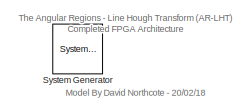
[diagram: root canvas - part 1/3, top left region]
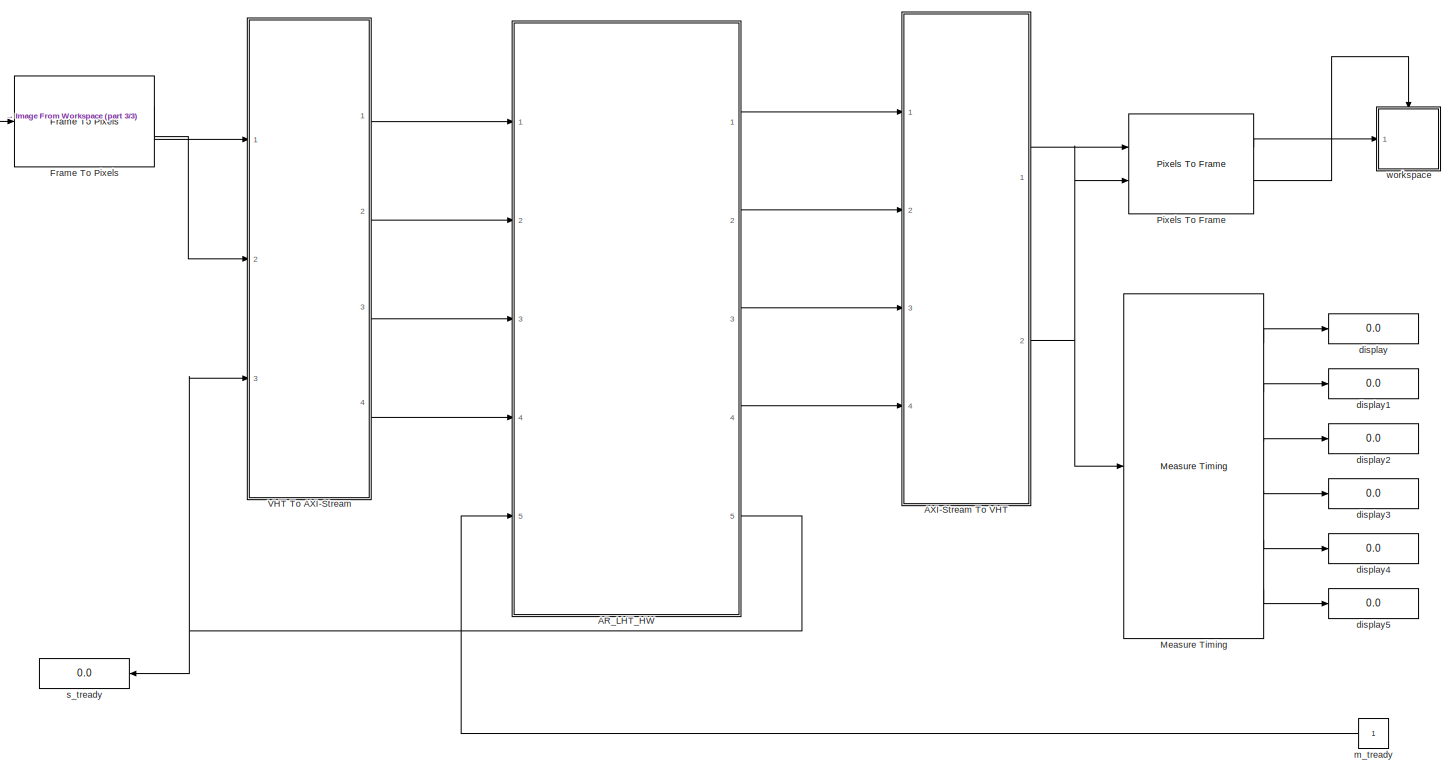
[diagram: root canvas - part 2/3, most of the canvas]
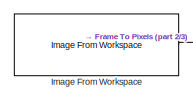
[diagram: root canvas - part 3/3, top left region]
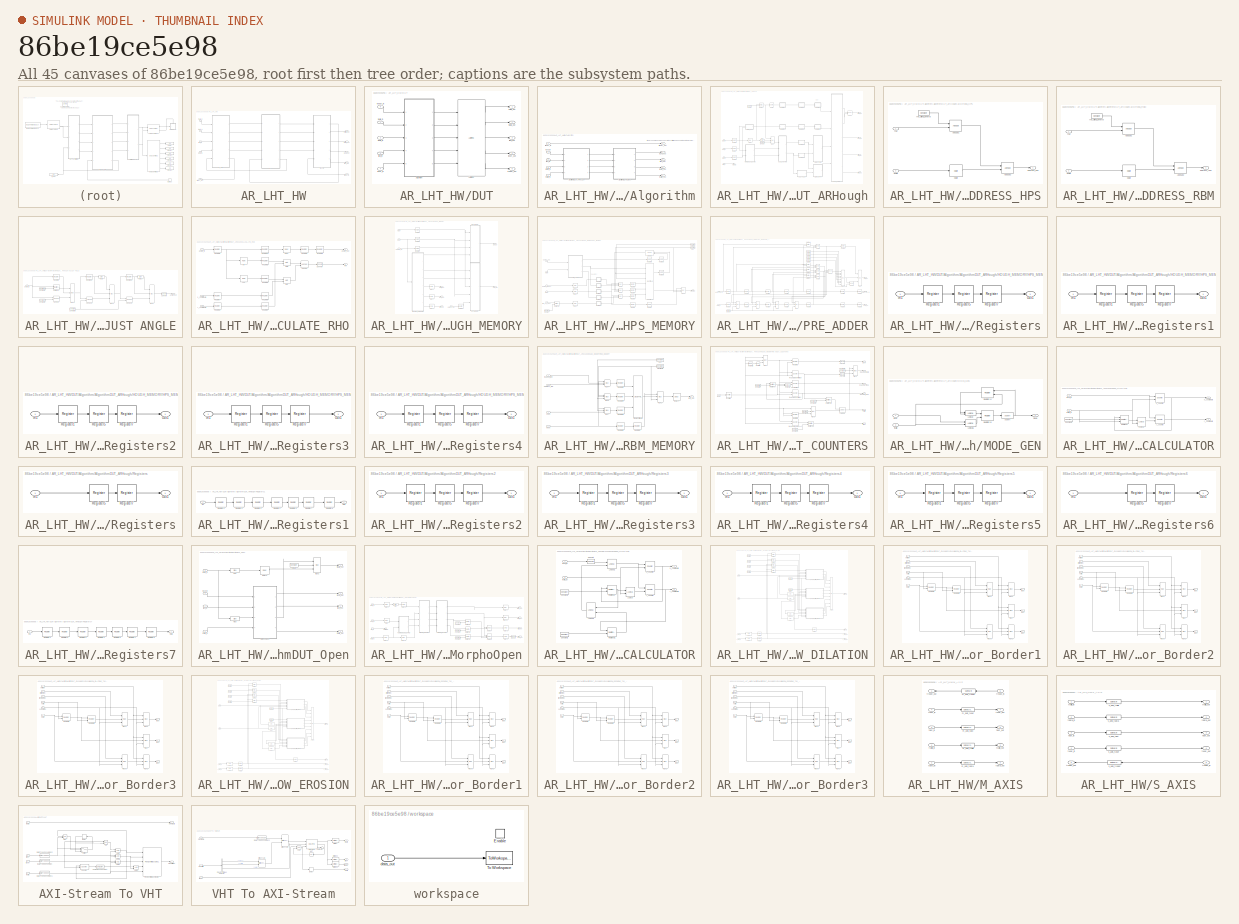
[diagram: thumbnail index - all 45 canvases of the model, root first then tree order]
MODEL slx_86be19ce5e98
KIND model
CONFIG AbsTol = auto
CONFIG EnableMultiTasking = on
CONFIG FixedStep = auto
CONFIG InitFcn = setup;\npre_processing;
CONFIG MaxStep = auto
CONFIG MinStep = auto
CONFIG PreLoadFcn = currentDir  = pwd;\nfilesepIdx   = strfind(currentDir, filesep);\nnewDir = currentDir(1:filesepIdx(end)-7);\n\naddpath([newDir, '\scripts']);
CONFIG RelTol = 1e-3
CONFIG SampleTimeConstraint = Unconstrained
CONFIG Solver = VariableStepAuto
CONFIG SolverName = VariableStepAuto
CONFIG StartTime = 0.0
CONFIG StopFcn = post_processing;\nimtool(O);
CONFIG StopTime = ts*2+2*maxRho*T*2
BLOCK [Reference]  System Generator  REF=xbsIndex_r4/ System Generator
  AttributesFormatString = System\nGenerator
  Ports = []
  SourceBlock = xbsIndex_r4/ System Generator
  SourceType = Xilinx System Generator Block
  Tag = genX
  UserDataPersistent = on
BLOCK [SubSystem] AR_LHT_HW
  Ports = [5, 5]
  RequestExecContextInheritance = off
BLOCK [SubSystem] AR_LHT_HW/DUT
  Ports = [5, 5]
  RequestExecContextInheritance = off
BLOCK [Reference] AR_LHT_HW/DUT/AXI FIFO  REF=xbsIndex_r4/AXI FIFO
  Ports = [5, 5]
  SourceBlock = xbsIndex_r4/AXI FIFO
  SourceType = Xilinx AXI FIFO Block Block
BLOCK [SubSystem] AR_LHT_HW/DUT/Algorithm
  Ports = [5, 5]
  RequestExecContextInheritance = off
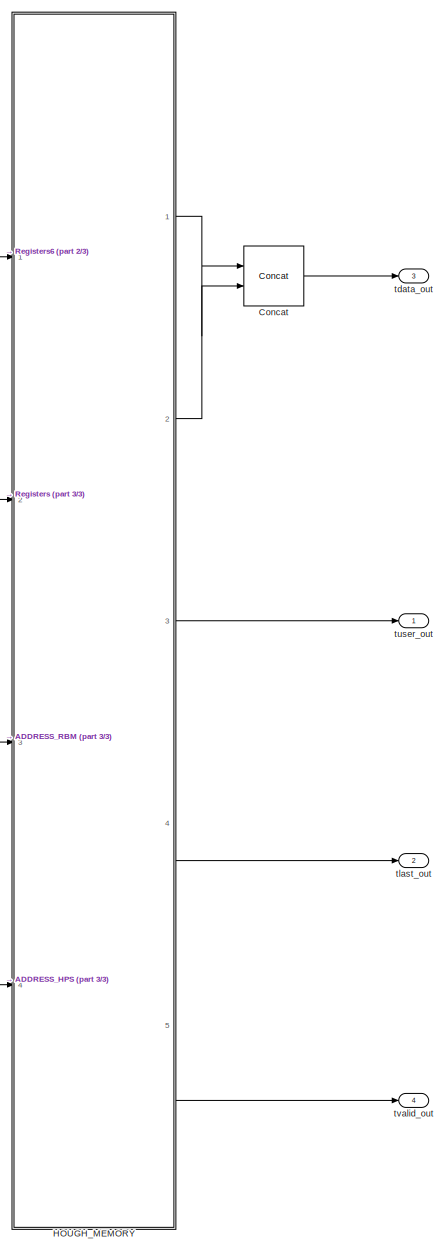
[diagram: AR_LHT_HW/DUT/Algorithm/AlgorithmDUT_ARHough - part 1/3, right side, full height]
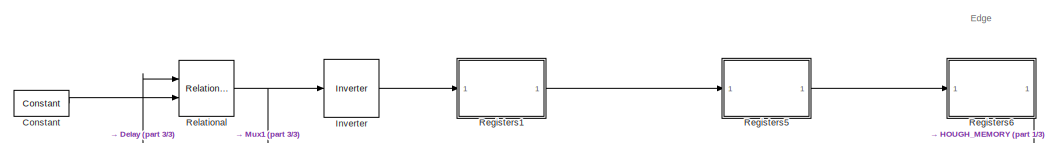
[diagram: AR_LHT_HW/DUT/Algorithm/AlgorithmDUT_ARHough - part 2/3, top center region]
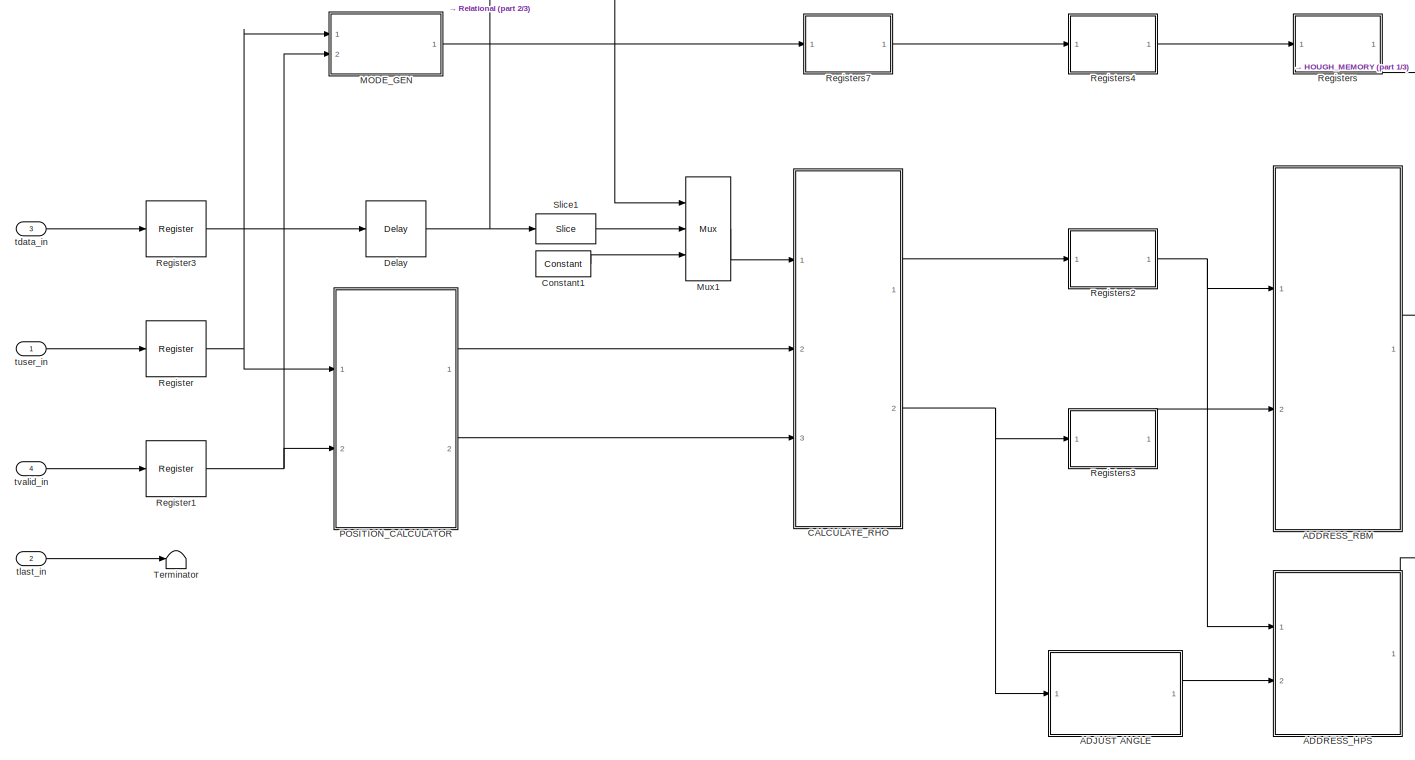
[diagram: AR_LHT_HW/DUT/Algorithm/AlgorithmDUT_ARHough - part 3/3, central region]
BLOCK [SubSystem] AR_LHT_HW/DUT/Algorithm/AlgorithmDUT_ARHough
  Ports = [4, 4]
  RequestExecContextInheritance = off
BLOCK [SubSystem] AR_LHT_HW/DUT/Algorithm/AlgorithmDUT_ARHough/ADDRESS_HPS
  Ports = [2, 1]
  RequestExecContextInheritance = off
BLOCK [Reference] AR_LHT_HW/DUT/Algorithm/AlgorithmDUT_ARHough/ADDRESS_HPS/AddSub1  REF=xbsIndex_r4/AddSub
  Ports = [2, 1]
  SourceBlock = xbsIndex_r4/AddSub
  SourceType = Xilinx Adder/Subtracter Block
BLOCK [Reference] AR_LHT_HW/DUT/Algorithm/AlgorithmDUT_ARHough/ADDRESS_HPS/AddSub2  REF=xbsIndex_r4/AddSub
  Ports = [2, 1]
  SourceBlock = xbsIndex_r4/AddSub
  SourceType = Xilinx Adder/Subtracter Block
BLOCK [Reference] AR_LHT_HW/DUT/Algorithm/AlgorithmDUT_ARHough/ADDRESS_HPS/CMult  REF=xbsIndex_r4/CMult
  Ports = [1, 1]
  SourceBlock = xbsIndex_r4/CMult
  SourceType = Xilinx Constant Multiplier Block
BLOCK [Outport] AR_LHT_HW/DUT/Algorithm/AlgorithmDUT_ARHough/ADDRESS_HPS/address_hps
  IconDisplay = Port number
BLOCK [Inport] AR_LHT_HW/DUT/Algorithm/AlgorithmDUT_ARHough/ADDRESS_HPS/angle
  IconDisplay = Port number
  Port = 2
BLOCK [Inport] AR_LHT_HW/DUT/Algorithm/AlgorithmDUT_ARHough/ADDRESS_HPS/rho
  IconDisplay = Port number
BLOCK [Reference] AR_LHT_HW/DUT/Algorithm/AlgorithmDUT_ARHough/ADDRESS_HPS/rho_offset_general  REF=xbsIndex_r4/Constant
  Ports = [0, 1]
  SourceBlock = xbsIndex_r4/Constant
  SourceType = Xilinx Constant Block Block
BLOCK [SubSystem] AR_LHT_HW/DUT/Algorithm/AlgorithmDUT_ARHough/ADDRESS_RBM
  Ports = [2, 1]
  RequestExecContextInheritance = off
BLOCK [Reference] AR_LHT_HW/DUT/Algorithm/AlgorithmDUT_ARHough/ADDRESS_RBM/AddSub1  REF=xbsIndex_r4/AddSub
  Ports = [2, 1]
  SourceBlock = xbsIndex_r4/AddSub
  SourceType = Xilinx Adder/Subtracter Block
BLOCK [Reference] AR_LHT_HW/DUT/Algorithm/AlgorithmDUT_ARHough/ADDRESS_RBM/AddSub2  REF=xbsIndex_r4/AddSub
  Ports = [2, 1]
  SourceBlock = xbsIndex_r4/AddSub
  SourceType = Xilinx Adder/Subtracter Block
BLOCK [Reference] AR_LHT_HW/DUT/Algorithm/AlgorithmDUT_ARHough/ADDRESS_RBM/CMult  REF=xbsIndex_r4/CMult
  Ports = [1, 1]
  SourceBlock = xbsIndex_r4/CMult
  SourceType = Xilinx Constant Multiplier Block
BLOCK [Outport] AR_LHT_HW/DUT/Algorithm/AlgorithmDUT_ARHough/ADDRESS_RBM/address_rbm
  IconDisplay = Port number
BLOCK [Inport] AR_LHT_HW/DUT/Algorithm/AlgorithmDUT_ARHough/ADDRESS_RBM/angle
  IconDisplay = Port number
  Port = 2
BLOCK [Inport] AR_LHT_HW/DUT/Algorithm/AlgorithmDUT_ARHough/ADDRESS_RBM/rho
  IconDisplay = Port number
BLOCK [Reference] AR_LHT_HW/DUT/Algorithm/AlgorithmDUT_ARHough/ADDRESS_RBM/rho_offset_general  REF=xbsIndex_r4/Constant
  Ports = [0, 1]
  SourceBlock = xbsIndex_r4/Constant
  SourceType = Xilinx Constant Block Block
BLOCK [SubSystem] AR_LHT_HW/DUT/Algorithm/AlgorithmDUT_ARHough/ADJUST ANGLE
  Ports = [1, 1]
  RequestExecContextInheritance = off
BLOCK [Reference] AR_LHT_HW/DUT/Algorithm/AlgorithmDUT_ARHough/ADJUST ANGLE/AddSub  REF=xbsIndex_r4/AddSub
  Ports = [2, 1]
  SourceBlock = xbsIndex_r4/AddSub
  SourceType = Xilinx Adder/Subtracter Block
BLOCK [Reference] AR_LHT_HW/DUT/Algorithm/AlgorithmDUT_ARHough/ADJUST ANGLE/AddSub1  REF=xbsIndex_r4/AddSub
  Ports = [2, 1]
  SourceBlock = xbsIndex_r4/AddSub
  SourceType = Xilinx Adder/Subtracter Block
BLOCK [Reference] AR_LHT_HW/DUT/Algorithm/AlgorithmDUT_ARHough/ADJUST ANGLE/AddSub2  REF=xbsIndex_r4/AddSub
  Ports = [2, 1]
  SourceBlock = xbsIndex_r4/AddSub
  SourceType = Xilinx Adder/Subtracter Block
BLOCK [Reference] AR_LHT_HW/DUT/Algorithm/AlgorithmDUT_ARHough/ADJUST ANGLE/Constant1  REF=xbsIndex_r4/Constant
  Ports = [0, 1]
  SourceBlock = xbsIndex_r4/Constant
  SourceType = Xilinx Constant Block Block
BLOCK [Reference] AR_LHT_HW/DUT/Algorithm/AlgorithmDUT_ARHough/ADJUST ANGLE/Constant2  REF=xbsIndex_r4/Constant
  Ports = [0, 1]
  SourceBlock = xbsIndex_r4/Constant
  SourceType = Xilinx Constant Block Block
BLOCK [Reference] AR_LHT_HW/DUT/Algorithm/AlgorithmDUT_ARHough/ADJUST ANGLE/Constant3  REF=xbsIndex_r4/Constant
  Ports = [0, 1]
  SourceBlock = xbsIndex_r4/Constant
  SourceType = Xilinx Constant Block Block
BLOCK [Reference] AR_LHT_HW/DUT/Algorithm/AlgorithmDUT_ARHough/ADJUST ANGLE/Convert  REF=xbsIndex_r4/Convert
  Ports = [1, 1]
  SourceBlock = xbsIndex_r4/Convert
  SourceType = Xilinx Type Converter Block
BLOCK [Reference] AR_LHT_HW/DUT/Algorithm/AlgorithmDUT_ARHough/ADJUST ANGLE/MSB  REF=xbsIndex_r4/Slice
  Ports = [1, 1]
  SourceBlock = xbsIndex_r4/Slice
  SourceType = Xilinx Bit Slice Extractor Block
BLOCK [Reference] AR_LHT_HW/DUT/Algorithm/AlgorithmDUT_ARHough/ADJUST ANGLE/MSB1  REF=xbsIndex_r4/Slice
  Ports = [1, 1]
  SourceBlock = xbsIndex_r4/Slice
  SourceType = Xilinx Bit Slice Extractor Block
BLOCK [Reference] AR_LHT_HW/DUT/Algorithm/AlgorithmDUT_ARHough/ADJUST ANGLE/Mux1  REF=xbsIndex_r4/Mux
  Ports = [3, 1]
  SourceBlock = xbsIndex_r4/Mux
  SourceType = Xilinx Bus Multiplexer Block
BLOCK [Reference] AR_LHT_HW/DUT/Algorithm/AlgorithmDUT_ARHough/ADJUST ANGLE/Mux2  REF=xbsIndex_r4/Mux
  Ports = [3, 1]
  SourceBlock = xbsIndex_r4/Mux
  SourceType = Xilinx Bus Multiplexer Block
BLOCK [Reference] AR_LHT_HW/DUT/Algorithm/AlgorithmDUT_ARHough/ADJUST ANGLE/Mux3  REF=xbsIndex_r4/Mux
  Ports = [3, 1]
  SourceBlock = xbsIndex_r4/Mux
  SourceType = Xilinx Bus Multiplexer Block
BLOCK [Reference] AR_LHT_HW/DUT/Algorithm/AlgorithmDUT_ARHough/ADJUST ANGLE/Register10  REF=xbsIndex_r4/Register
  Ports = [1, 1]
  SourceBlock = xbsIndex_r4/Register
  SourceType = Xilinx Register Block
BLOCK [Reference] AR_LHT_HW/DUT/Algorithm/AlgorithmDUT_ARHough/ADJUST ANGLE/Register11  REF=xbsIndex_r4/Register
  Ports = [1, 1]
  SourceBlock = xbsIndex_r4/Register
  SourceType = Xilinx Register Block
BLOCK [Reference] AR_LHT_HW/DUT/Algorithm/AlgorithmDUT_ARHough/ADJUST ANGLE/Register9  REF=xbsIndex_r4/Register
  Ports = [1, 1]
  SourceBlock = xbsIndex_r4/Register
  SourceType = Xilinx Register Block
BLOCK [Reference] AR_LHT_HW/DUT/Algorithm/AlgorithmDUT_ARHough/ADJUST ANGLE/Relational  REF=xbsIndex_r4/Relational
  Ports = [2, 1]
  SourceBlock = xbsIndex_r4/Relational
  SourceType = Xilinx Arithmetic Relational Operator Block
BLOCK [Inport] AR_LHT_HW/DUT/Algorithm/AlgorithmDUT_ARHough/ADJUST ANGLE/angle_in
  IconDisplay = Port number
BLOCK [Outport] AR_LHT_HW/DUT/Algorithm/AlgorithmDUT_ARHough/ADJUST ANGLE/angle_out
  IconDisplay = Port number
BLOCK [SubSystem] AR_LHT_HW/DUT/Algorithm/AlgorithmDUT_ARHough/CALCULATE_RHO
  Ports = [3, 2]
  RequestExecContextInheritance = off
BLOCK [Reference] AR_LHT_HW/DUT/Algorithm/AlgorithmDUT_ARHough/CALCULATE_RHO/AddSub  REF=xbsIndex_r4/AddSub
  Ports = [2, 1]
  SourceBlock = xbsIndex_r4/AddSub
  SourceType = Xilinx Adder/Subtracter Block
BLOCK [Reference] AR_LHT_HW/DUT/Algorithm/AlgorithmDUT_ARHough/CALCULATE_RHO/Convert  REF=xbsIndex_r4/Convert
  Ports = [1, 1]
  SourceBlock = xbsIndex_r4/Convert
  SourceType = Xilinx Type Converter Block
BLOCK [Reference] AR_LHT_HW/DUT/Algorithm/AlgorithmDUT_ARHough/CALCULATE_RHO/Delay  REF=xbsIndex_r4/Delay
  Ports = [1, 1]
  SourceBlock = xbsIndex_r4/Delay
  SourceType = Xilinx Delay Block
BLOCK [Reference] AR_LHT_HW/DUT/Algorithm/AlgorithmDUT_ARHough/CALCULATE_RHO/Mult  REF=xbsIndex_r4/Mult
  Ports = [2, 1]
  SourceBlock = xbsIndex_r4/Mult
  SourceType = Xilinx Multiplier Block
BLOCK [Reference] AR_LHT_HW/DUT/Algorithm/AlgorithmDUT_ARHough/CALCULATE_RHO/Mult1  REF=xbsIndex_r4/Mult
  Ports = [2, 1]
  SourceBlock = xbsIndex_r4/Mult
  SourceType = Xilinx Multiplier Block
BLOCK [Reference] AR_LHT_HW/DUT/Algorithm/AlgorithmDUT_ARHough/CALCULATE_RHO/Register  REF=xbsIndex_r4/Register
  Ports = [1, 1]
  SourceBlock = xbsIndex_r4/Register
  SourceType = Xilinx Register Block
BLOCK [Reference] AR_LHT_HW/DUT/Algorithm/AlgorithmDUT_ARHough/CALCULATE_RHO/Register1  REF=xbsIndex_r4/Register
  Ports = [1, 1]
  SourceBlock = xbsIndex_r4/Register
  SourceType = Xilinx Register Block
BLOCK [Reference] AR_LHT_HW/DUT/Algorithm/AlgorithmDUT_ARHough/CALCULATE_RHO/Register10  REF=xbsIndex_r4/Register
  Ports = [1, 1]
  SourceBlock = xbsIndex_r4/Register
  SourceType = Xilinx Register Block
BLOCK [Reference] AR_LHT_HW/DUT/Algorithm/AlgorithmDUT_ARHough/CALCULATE_RHO/Register2  REF=xbsIndex_r4/Register
  Ports = [1, 1]
  SourceBlock = xbsIndex_r4/Register
  SourceType = Xilinx Register Block
BLOCK [Reference] AR_LHT_HW/DUT/Algorithm/AlgorithmDUT_ARHough/CALCULATE_RHO/Register3  REF=xbsIndex_r4/Register
  Ports = [1, 1]
  SourceBlock = xbsIndex_r4/Register
  SourceType = Xilinx Register Block
BLOCK [Reference] AR_LHT_HW/DUT/Algorithm/AlgorithmDUT_ARHough/CALCULATE_RHO/Register4  REF=xbsIndex_r4/Register
  Ports = [1, 1]
  SourceBlock = xbsIndex_r4/Register
  SourceType = Xilinx Register Block
BLOCK [Reference] AR_LHT_HW/DUT/Algorithm/AlgorithmDUT_ARHough/CALCULATE_RHO/Register5  REF=xbsIndex_r4/Register
  Ports = [1, 1]
  SourceBlock = xbsIndex_r4/Register
  SourceType = Xilinx Register Block
BLOCK [Reference] AR_LHT_HW/DUT/Algorithm/AlgorithmDUT_ARHough/CALCULATE_RHO/Register6  REF=xbsIndex_r4/Register
  Ports = [1, 1]
  SourceBlock = xbsIndex_r4/Register
  SourceType = Xilinx Register Block
BLOCK [Reference] AR_LHT_HW/DUT/Algorithm/AlgorithmDUT_ARHough/CALCULATE_RHO/Register7  REF=xbsIndex_r4/Register
  Ports = [1, 1]
  SourceBlock = xbsIndex_r4/Register
  SourceType = Xilinx Register Block
BLOCK [Reference] AR_LHT_HW/DUT/Algorithm/AlgorithmDUT_ARHough/CALCULATE_RHO/Register9  REF=xbsIndex_r4/Register
  Ports = [1, 1]
  SourceBlock = xbsIndex_r4/Register
  SourceType = Xilinx Register Block
BLOCK [Inport] AR_LHT_HW/DUT/Algorithm/AlgorithmDUT_ARHough/CALCULATE_RHO/angle_in
  IconDisplay = Port number
BLOCK [Outport] AR_LHT_HW/DUT/Algorithm/AlgorithmDUT_ARHough/CALCULATE_RHO/angle_out
  IconDisplay = Port number
  Port = 2
BLOCK [Reference] AR_LHT_HW/DUT/Algorithm/AlgorithmDUT_ARHough/CALCULATE_RHO/cos  REF=xbsIndex_r4/ROM
  Ports = [1, 1]
  SourceBlock = xbsIndex_r4/ROM
  SourceType = Xilinx Single Port Read-Only Memory Block
BLOCK [Outport] AR_LHT_HW/DUT/Algorithm/AlgorithmDUT_ARHough/CALCULATE_RHO/rho
  IconDisplay = Port number
BLOCK [Reference] AR_LHT_HW/DUT/Algorithm/AlgorithmDUT_ARHough/CALCULATE_RHO/sin  REF=xbsIndex_r4/ROM
  Ports = [1, 1]
  SourceBlock = xbsIndex_r4/ROM
  SourceType = Xilinx Single Port Read-Only Memory Block
BLOCK [Inport] AR_LHT_HW/DUT/Algorithm/AlgorithmDUT_ARHough/CALCULATE_RHO/x_coordinate
  IconDisplay = Port number
  Port = 2
BLOCK [Inport] AR_LHT_HW/DUT/Algorithm/AlgorithmDUT_ARHough/CALCULATE_RHO/y_coordinate
  IconDisplay = Port number
  Port = 3
BLOCK [Reference] AR_LHT_HW/DUT/Algorithm/AlgorithmDUT_ARHough/Concat  REF=xbsIndex_r4/Concat
  Ports = [2, 1]
  SourceBlock = xbsIndex_r4/Concat
  SourceType = Xilinx Bus Concatenator Block
BLOCK [Reference] AR_LHT_HW/DUT/Algorithm/AlgorithmDUT_ARHough/Constant  REF=xbsIndex_r4/Constant
  Ports = [0, 1]
  SourceBlock = xbsIndex_r4/Constant
  SourceType = Xilinx Constant Block Block
BLOCK [Reference] AR_LHT_HW/DUT/Algorithm/AlgorithmDUT_ARHough/Constant1  REF=xbsIndex_r4/Constant
  Ports = [0, 1]
  SourceBlock = xbsIndex_r4/Constant
  SourceType = Xilinx Constant Block Block
BLOCK [Reference] AR_LHT_HW/DUT/Algorithm/AlgorithmDUT_ARHough/Delay  REF=xbsIndex_r4/Delay
  Ports = [1, 1]
  SourceBlock = xbsIndex_r4/Delay
  SourceType = Xilinx Delay Block
BLOCK [SubSystem] AR_LHT_HW/DUT/Algorithm/AlgorithmDUT_ARHough/HOUGH_MEMORY
  Ports = [4, 5]
  RequestExecContextInheritance = off
BLOCK [Reference] AR_LHT_HW/DUT/Algorithm/AlgorithmDUT_ARHough/HOUGH_MEMORY/Delay1  REF=xbsIndex_r4/Delay
  Ports = [1, 1]
  SourceBlock = xbsIndex_r4/Delay
  SourceType = Xilinx Delay Block
BLOCK [Reference] AR_LHT_HW/DUT/Algorithm/AlgorithmDUT_ARHough/HOUGH_MEMORY/Delay2  REF=xbsIndex_r4/Delay
  Ports = [1, 1]
  SourceBlock = xbsIndex_r4/Delay
  SourceType = Xilinx Delay Block
BLOCK [Reference] AR_LHT_HW/DUT/Algorithm/AlgorithmDUT_ARHough/HOUGH_MEMORY/Delay6  REF=xbsIndex_r4/Delay
  Ports = [1, 1]
  SourceBlock = xbsIndex_r4/Delay
  SourceType = Xilinx Delay Block
BLOCK [SubSystem] AR_LHT_HW/DUT/Algorithm/AlgorithmDUT_ARHough/HOUGH_MEMORY/HPS_MEMORY
  Ports = [5, 1]
  RequestExecContextInheritance = off
BLOCK [Reference] AR_LHT_HW/DUT/Algorithm/AlgorithmDUT_ARHough/HOUGH_MEMORY/HPS_MEMORY/AddSub  REF=xbsIndex_r4/AddSub
  Ports = [2, 1]
  SourceBlock = xbsIndex_r4/AddSub
  SourceType = Xilinx Adder/Subtracter Block
BLOCK [Reference] AR_LHT_HW/DUT/Algorithm/AlgorithmDUT_ARHough/HOUGH_MEMORY/HPS_MEMORY/Clear  REF=xbsIndex_r4/Constant
  Ports = [0, 1]
  SourceBlock = xbsIndex_r4/Constant
  SourceType = Xilinx Constant Block Block
BLOCK [Reference] AR_LHT_HW/DUT/Algorithm/AlgorithmDUT_ARHough/HOUGH_MEMORY/HPS_MEMORY/Constant  REF=xbsIndex_r4/Constant
  Ports = [0, 1]
  SourceBlock = xbsIndex_r4/Constant
  SourceType = Xilinx Constant Block Block
BLOCK [Reference] AR_LHT_HW/DUT/Algorithm/AlgorithmDUT_ARHough/HOUGH_MEMORY/HPS_MEMORY/Delay1  REF=xbsIndex_r4/Delay
  Ports = [1, 1]
  SourceBlock = xbsIndex_r4/Delay
  SourceType = Xilinx Delay Block
BLOCK [Reference] AR_LHT_HW/DUT/Algorithm/AlgorithmDUT_ARHough/HOUGH_MEMORY/HPS_MEMORY/Delay2  REF=xbsIndex_r4/Delay
  Ports = [1, 1]
  SourceBlock = xbsIndex_r4/Delay
  SourceType = Xilinx Delay Block
BLOCK [Reference] AR_LHT_HW/DUT/Algorithm/AlgorithmDUT_ARHough/HOUGH_MEMORY/HPS_MEMORY/Delay3  REF=xbsIndex_r4/Delay
  Ports = [1, 1]
  SourceBlock = xbsIndex_r4/Delay
  SourceType = Xilinx Delay Block
BLOCK [Reference] AR_LHT_HW/DUT/Algorithm/AlgorithmDUT_ARHough/HOUGH_MEMORY/HPS_MEMORY/Dual Port RAM  REF=xbsIndex_r4/Dual Port RAM
  Ports = [6, 2]
  SourceBlock = xbsIndex_r4/Dual Port RAM
  SourceType = Xilinx Dual Port Random Access Memory Block
BLOCK [Reference] AR_LHT_HW/DUT/Algorithm/AlgorithmDUT_ARHough/HOUGH_MEMORY/HPS_MEMORY/GND  REF=xbsIndex_r4/Constant
  Ports = [0, 1]
  SourceBlock = xbsIndex_r4/Constant
  SourceType = Xilinx Constant Block Block
BLOCK [Reference] AR_LHT_HW/DUT/Algorithm/AlgorithmDUT_ARHough/HOUGH_MEMORY/HPS_MEMORY/Mux1  REF=xbsIndex_r4/Mux
  Ports = [3, 1]
  SourceBlock = xbsIndex_r4/Mux
  SourceType = Xilinx Bus Multiplexer Block
BLOCK [Reference] AR_LHT_HW/DUT/Algorithm/AlgorithmDUT_ARHough/HOUGH_MEMORY/HPS_MEMORY/Mux2  REF=xbsIndex_r4/Mux
  Ports = [3, 1]
  SourceBlock = xbsIndex_r4/Mux
  SourceType = Xilinx Bus Multiplexer Block
BLOCK [Reference] AR_LHT_HW/DUT/Algorithm/AlgorithmDUT_ARHough/HOUGH_MEMORY/HPS_MEMORY/Mux4  REF=xbsIndex_r4/Mux
  Ports = [3, 1]
  SourceBlock = xbsIndex_r4/Mux
  SourceType = Xilinx Bus Multiplexer Block
BLOCK [Reference] AR_LHT_HW/DUT/Algorithm/AlgorithmDUT_ARHough/HOUGH_MEMORY/HPS_MEMORY/Mux5  REF=xbsIndex_r4/Mux
  Ports = [3, 1]
  SourceBlock = xbsIndex_r4/Mux
  SourceType = Xilinx Bus Multiplexer Block
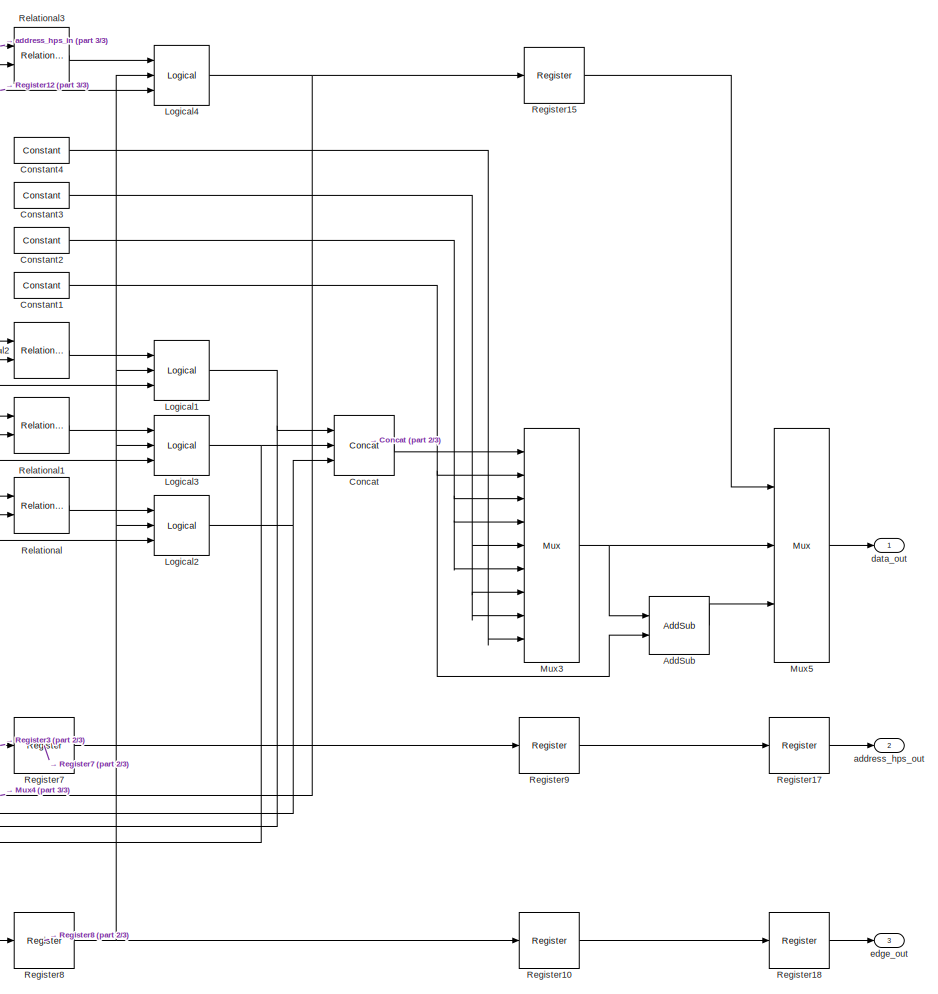
[diagram: AR_LHT_HW/DUT/Algorithm/AlgorithmDUT_ARHough/HOUGH_MEMORY/HPS_MEMORY/PRE_ADDER - part 1/3, right side, full height]
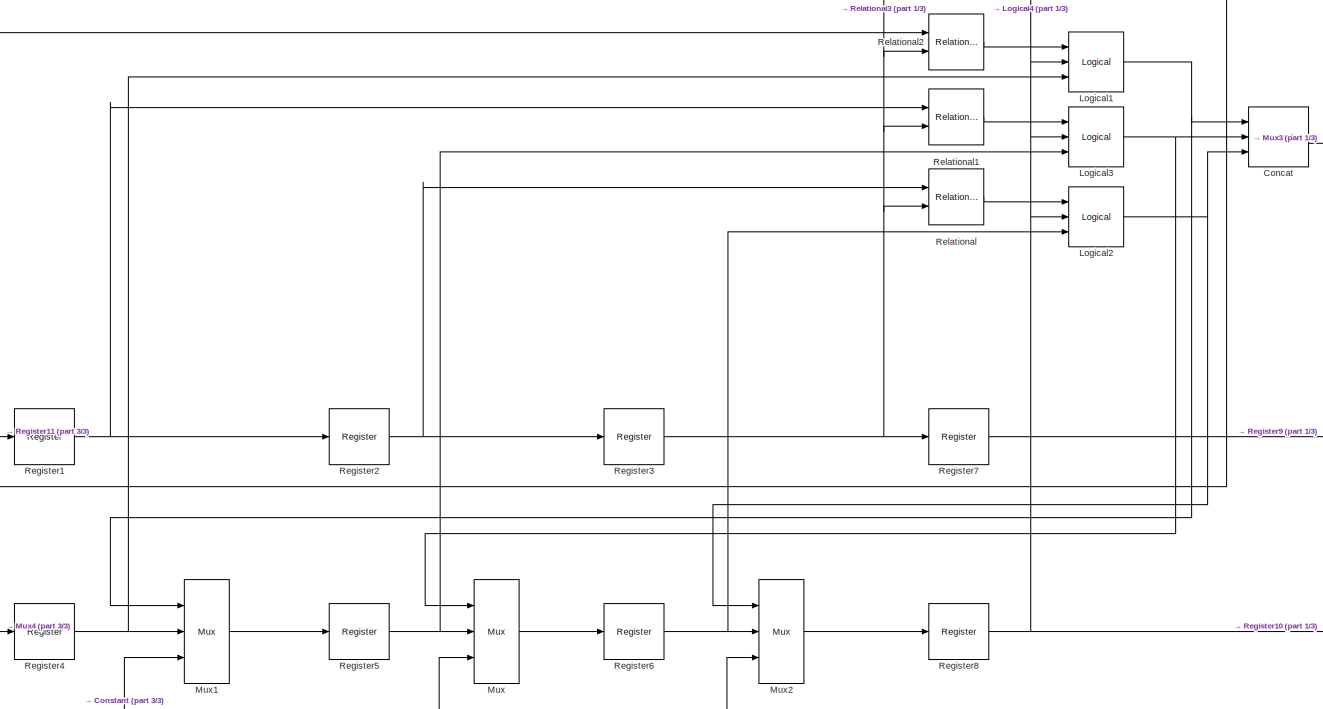
[diagram: AR_LHT_HW/DUT/Algorithm/AlgorithmDUT_ARHough/HOUGH_MEMORY/HPS_MEMORY/PRE_ADDER - part 2/3, central region]
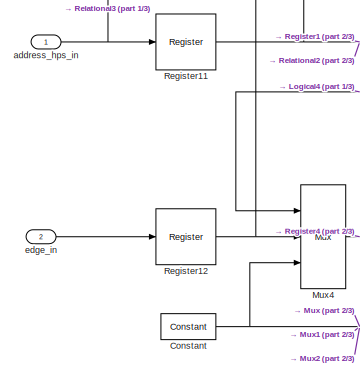
[diagram: AR_LHT_HW/DUT/Algorithm/AlgorithmDUT_ARHough/HOUGH_MEMORY/HPS_MEMORY/PRE_ADDER - part 3/3, bottom left region]
BLOCK [SubSystem] AR_LHT_HW/DUT/Algorithm/AlgorithmDUT_ARHough/HOUGH_MEMORY/HPS_MEMORY/PRE_ADDER
  Ports = [2, 3]
  RequestExecContextInheritance = off
BLOCK [Reference] AR_LHT_HW/DUT/Algorithm/AlgorithmDUT_ARHough/HOUGH_MEMORY/HPS_MEMORY/PRE_ADDER/AddSub  REF=xbsIndex_r4/AddSub
  Ports = [2, 1]
  SourceBlock = xbsIndex_r4/AddSub
  SourceType = Xilinx Adder/Subtracter Block
BLOCK [Reference] AR_LHT_HW/DUT/Algorithm/AlgorithmDUT_ARHough/HOUGH_MEMORY/HPS_MEMORY/PRE_ADDER/Concat  REF=xbsIndex_r4/Concat
  Ports = [3, 1]
  SourceBlock = xbsIndex_r4/Concat
  SourceType = Xilinx Bus Concatenator Block
BLOCK [Reference] AR_LHT_HW/DUT/Algorithm/AlgorithmDUT_ARHough/HOUGH_MEMORY/HPS_MEMORY/PRE_ADDER/Constant  REF=xbsIndex_r4/Constant
  Ports = [0, 1]
  SourceBlock = xbsIndex_r4/Constant
  SourceType = Xilinx Constant Block Block
BLOCK [Reference] AR_LHT_HW/DUT/Algorithm/AlgorithmDUT_ARHough/HOUGH_MEMORY/HPS_MEMORY/PRE_ADDER/Constant1  REF=xbsIndex_r4/Constant
  Ports = [0, 1]
  SourceBlock = xbsIndex_r4/Constant
  SourceType = Xilinx Constant Block Block
BLOCK [Reference] AR_LHT_HW/DUT/Algorithm/AlgorithmDUT_ARHough/HOUGH_MEMORY/HPS_MEMORY/PRE_ADDER/Constant2  REF=xbsIndex_r4/Constant
  Ports = [0, 1]
  SourceBlock = xbsIndex_r4/Constant
  SourceType = Xilinx Constant Block Block
BLOCK [Reference] AR_LHT_HW/DUT/Algorithm/AlgorithmDUT_ARHough/HOUGH_MEMORY/HPS_MEMORY/PRE_ADDER/Constant3  REF=xbsIndex_r4/Constant
  Ports = [0, 1]
  SourceBlock = xbsIndex_r4/Constant
  SourceType = Xilinx Constant Block Block
BLOCK [Reference] AR_LHT_HW/DUT/Algorithm/AlgorithmDUT_ARHough/HOUGH_MEMORY/HPS_MEMORY/PRE_ADDER/Constant4  REF=xbsIndex_r4/Constant
  Ports = [0, 1]
  SourceBlock = xbsIndex_r4/Constant
  SourceType = Xilinx Constant Block Block
BLOCK [Reference] AR_LHT_HW/DUT/Algorithm/AlgorithmDUT_ARHough/HOUGH_MEMORY/HPS_MEMORY/PRE_ADDER/Logical1  REF=xbsIndex_r4/Logical
  Ports = [3, 1]
  SourceBlock = xbsIndex_r4/Logical
  SourceType = Xilinx Logical Block Block
BLOCK [Reference] AR_LHT_HW/DUT/Algorithm/AlgorithmDUT_ARHough/HOUGH_MEMORY/HPS_MEMORY/PRE_ADDER/Logical2  REF=xbsIndex_r4/Logical
  Ports = [3, 1]
  SourceBlock = xbsIndex_r4/Logical
  SourceType = Xilinx Logical Block Block
BLOCK [Reference] AR_LHT_HW/DUT/Algorithm/AlgorithmDUT_ARHough/HOUGH_MEMORY/HPS_MEMORY/PRE_ADDER/Logical3  REF=xbsIndex_r4/Logical
  Ports = [3, 1]
  SourceBlock = xbsIndex_r4/Logical
  SourceType = Xilinx Logical Block Block
BLOCK [Reference] AR_LHT_HW/DUT/Algorithm/AlgorithmDUT_ARHough/HOUGH_MEMORY/HPS_MEMORY/PRE_ADDER/Logical4  REF=xbsIndex_r4/Logical
  Ports = [3, 1]
  SourceBlock = xbsIndex_r4/Logical
  SourceType = Xilinx Logical Block Block
BLOCK [Reference] AR_LHT_HW/DUT/Algorithm/AlgorithmDUT_ARHough/HOUGH_MEMORY/HPS_MEMORY/PRE_ADDER/Mux  REF=xbsIndex_r4/Mux
  Ports = [3, 1]
  SourceBlock = xbsIndex_r4/Mux
  SourceType = Xilinx Bus Multiplexer Block
BLOCK [Reference] AR_LHT_HW/DUT/Algorithm/AlgorithmDUT_ARHough/HOUGH_MEMORY/HPS_MEMORY/PRE_ADDER/Mux1  REF=xbsIndex_r4/Mux
  Ports = [3, 1]
  SourceBlock = xbsIndex_r4/Mux
  SourceType = Xilinx Bus Multiplexer Block
BLOCK [Reference] AR_LHT_HW/DUT/Algorithm/AlgorithmDUT_ARHough/HOUGH_MEMORY/HPS_MEMORY/PRE_ADDER/Mux2  REF=xbsIndex_r4/Mux
  Ports = [3, 1]
  SourceBlock = xbsIndex_r4/Mux
  SourceType = Xilinx Bus Multiplexer Block
BLOCK [Reference] AR_LHT_HW/DUT/Algorithm/AlgorithmDUT_ARHough/HOUGH_MEMORY/HPS_MEMORY/PRE_ADDER/Mux3  REF=xbsIndex_r4/Mux
  Ports = [9, 1]
  SourceBlock = xbsIndex_r4/Mux
  SourceType = Xilinx Bus Multiplexer Block
BLOCK [Reference] AR_LHT_HW/DUT/Algorithm/AlgorithmDUT_ARHough/HOUGH_MEMORY/HPS_MEMORY/PRE_ADDER/Mux4  REF=xbsIndex_r4/Mux
  Ports = [3, 1]
  SourceBlock = xbsIndex_r4/Mux
  SourceType = Xilinx Bus Multiplexer Block
BLOCK [Reference] AR_LHT_HW/DUT/Algorithm/AlgorithmDUT_ARHough/HOUGH_MEMORY/HPS_MEMORY/PRE_ADDER/Mux5  REF=xbsIndex_r4/Mux
  Ports = [3, 1]
  SourceBlock = xbsIndex_r4/Mux
  SourceType = Xilinx Bus Multiplexer Block
BLOCK [Reference] AR_LHT_HW/DUT/Algorithm/AlgorithmDUT_ARHough/HOUGH_MEMORY/HPS_MEMORY/PRE_ADDER/Register1  REF=xbsIndex_r4/Register
  Ports = [1, 1]
  SourceBlock = xbsIndex_r4/Register
  SourceType = Xilinx Register Block
BLOCK [Reference] AR_LHT_HW/DUT/Algorithm/AlgorithmDUT_ARHough/HOUGH_MEMORY/HPS_MEMORY/PRE_ADDER/Register10  REF=xbsIndex_r4/Register
  Ports = [1, 1]
  SourceBlock = xbsIndex_r4/Register
  SourceType = Xilinx Register Block
BLOCK [Reference] AR_LHT_HW/DUT/Algorithm/AlgorithmDUT_ARHough/HOUGH_MEMORY/HPS_MEMORY/PRE_ADDER/Register11  REF=xbsIndex_r4/Register
  Ports = [1, 1]
  SourceBlock = xbsIndex_r4/Register
  SourceType = Xilinx Register Block
BLOCK [Reference] AR_LHT_HW/DUT/Algorithm/AlgorithmDUT_ARHough/HOUGH_MEMORY/HPS_MEMORY/PRE_ADDER/Register12  REF=xbsIndex_r4/Register
  Ports = [1, 1]
  SourceBlock = xbsIndex_r4/Register
  SourceType = Xilinx Register Block
BLOCK [Reference] AR_LHT_HW/DUT/Algorithm/AlgorithmDUT_ARHough/HOUGH_MEMORY/HPS_MEMORY/PRE_ADDER/Register15  REF=xbsIndex_r4/Register
  Ports = [1, 1]
  SourceBlock = xbsIndex_r4/Register
  SourceType = Xilinx Register Block
BLOCK [Reference] AR_LHT_HW/DUT/Algorithm/AlgorithmDUT_ARHough/HOUGH_MEMORY/HPS_MEMORY/PRE_ADDER/Register17  REF=xbsIndex_r4/Register
  Ports = [1, 1]
  SourceBlock = xbsIndex_r4/Register
  SourceType = Xilinx Register Block
BLOCK [Reference] AR_LHT_HW/DUT/Algorithm/AlgorithmDUT_ARHough/HOUGH_MEMORY/HPS_MEMORY/PRE_ADDER/Register18  REF=xbsIndex_r4/Register
  Ports = [1, 1]
  SourceBlock = xbsIndex_r4/Register
  SourceType = Xilinx Register Block
BLOCK [Reference] AR_LHT_HW/DUT/Algorithm/AlgorithmDUT_ARHough/HOUGH_MEMORY/HPS_MEMORY/PRE_ADDER/Register2  REF=xbsIndex_r4/Register
  Ports = [1, 1]
  SourceBlock = xbsIndex_r4/Register
  SourceType = Xilinx Register Block
BLOCK [Reference] AR_LHT_HW/DUT/Algorithm/AlgorithmDUT_ARHough/HOUGH_MEMORY/HPS_MEMORY/PRE_ADDER/Register3  REF=xbsIndex_r4/Register
  Ports = [1, 1]
  SourceBlock = xbsIndex_r4/Register
  SourceType = Xilinx Register Block
BLOCK [Reference] AR_LHT_HW/DUT/Algorithm/AlgorithmDUT_ARHough/HOUGH_MEMORY/HPS_MEMORY/PRE_ADDER/Register4  REF=xbsIndex_r4/Register
  Ports = [1, 1]
  SourceBlock = xbsIndex_r4/Register
  SourceType = Xilinx Register Block
BLOCK [Reference] AR_LHT_HW/DUT/Algorithm/AlgorithmDUT_ARHough/HOUGH_MEMORY/HPS_MEMORY/PRE_ADDER/Register5  REF=xbsIndex_r4/Register
  Ports = [1, 1]
  SourceBlock = xbsIndex_r4/Register
  SourceType = Xilinx Register Block
BLOCK [Reference] AR_LHT_HW/DUT/Algorithm/AlgorithmDUT_ARHough/HOUGH_MEMORY/HPS_MEMORY/PRE_ADDER/Register6  REF=xbsIndex_r4/Register
  Ports = [1, 1]
  SourceBlock = xbsIndex_r4/Register
  SourceType = Xilinx Register Block
BLOCK [Reference] AR_LHT_HW/DUT/Algorithm/AlgorithmDUT_ARHough/HOUGH_MEMORY/HPS_MEMORY/PRE_ADDER/Register7  REF=xbsIndex_r4/Register
  Ports = [1, 1]
  SourceBlock = xbsIndex_r4/Register
  SourceType = Xilinx Register Block
BLOCK [Reference] AR_LHT_HW/DUT/Algorithm/AlgorithmDUT_ARHough/HOUGH_MEMORY/HPS_MEMORY/PRE_ADDER/Register8  REF=xbsIndex_r4/Register
  Ports = [1, 1]
  SourceBlock = xbsIndex_r4/Register
  SourceType = Xilinx Register Block
BLOCK [Reference] AR_LHT_HW/DUT/Algorithm/AlgorithmDUT_ARHough/HOUGH_MEMORY/HPS_MEMORY/PRE_ADDER/Register9  REF=xbsIndex_r4/Register
  Ports = [1, 1]
  SourceBlock = xbsIndex_r4/Register
  SourceType = Xilinx Register Block
BLOCK [Reference] AR_LHT_HW/DUT/Algorithm/AlgorithmDUT_ARHough/HOUGH_MEMORY/HPS_MEMORY/PRE_ADDER/Relational  REF=xbsIndex_r4/Relational
  Ports = [2, 1]
  SourceBlock = xbsIndex_r4/Relational
  SourceType = Xilinx Arithmetic Relational Operator Block
BLOCK [Reference] AR_LHT_HW/DUT/Algorithm/AlgorithmDUT_ARHough/HOUGH_MEMORY/HPS_MEMORY/PRE_ADDER/Relational1  REF=xbsIndex_r4/Relational
  Ports = [2, 1]
  SourceBlock = xbsIndex_r4/Relational
  SourceType = Xilinx Arithmetic Relational Operator Block
BLOCK [Reference] AR_LHT_HW/DUT/Algorithm/AlgorithmDUT_ARHough/HOUGH_MEMORY/HPS_MEMORY/PRE_ADDER/Relational2  REF=xbsIndex_r4/Relational
  Ports = [2, 1]
  SourceBlock = xbsIndex_r4/Relational
  SourceType = Xilinx Arithmetic Relational Operator Block
BLOCK [Reference] AR_LHT_HW/DUT/Algorithm/AlgorithmDUT_ARHough/HOUGH_MEMORY/HPS_MEMORY/PRE_ADDER/Relational3  REF=xbsIndex_r4/Relational
  Ports = [2, 1]
  SourceBlock = xbsIndex_r4/Relational
  SourceType = Xilinx Arithmetic Relational Operator Block
BLOCK [Inport] AR_LHT_HW/DUT/Algorithm/AlgorithmDUT_ARHough/HOUGH_MEMORY/HPS_MEMORY/PRE_ADDER/address_hps_in
  IconDisplay = Port number
BLOCK [Outport] AR_LHT_HW/DUT/Algorithm/AlgorithmDUT_ARHough/HOUGH_MEMORY/HPS_MEMORY/PRE_ADDER/address_hps_out
  IconDisplay = Port number
  Port = 2
BLOCK [Outport] AR_LHT_HW/DUT/Algorithm/AlgorithmDUT_ARHough/HOUGH_MEMORY/HPS_MEMORY/PRE_ADDER/data_out
  IconDisplay = Port number
BLOCK [Inport] AR_LHT_HW/DUT/Algorithm/AlgorithmDUT_ARHough/HOUGH_MEMORY/HPS_MEMORY/PRE_ADDER/edge_in
  IconDisplay = Port number
  Port = 2
BLOCK [Outport] AR_LHT_HW/DUT/Algorithm/AlgorithmDUT_ARHough/HOUGH_MEMORY/HPS_MEMORY/PRE_ADDER/edge_out
  IconDisplay = Port number
  Port = 3
BLOCK [Reference] AR_LHT_HW/DUT/Algorithm/AlgorithmDUT_ARHough/HOUGH_MEMORY/HPS_MEMORY/Register10  REF=xbsIndex_r4/Register
  Ports = [1, 1]
  SourceBlock = xbsIndex_r4/Register
  SourceType = Xilinx Register Block
BLOCK [Reference] AR_LHT_HW/DUT/Algorithm/AlgorithmDUT_ARHough/HOUGH_MEMORY/HPS_MEMORY/Register11  REF=xbsIndex_r4/Register
  Ports = [1, 1]
  SourceBlock = xbsIndex_r4/Register
  SourceType = Xilinx Register Block
BLOCK [Reference] AR_LHT_HW/DUT/Algorithm/AlgorithmDUT_ARHough/HOUGH_MEMORY/HPS_MEMORY/Register12  REF=xbsIndex_r4/Register
  Ports = [1, 1]
  SourceBlock = xbsIndex_r4/Register
  SourceType = Xilinx Register Block
BLOCK [Reference] AR_LHT_HW/DUT/Algorithm/AlgorithmDUT_ARHough/HOUGH_MEMORY/HPS_MEMORY/Register4  REF=xbsIndex_r4/Register
  Ports = [1, 1]
  SourceBlock = xbsIndex_r4/Register
  SourceType = Xilinx Register Block
BLOCK [Reference] AR_LHT_HW/DUT/Algorithm/AlgorithmDUT_ARHough/HOUGH_MEMORY/HPS_MEMORY/Register5  REF=xbsIndex_r4/Register
  Ports = [1, 1]
  SourceBlock = xbsIndex_r4/Register
  SourceType = Xilinx Register Block
BLOCK [Reference] AR_LHT_HW/DUT/Algorithm/AlgorithmDUT_ARHough/HOUGH_MEMORY/HPS_MEMORY/Register6  REF=xbsIndex_r4/Register
  Ports = [1, 1]
  SourceBlock = xbsIndex_r4/Register
  SourceType = Xilinx Register Block
BLOCK [Reference] AR_LHT_HW/DUT/Algorithm/AlgorithmDUT_ARHough/HOUGH_MEMORY/HPS_MEMORY/Register7  REF=xbsIndex_r4/Register
  Ports = [1, 1]
  SourceBlock = xbsIndex_r4/Register
  SourceType = Xilinx Register Block
BLOCK [Reference] AR_LHT_HW/DUT/Algorithm/AlgorithmDUT_ARHough/HOUGH_MEMORY/HPS_MEMORY/Register8  REF=xbsIndex_r4/Register
  Ports = [1, 1]
  SourceBlock = xbsIndex_r4/Register
  SourceType = Xilinx Register Block
BLOCK [SubSystem] AR_LHT_HW/DUT/Algorithm/AlgorithmDUT_ARHough/HOUGH_MEMORY/HPS_MEMORY/Registers
  Ports = [1, 1]
  RequestExecContextInheritance = off
BLOCK [Inport] AR_LHT_HW/DUT/Algorithm/AlgorithmDUT_ARHough/HOUGH_MEMORY/HPS_MEMORY/Registers/In1
  IconDisplay = Port number
BLOCK [Outport] AR_LHT_HW/DUT/Algorithm/AlgorithmDUT_ARHough/HOUGH_MEMORY/HPS_MEMORY/Registers/Out1
  IconDisplay = Port number
BLOCK [Reference] AR_LHT_HW/DUT/Algorithm/AlgorithmDUT_ARHough/HOUGH_MEMORY/HPS_MEMORY/Registers/Register1  REF=xbsIndex_r4/Register
  Ports = [1, 1]
  SourceBlock = xbsIndex_r4/Register
  SourceType = Xilinx Register Block
BLOCK [Reference] AR_LHT_HW/DUT/Algorithm/AlgorithmDUT_ARHough/HOUGH_MEMORY/HPS_MEMORY/Registers/Register5  REF=xbsIndex_r4/Register
  Ports = [1, 1]
  SourceBlock = xbsIndex_r4/Register
  SourceType = Xilinx Register Block
BLOCK [Reference] AR_LHT_HW/DUT/Algorithm/AlgorithmDUT_ARHough/HOUGH_MEMORY/HPS_MEMORY/Registers/Register7  REF=xbsIndex_r4/Register
  Ports = [1, 1]
  SourceBlock = xbsIndex_r4/Register
  SourceType = Xilinx Register Block
BLOCK [SubSystem] AR_LHT_HW/DUT/Algorithm/AlgorithmDUT_ARHough/HOUGH_MEMORY/HPS_MEMORY/Registers1
  Ports = [1, 1]
  RequestExecContextInheritance = off
BLOCK [Inport] AR_LHT_HW/DUT/Algorithm/AlgorithmDUT_ARHough/HOUGH_MEMORY/HPS_MEMORY/Registers1/In1
  IconDisplay = Port number
BLOCK [Outport] AR_LHT_HW/DUT/Algorithm/AlgorithmDUT_ARHough/HOUGH_MEMORY/HPS_MEMORY/Registers1/Out1
  IconDisplay = Port number
BLOCK [Reference] AR_LHT_HW/DUT/Algorithm/AlgorithmDUT_ARHough/HOUGH_MEMORY/HPS_MEMORY/Registers1/Register1  REF=xbsIndex_r4/Register
  Ports = [1, 1]
  SourceBlock = xbsIndex_r4/Register
  SourceType = Xilinx Register Block
BLOCK [Reference] AR_LHT_HW/DUT/Algorithm/AlgorithmDUT_ARHough/HOUGH_MEMORY/HPS_MEMORY/Registers1/Register5  REF=xbsIndex_r4/Register
  Ports = [1, 1]
  SourceBlock = xbsIndex_r4/Register
  SourceType = Xilinx Register Block
BLOCK [Reference] AR_LHT_HW/DUT/Algorithm/AlgorithmDUT_ARHough/HOUGH_MEMORY/HPS_MEMORY/Registers1/Register7  REF=xbsIndex_r4/Register
  Ports = [1, 1]
  SourceBlock = xbsIndex_r4/Register
  SourceType = Xilinx Register Block
BLOCK [SubSystem] AR_LHT_HW/DUT/Algorithm/AlgorithmDUT_ARHough/HOUGH_MEMORY/HPS_MEMORY/Registers2
  Ports = [1, 1]
  RequestExecContextInheritance = off
BLOCK [Inport] AR_LHT_HW/DUT/Algorithm/AlgorithmDUT_ARHough/HOUGH_MEMORY/HPS_MEMORY/Registers2/In1
  IconDisplay = Port number
BLOCK [Outport] AR_LHT_HW/DUT/Algorithm/AlgorithmDUT_ARHough/HOUGH_MEMORY/HPS_MEMORY/Registers2/Out1
  IconDisplay = Port number
BLOCK [Reference] AR_LHT_HW/DUT/Algorithm/AlgorithmDUT_ARHough/HOUGH_MEMORY/HPS_MEMORY/Registers2/Register1  REF=xbsIndex_r4/Register
  Ports = [1, 1]
  SourceBlock = xbsIndex_r4/Register
  SourceType = Xilinx Register Block
BLOCK [Reference] AR_LHT_HW/DUT/Algorithm/AlgorithmDUT_ARHough/HOUGH_MEMORY/HPS_MEMORY/Registers2/Register5  REF=xbsIndex_r4/Register
  Ports = [1, 1]
  SourceBlock = xbsIndex_r4/Register
  SourceType = Xilinx Register Block
BLOCK [Reference] AR_LHT_HW/DUT/Algorithm/AlgorithmDUT_ARHough/HOUGH_MEMORY/HPS_MEMORY/Registers2/Register7  REF=xbsIndex_r4/Register
  Ports = [1, 1]
  SourceBlock = xbsIndex_r4/Register
  SourceType = Xilinx Register Block
BLOCK [SubSystem] AR_LHT_HW/DUT/Algorithm/AlgorithmDUT_ARHough/HOUGH_MEMORY/HPS_MEMORY/Registers3
  Ports = [1, 1]
  RequestExecContextInheritance = off
BLOCK [Inport] AR_LHT_HW/DUT/Algorithm/AlgorithmDUT_ARHough/HOUGH_MEMORY/HPS_MEMORY/Registers3/In1
  IconDisplay = Port number
BLOCK [Outport] AR_LHT_HW/DUT/Algorithm/AlgorithmDUT_ARHough/HOUGH_MEMORY/HPS_MEMORY/Registers3/Out1
  IconDisplay = Port number
BLOCK [Reference] AR_LHT_HW/DUT/Algorithm/AlgorithmDUT_ARHough/HOUGH_MEMORY/HPS_MEMORY/Registers3/Register1  REF=xbsIndex_r4/Register
  Ports = [1, 1]
  SourceBlock = xbsIndex_r4/Register
  SourceType = Xilinx Register Block
BLOCK [Reference] AR_LHT_HW/DUT/Algorithm/AlgorithmDUT_ARHough/HOUGH_MEMORY/HPS_MEMORY/Registers3/Register5  REF=xbsIndex_r4/Register
  Ports = [1, 1]
  SourceBlock = xbsIndex_r4/Register
  SourceType = Xilinx Register Block
BLOCK [Reference] AR_LHT_HW/DUT/Algorithm/AlgorithmDUT_ARHough/HOUGH_MEMORY/HPS_MEMORY/Registers3/Register7  REF=xbsIndex_r4/Register
  Ports = [1, 1]
  SourceBlock = xbsIndex_r4/Register
  SourceType = Xilinx Register Block
BLOCK [SubSystem] AR_LHT_HW/DUT/Algorithm/AlgorithmDUT_ARHough/HOUGH_MEMORY/HPS_MEMORY/Registers4
  Ports = [1, 1]
  RequestExecContextInheritance = off
BLOCK [Inport] AR_LHT_HW/DUT/Algorithm/AlgorithmDUT_ARHough/HOUGH_MEMORY/HPS_MEMORY/Registers4/In1
  IconDisplay = Port number
BLOCK [Outport] AR_LHT_HW/DUT/Algorithm/AlgorithmDUT_ARHough/HOUGH_MEMORY/HPS_MEMORY/Registers4/Out1
  IconDisplay = Port number
BLOCK [Reference] AR_LHT_HW/DUT/Algorithm/AlgorithmDUT_ARHough/HOUGH_MEMORY/HPS_MEMORY/Registers4/Register1  REF=xbsIndex_r4/Register
  Ports = [1, 1]
  SourceBlock = xbsIndex_r4/Register
  SourceType = Xilinx Register Block
BLOCK [Reference] AR_LHT_HW/DUT/Algorithm/AlgorithmDUT_ARHough/HOUGH_MEMORY/HPS_MEMORY/Registers4/Register5  REF=xbsIndex_r4/Register
  Ports = [1, 1]
  SourceBlock = xbsIndex_r4/Register
  SourceType = Xilinx Register Block
BLOCK [Reference] AR_LHT_HW/DUT/Algorithm/AlgorithmDUT_ARHough/HOUGH_MEMORY/HPS_MEMORY/Registers4/Register7  REF=xbsIndex_r4/Register
  Ports = [1, 1]
  SourceBlock = xbsIndex_r4/Register
  SourceType = Xilinx Register Block
BLOCK [Reference] AR_LHT_HW/DUT/Algorithm/AlgorithmDUT_ARHough/HOUGH_MEMORY/HPS_MEMORY/Relational1  REF=xbsIndex_r4/Relational
  Ports = [2, 1]
  SourceBlock = xbsIndex_r4/Relational
  SourceType = Xilinx Arithmetic Relational Operator Block
BLOCK [Inport] AR_LHT_HW/DUT/Algorithm/AlgorithmDUT_ARHough/HOUGH_MEMORY/HPS_MEMORY/address_hps
  IconDisplay = Port number
  Port = 5
BLOCK [Inport] AR_LHT_HW/DUT/Algorithm/AlgorithmDUT_ARHough/HOUGH_MEMORY/HPS_MEMORY/address_readout
  IconDisplay = Port number
  Port = 2
BLOCK [Inport] AR_LHT_HW/DUT/Algorithm/AlgorithmDUT_ARHough/HOUGH_MEMORY/HPS_MEMORY/edge
  IconDisplay = Port number
  Port = 3
BLOCK [Outport] AR_LHT_HW/DUT/Algorithm/AlgorithmDUT_ARHough/HOUGH_MEMORY/HPS_MEMORY/hps_out
  IconDisplay = Port number
BLOCK [Inport] AR_LHT_HW/DUT/Algorithm/AlgorithmDUT_ARHough/HOUGH_MEMORY/HPS_MEMORY/mode
  IconDisplay = Port number
  Port = 4
BLOCK [Inport] AR_LHT_HW/DUT/Algorithm/AlgorithmDUT_ARHough/HOUGH_MEMORY/HPS_MEMORY/read_out_count
  IconDisplay = Port number
BLOCK [SubSystem] AR_LHT_HW/DUT/Algorithm/AlgorithmDUT_ARHough/HOUGH_MEMORY/RBM_MEMORY
  Ports = [4, 1]
  RequestExecContextInheritance = off
BLOCK [Reference] AR_LHT_HW/DUT/Algorithm/AlgorithmDUT_ARHough/HOUGH_MEMORY/RBM_MEMORY/ClearData  REF=xbsIndex_r4/Constant
  Ports = [0, 1]
  SourceBlock = xbsIndex_r4/Constant
  SourceType = Xilinx Constant Block Block
BLOCK [Reference] AR_LHT_HW/DUT/Algorithm/AlgorithmDUT_ARHough/HOUGH_MEMORY/RBM_MEMORY/Delay4  REF=xbsIndex_r4/Delay
  Ports = [1, 1]
  SourceBlock = xbsIndex_r4/Delay
  SourceType = Xilinx Delay Block
BLOCK [Reference] AR_LHT_HW/DUT/Algorithm/AlgorithmDUT_ARHough/HOUGH_MEMORY/RBM_MEMORY/Mux1  REF=xbsIndex_r4/Mux
  Ports = [3, 1]
  SourceBlock = xbsIndex_r4/Mux
  SourceType = Xilinx Bus Multiplexer Block
BLOCK [Reference] AR_LHT_HW/DUT/Algorithm/AlgorithmDUT_ARHough/HOUGH_MEMORY/RBM_MEMORY/Mux4  REF=xbsIndex_r4/Mux
  Ports = [3, 1]
  SourceBlock = xbsIndex_r4/Mux
  SourceType = Xilinx Bus Multiplexer Block
BLOCK [Reference] AR_LHT_HW/DUT/Algorithm/AlgorithmDUT_ARHough/HOUGH_MEMORY/RBM_MEMORY/Mux6  REF=xbsIndex_r4/Mux
  Ports = [3, 1]
  SourceBlock = xbsIndex_r4/Mux
  SourceType = Xilinx Bus Multiplexer Block
BLOCK [Reference] AR_LHT_HW/DUT/Algorithm/AlgorithmDUT_ARHough/HOUGH_MEMORY/RBM_MEMORY/Mux7  REF=xbsIndex_r4/Mux
  Ports = [3, 1]
  SourceBlock = xbsIndex_r4/Mux
  SourceType = Xilinx Bus Multiplexer Block
BLOCK [Reference] AR_LHT_HW/DUT/Algorithm/AlgorithmDUT_ARHough/HOUGH_MEMORY/RBM_MEMORY/Register1  REF=xbsIndex_r4/Register
  Ports = [1, 1]
  SourceBlock = xbsIndex_r4/Register
  SourceType = Xilinx Register Block
BLOCK [Reference] AR_LHT_HW/DUT/Algorithm/AlgorithmDUT_ARHough/HOUGH_MEMORY/RBM_MEMORY/Register2  REF=xbsIndex_r4/Register
  Ports = [1, 1]
  SourceBlock = xbsIndex_r4/Register
  SourceType = Xilinx Register Block
BLOCK [Reference] AR_LHT_HW/DUT/Algorithm/AlgorithmDUT_ARHough/HOUGH_MEMORY/RBM_MEMORY/Register3  REF=xbsIndex_r4/Register
  Ports = [1, 1]
  SourceBlock = xbsIndex_r4/Register
  SourceType = Xilinx Register Block
BLOCK [Reference] AR_LHT_HW/DUT/Algorithm/AlgorithmDUT_ARHough/HOUGH_MEMORY/RBM_MEMORY/Register4  REF=xbsIndex_r4/Register
  Ports = [1, 1]
  SourceBlock = xbsIndex_r4/Register
  SourceType = Xilinx Register Block
BLOCK [Reference] AR_LHT_HW/DUT/Algorithm/AlgorithmDUT_ARHough/HOUGH_MEMORY/RBM_MEMORY/Register5  REF=xbsIndex_r4/Register
  Ports = [1, 1]
  SourceBlock = xbsIndex_r4/Register
  SourceType = Xilinx Register Block
BLOCK [Reference] AR_LHT_HW/DUT/Algorithm/AlgorithmDUT_ARHough/HOUGH_MEMORY/RBM_MEMORY/Single Port RAM  REF=xbsIndex_r4/Single Port RAM
  Ports = [3, 1]
  SourceBlock = xbsIndex_r4/Single Port RAM
  SourceType = Xilinx Single Port Random Access Memory Block
BLOCK [Inport] AR_LHT_HW/DUT/Algorithm/AlgorithmDUT_ARHough/HOUGH_MEMORY/RBM_MEMORY/address_rbm
  IconDisplay = Port number
  Port = 3
BLOCK [Inport] AR_LHT_HW/DUT/Algorithm/AlgorithmDUT_ARHough/HOUGH_MEMORY/RBM_MEMORY/edge
  IconDisplay = Port number
BLOCK [Inport] AR_LHT_HW/DUT/Algorithm/AlgorithmDUT_ARHough/HOUGH_MEMORY/RBM_MEMORY/mode
  IconDisplay = Port number
  Port = 2
BLOCK [Outport] AR_LHT_HW/DUT/Algorithm/AlgorithmDUT_ARHough/HOUGH_MEMORY/RBM_MEMORY/rbm_out
  IconDisplay = Port number
BLOCK [Inport] AR_LHT_HW/DUT/Algorithm/AlgorithmDUT_ARHough/HOUGH_MEMORY/RBM_MEMORY/readout_rbm
  IconDisplay = Port number
  Port = 4
BLOCK [Reference] AR_LHT_HW/DUT/Algorithm/AlgorithmDUT_ARHough/HOUGH_MEMORY/RBM_MEMORY/vcc  REF=xbsIndex_r4/Constant
  Ports = [0, 1]
  SourceBlock = xbsIndex_r4/Constant
  SourceType = Xilinx Constant Block Block
BLOCK [SubSystem] AR_LHT_HW/DUT/Algorithm/AlgorithmDUT_ARHough/HOUGH_MEMORY/READOUT_COUNTERS
  Ports = [1, 6]
  RequestExecContextInheritance = off
BLOCK [Reference] AR_LHT_HW/DUT/Algorithm/AlgorithmDUT_ARHough/HOUGH_MEMORY/READOUT_COUNTERS/Constant  REF=xbsIndex_r4/Constant
  Ports = [0, 1]
  SourceBlock = xbsIndex_r4/Constant
  SourceType = Xilinx Constant Block Block
BLOCK [Reference] AR_LHT_HW/DUT/Algorithm/AlgorithmDUT_ARHough/HOUGH_MEMORY/READOUT_COUNTERS/Constant1  REF=xbsIndex_r4/Constant
  Ports = [0, 1]
  SourceBlock = xbsIndex_r4/Constant
  SourceType = Xilinx Constant Block Block
BLOCK [Reference] AR_LHT_HW/DUT/Algorithm/AlgorithmDUT_ARHough/HOUGH_MEMORY/READOUT_COUNTERS/Constant2  REF=xbsIndex_r4/Constant
  Ports = [0, 1]
  SourceBlock = xbsIndex_r4/Constant
  SourceType = Xilinx Constant Block Block
BLOCK [Reference] AR_LHT_HW/DUT/Algorithm/AlgorithmDUT_ARHough/HOUGH_MEMORY/READOUT_COUNTERS/Constant3  REF=xbsIndex_r4/Constant
  Ports = [0, 1]
  SourceBlock = xbsIndex_r4/Constant
  SourceType = Xilinx Constant Block Block
BLOCK [Reference] AR_LHT_HW/DUT/Algorithm/AlgorithmDUT_ARHough/HOUGH_MEMORY/READOUT_COUNTERS/Constant4  REF=xbsIndex_r4/Constant
  Ports = [0, 1]
  SourceBlock = xbsIndex_r4/Constant
  SourceType = Xilinx Constant Block Block
BLOCK [Reference] AR_LHT_HW/DUT/Algorithm/AlgorithmDUT_ARHough/HOUGH_MEMORY/READOUT_COUNTERS/Convert  REF=xbsIndex_r4/Convert
  Ports = [1, 1]
  SourceBlock = xbsIndex_r4/Convert
  SourceType = Xilinx Type Converter Block
BLOCK [Reference] AR_LHT_HW/DUT/Algorithm/AlgorithmDUT_ARHough/HOUGH_MEMORY/READOUT_COUNTERS/Convert1  REF=xbsIndex_r4/Convert
  Ports = [1, 1]
  SourceBlock = xbsIndex_r4/Convert
  SourceType = Xilinx Type Converter Block
BLOCK [Reference] AR_LHT_HW/DUT/Algorithm/AlgorithmDUT_ARHough/HOUGH_MEMORY/READOUT_COUNTERS/CounterTimes  REF=xbsIndex_r4/Counter
  Ports = [2, 1]
  SourceBlock = xbsIndex_r4/Counter
  SourceType = Xilinx Counter Block
BLOCK [Reference] AR_LHT_HW/DUT/Algorithm/AlgorithmDUT_ARHough/HOUGH_MEMORY/READOUT_COUNTERS/Inverter1  REF=xbsIndex_r4/Inverter
  Ports = [1, 1]
  SourceBlock = xbsIndex_r4/Inverter
  SourceType = Xilinx Inverter Block
BLOCK [Reference] AR_LHT_HW/DUT/Algorithm/AlgorithmDUT_ARHough/HOUGH_MEMORY/READOUT_COUNTERS/Inverter2  REF=xbsIndex_r4/Inverter
  Ports = [1, 1]
  SourceBlock = xbsIndex_r4/Inverter
  SourceType = Xilinx Inverter Block
BLOCK [Reference] AR_LHT_HW/DUT/Algorithm/AlgorithmDUT_ARHough/HOUGH_MEMORY/READOUT_COUNTERS/Logical1  REF=xbsIndex_r4/Logical
  Ports = [2, 1]
  SourceBlock = xbsIndex_r4/Logical
  SourceType = Xilinx Logical Block Block
BLOCK [Reference] AR_LHT_HW/DUT/Algorithm/AlgorithmDUT_ARHough/HOUGH_MEMORY/READOUT_COUNTERS/Logical2  REF=xbsIndex_r4/Logical
  Ports = [2, 1]
  SourceBlock = xbsIndex_r4/Logical
  SourceType = Xilinx Logical Block Block
BLOCK [Reference] AR_LHT_HW/DUT/Algorithm/AlgorithmDUT_ARHough/HOUGH_MEMORY/READOUT_COUNTERS/Mux  REF=xbsIndex_r4/Mux
  Ports = [3, 1]
  SourceBlock = xbsIndex_r4/Mux
  SourceType = Xilinx Bus Multiplexer Block
BLOCK [Reference] AR_LHT_HW/DUT/Algorithm/AlgorithmDUT_ARHough/HOUGH_MEMORY/READOUT_COUNTERS/Mux1  REF=xbsIndex_r4/Mux
  Ports = [3, 1]
  SourceBlock = xbsIndex_r4/Mux
  SourceType = Xilinx Bus Multiplexer Block
BLOCK [Reference] AR_LHT_HW/DUT/Algorithm/AlgorithmDUT_ARHough/HOUGH_MEMORY/READOUT_COUNTERS/Mux2  REF=xbsIndex_r4/Mux
  Ports = [3, 1]
  SourceBlock = xbsIndex_r4/Mux
  SourceType = Xilinx Bus Multiplexer Block
BLOCK [Reference] AR_LHT_HW/DUT/Algorithm/AlgorithmDUT_ARHough/HOUGH_MEMORY/READOUT_COUNTERS/ReadOutCounterHPS  REF=xbsIndex_r4/Counter
  Ports = [2, 1]
  SourceBlock = xbsIndex_r4/Counter
  SourceType = Xilinx Counter Block
BLOCK [Reference] AR_LHT_HW/DUT/Algorithm/AlgorithmDUT_ARHough/HOUGH_MEMORY/READOUT_COUNTERS/ReadOutCounterRBM  REF=xbsIndex_r4/Counter
  Ports = [2, 1]
  SourceBlock = xbsIndex_r4/Counter
  SourceType = Xilinx Counter Block
BLOCK [Reference] AR_LHT_HW/DUT/Algorithm/AlgorithmDUT_ARHough/HOUGH_MEMORY/READOUT_COUNTERS/ReadOutCounterTLAST  REF=xbsIndex_r4/Counter
  Ports = [2, 1]
  SourceBlock = xbsIndex_r4/Counter
  SourceType = Xilinx Counter Block
BLOCK [Outport] AR_LHT_HW/DUT/Algorithm/AlgorithmDUT_ARHough/HOUGH_MEMORY/READOUT_COUNTERS/ReadOut_HPS
  IconDisplay = Port number
  Port = 3
BLOCK [Outport] AR_LHT_HW/DUT/Algorithm/AlgorithmDUT_ARHough/HOUGH_MEMORY/READOUT_COUNTERS/ReadOut_RBM
  IconDisplay = Port number
BLOCK [Outport] AR_LHT_HW/DUT/Algorithm/AlgorithmDUT_ARHough/HOUGH_MEMORY/READOUT_COUNTERS/ReadOut_Times
  IconDisplay = Port number
  Port = 2
BLOCK [Reference] AR_LHT_HW/DUT/Algorithm/AlgorithmDUT_ARHough/HOUGH_MEMORY/READOUT_COUNTERS/Register1  REF=xbsIndex_r4/Register
  Ports = [2, 1]
  SourceBlock = xbsIndex_r4/Register
  SourceType = Xilinx Register Block
BLOCK [Reference] AR_LHT_HW/DUT/Algorithm/AlgorithmDUT_ARHough/HOUGH_MEMORY/READOUT_COUNTERS/Register2  REF=xbsIndex_r4/Register
  Ports = [1, 1]
  SourceBlock = xbsIndex_r4/Register
  SourceType = Xilinx Register Block
BLOCK [Reference] AR_LHT_HW/DUT/Algorithm/AlgorithmDUT_ARHough/HOUGH_MEMORY/READOUT_COUNTERS/Register3  REF=xbsIndex_r4/Register
  Ports = [2, 1]
  SourceBlock = xbsIndex_r4/Register
  SourceType = Xilinx Register Block
BLOCK [Reference] AR_LHT_HW/DUT/Algorithm/AlgorithmDUT_ARHough/HOUGH_MEMORY/READOUT_COUNTERS/Relational  REF=xbsIndex_r4/Relational
  Ports = [2, 1]
  SourceBlock = xbsIndex_r4/Relational
  SourceType = Xilinx Arithmetic Relational Operator Block
BLOCK [Reference] AR_LHT_HW/DUT/Algorithm/AlgorithmDUT_ARHough/HOUGH_MEMORY/READOUT_COUNTERS/Relational1  REF=xbsIndex_r4/Relational
  Ports = [2, 1]
  SourceBlock = xbsIndex_r4/Relational
  SourceType = Xilinx Arithmetic Relational Operator Block
BLOCK [Reference] AR_LHT_HW/DUT/Algorithm/AlgorithmDUT_ARHough/HOUGH_MEMORY/READOUT_COUNTERS/Relational2  REF=xbsIndex_r4/Relational
  Ports = [2, 1]
  SourceBlock = xbsIndex_r4/Relational
  SourceType = Xilinx Arithmetic Relational Operator Block
BLOCK [Inport] AR_LHT_HW/DUT/Algorithm/AlgorithmDUT_ARHough/HOUGH_MEMORY/READOUT_COUNTERS/mode
  IconDisplay = Port number
BLOCK [Outport] AR_LHT_HW/DUT/Algorithm/AlgorithmDUT_ARHough/HOUGH_MEMORY/READOUT_COUNTERS/tlast
  IconDisplay = Port number
  Port = 6
BLOCK [Outport] AR_LHT_HW/DUT/Algorithm/AlgorithmDUT_ARHough/HOUGH_MEMORY/READOUT_COUNTERS/tuser
  IconDisplay = Port number
  Port = 5
BLOCK [Outport] AR_LHT_HW/DUT/Algorithm/AlgorithmDUT_ARHough/HOUGH_MEMORY/READOUT_COUNTERS/tvalid
  IconDisplay = Port number
  Port = 4
BLOCK [Reference] AR_LHT_HW/DUT/Algorithm/AlgorithmDUT_ARHough/HOUGH_MEMORY/Register1  REF=xbsIndex_r4/Register
  Ports = [1, 1]
  SourceBlock = xbsIndex_r4/Register
  SourceType = Xilinx Register Block
BLOCK [Reference] AR_LHT_HW/DUT/Algorithm/AlgorithmDUT_ARHough/HOUGH_MEMORY/Register2  REF=xbsIndex_r4/Register
  Ports = [1, 1]
  SourceBlock = xbsIndex_r4/Register
  SourceType = Xilinx Register Block
BLOCK [Reference] AR_LHT_HW/DUT/Algorithm/AlgorithmDUT_ARHough/HOUGH_MEMORY/Register23  REF=xbsIndex_r4/Register
  Ports = [1, 1]
  SourceBlock = xbsIndex_r4/Register
  SourceType = Xilinx Register Block
BLOCK [Reference] AR_LHT_HW/DUT/Algorithm/AlgorithmDUT_ARHough/HOUGH_MEMORY/Register24  REF=xbsIndex_r4/Register
  Ports = [1, 1]
  SourceBlock = xbsIndex_r4/Register
  SourceType = Xilinx Register Block
BLOCK [Inport] AR_LHT_HW/DUT/Algorithm/AlgorithmDUT_ARHough/HOUGH_MEMORY/address_hps
  IconDisplay = Port number
  Port = 4
BLOCK [Inport] AR_LHT_HW/DUT/Algorithm/AlgorithmDUT_ARHough/HOUGH_MEMORY/address_rbm
  IconDisplay = Port number
  Port = 3
BLOCK [Inport] AR_LHT_HW/DUT/Algorithm/AlgorithmDUT_ARHough/HOUGH_MEMORY/edge
  IconDisplay = Port number
BLOCK [Outport] AR_LHT_HW/DUT/Algorithm/AlgorithmDUT_ARHough/HOUGH_MEMORY/hps_out
  IconDisplay = Port number
  Port = 2
BLOCK [Inport] AR_LHT_HW/DUT/Algorithm/AlgorithmDUT_ARHough/HOUGH_MEMORY/mode
  IconDisplay = Port number
  Port = 2
BLOCK [Outport] AR_LHT_HW/DUT/Algorithm/AlgorithmDUT_ARHough/HOUGH_MEMORY/rbm_out
  IconDisplay = Port number
BLOCK [Outport] AR_LHT_HW/DUT/Algorithm/AlgorithmDUT_ARHough/HOUGH_MEMORY/tlast_out
  IconDisplay = Port number
  Port = 4
BLOCK [Outport] AR_LHT_HW/DUT/Algorithm/AlgorithmDUT_ARHough/HOUGH_MEMORY/tuser_out
  IconDisplay = Port number
  Port = 3
BLOCK [Outport] AR_LHT_HW/DUT/Algorithm/AlgorithmDUT_ARHough/HOUGH_MEMORY/tvalid_out
  IconDisplay = Port number
  Port = 5
BLOCK [Reference] AR_LHT_HW/DUT/Algorithm/AlgorithmDUT_ARHough/Inverter  REF=xbsIndex_r4/Inverter
  Ports = [1, 1]
  SourceBlock = xbsIndex_r4/Inverter
  SourceType = Xilinx Inverter Block
BLOCK [SubSystem] AR_LHT_HW/DUT/Algorithm/AlgorithmDUT_ARHough/MODE_GEN
  Ports = [2, 1]
  RequestExecContextInheritance = off
BLOCK [Reference] AR_LHT_HW/DUT/Algorithm/AlgorithmDUT_ARHough/MODE_GEN/Assert  REF=xbsIndex_r4/Assert
  Ports = [1, 1]
  SourceBlock = xbsIndex_r4/Assert
  SourceType = Xilinx Assert Block
BLOCK [Reference] AR_LHT_HW/DUT/Algorithm/AlgorithmDUT_ARHough/MODE_GEN/Logical  REF=xbsIndex_r4/Logical
  Ports = [2, 1]
  SourceBlock = xbsIndex_r4/Logical
  SourceType = Xilinx Logical Block Block
BLOCK [Reference] AR_LHT_HW/DUT/Algorithm/AlgorithmDUT_ARHough/MODE_GEN/Logical1  REF=xbsIndex_r4/Logical
  Ports = [2, 1]
  SourceBlock = xbsIndex_r4/Logical
  SourceType = Xilinx Logical Block Block
BLOCK [Reference] AR_LHT_HW/DUT/Algorithm/AlgorithmDUT_ARHough/MODE_GEN/Register13  REF=xbsIndex_r4/Register
  Ports = [2, 1]
  SourceBlock = xbsIndex_r4/Register
  SourceType = Xilinx Register Block
BLOCK [Reference] AR_LHT_HW/DUT/Algorithm/AlgorithmDUT_ARHough/MODE_GEN/Register14  REF=xbsIndex_r4/Register
  Ports = [2, 1]
  SourceBlock = xbsIndex_r4/Register
  SourceType = Xilinx Register Block
BLOCK [Outport] AR_LHT_HW/DUT/Algorithm/AlgorithmDUT_ARHough/MODE_GEN/mode
  IconDisplay = Port number
BLOCK [Inport] AR_LHT_HW/DUT/Algorithm/AlgorithmDUT_ARHough/MODE_GEN/tuser
  IconDisplay = Port number
BLOCK [Inport] AR_LHT_HW/DUT/Algorithm/AlgorithmDUT_ARHough/MODE_GEN/tvalid
  IconDisplay = Port number
  Port = 2
BLOCK [Reference] AR_LHT_HW/DUT/Algorithm/AlgorithmDUT_ARHough/Mux1  REF=xbsIndex_r4/Mux
  Ports = [3, 1]
  SourceBlock = xbsIndex_r4/Mux
  SourceType = Xilinx Bus Multiplexer Block
BLOCK [SubSystem] AR_LHT_HW/DUT/Algorithm/AlgorithmDUT_ARHough/POSITION_CALCULATOR
  Ports = [2, 2]
  RequestExecContextInheritance = off
BLOCK [Reference] AR_LHT_HW/DUT/Algorithm/AlgorithmDUT_ARHough/POSITION_CALCULATOR/Constant1  REF=xbsIndex_r4/Constant
  Ports = [0, 1]
  SourceBlock = xbsIndex_r4/Constant
  SourceType = Xilinx Constant Block Block
BLOCK [Reference] AR_LHT_HW/DUT/Algorithm/AlgorithmDUT_ARHough/POSITION_CALCULATOR/Logical  REF=xbsIndex_r4/Logical
  Ports = [2, 1]
  SourceBlock = xbsIndex_r4/Logical
  SourceType = Xilinx Logical Block Block
BLOCK [Reference] AR_LHT_HW/DUT/Algorithm/AlgorithmDUT_ARHough/POSITION_CALCULATOR/Relational  REF=xbsIndex_r4/Relational
  Ports = [3, 1]
  SourceBlock = xbsIndex_r4/Relational
  SourceType = Xilinx Arithmetic Relational Operator Block
BLOCK [Inport] AR_LHT_HW/DUT/Algorithm/AlgorithmDUT_ARHough/POSITION_CALCULATOR/tuser_in
  IconDisplay = Port number
BLOCK [Inport] AR_LHT_HW/DUT/Algorithm/AlgorithmDUT_ARHough/POSITION_CALCULATOR/tvalid_in
  IconDisplay = Port number
  Port = 2
BLOCK [Outport] AR_LHT_HW/DUT/Algorithm/AlgorithmDUT_ARHough/POSITION_CALCULATOR/x_coordinate
  IconDisplay = Port number
BLOCK [Reference] AR_LHT_HW/DUT/Algorithm/AlgorithmDUT_ARHough/POSITION_CALCULATOR/x_counter  REF=xbsIndex_r4/Counter
  Ports = [2, 1]
  SourceBlock = xbsIndex_r4/Counter
  SourceType = Xilinx Counter Block
BLOCK [Outport] AR_LHT_HW/DUT/Algorithm/AlgorithmDUT_ARHough/POSITION_CALCULATOR/y_coordinate
  IconDisplay = Port number
  Port = 2
BLOCK [Reference] AR_LHT_HW/DUT/Algorithm/AlgorithmDUT_ARHough/POSITION_CALCULATOR/y_counter  REF=xbsIndex_r4/Counter
  Ports = [2, 1]
  SourceBlock = xbsIndex_r4/Counter
  SourceType = Xilinx Counter Block
BLOCK [Reference] AR_LHT_HW/DUT/Algorithm/AlgorithmDUT_ARHough/Register  REF=xbsIndex_r4/Register
  Ports = [1, 1]
  SourceBlock = xbsIndex_r4/Register
  SourceType = Xilinx Register Block
BLOCK [Reference] AR_LHT_HW/DUT/Algorithm/AlgorithmDUT_ARHough/Register1  REF=xbsIndex_r4/Register
  Ports = [1, 1]
  SourceBlock = xbsIndex_r4/Register
  SourceType = Xilinx Register Block
BLOCK [Reference] AR_LHT_HW/DUT/Algorithm/AlgorithmDUT_ARHough/Register3  REF=xbsIndex_r4/Register
  Ports = [1, 1]
  SourceBlock = xbsIndex_r4/Register
  SourceType = Xilinx Register Block
BLOCK [SubSystem] AR_LHT_HW/DUT/Algorithm/AlgorithmDUT_ARHough/Registers
  Ports = [1, 1]
  RequestExecContextInheritance = off
BLOCK [Inport] AR_LHT_HW/DUT/Algorithm/AlgorithmDUT_ARHough/Registers/In1
  IconDisplay = Port number
BLOCK [Outport] AR_LHT_HW/DUT/Algorithm/AlgorithmDUT_ARHough/Registers/Out1
  IconDisplay = Port number
BLOCK [Reference] AR_LHT_HW/DUT/Algorithm/AlgorithmDUT_ARHough/Registers/Register5  REF=xbsIndex_r4/Register
  Ports = [1, 1]
  SourceBlock = xbsIndex_r4/Register
  SourceType = Xilinx Register Block
BLOCK [Reference] AR_LHT_HW/DUT/Algorithm/AlgorithmDUT_ARHough/Registers/Register7  REF=xbsIndex_r4/Register
  Ports = [1, 1]
  SourceBlock = xbsIndex_r4/Register
  SourceType = Xilinx Register Block
BLOCK [SubSystem] AR_LHT_HW/DUT/Algorithm/AlgorithmDUT_ARHough/Registers1
  Ports = [1, 1]
  RequestExecContextInheritance = off
BLOCK [Inport] AR_LHT_HW/DUT/Algorithm/AlgorithmDUT_ARHough/Registers1/In1
  IconDisplay = Port number
BLOCK [Outport] AR_LHT_HW/DUT/Algorithm/AlgorithmDUT_ARHough/Registers1/Out1
  IconDisplay = Port number
BLOCK [Reference] AR_LHT_HW/DUT/Algorithm/AlgorithmDUT_ARHough/Registers1/Register1  REF=xbsIndex_r4/Register
  Ports = [1, 1]
  SourceBlock = xbsIndex_r4/Register
  SourceType = Xilinx Register Block
BLOCK [Reference] AR_LHT_HW/DUT/Algorithm/AlgorithmDUT_ARHough/Registers1/Register2  REF=xbsIndex_r4/Register
  Ports = [1, 1]
  SourceBlock = xbsIndex_r4/Register
  SourceType = Xilinx Register Block
BLOCK [Reference] AR_LHT_HW/DUT/Algorithm/AlgorithmDUT_ARHough/Registers1/Register3  REF=xbsIndex_r4/Register
  Ports = [1, 1]
  SourceBlock = xbsIndex_r4/Register
  SourceType = Xilinx Register Block
BLOCK [Reference] AR_LHT_HW/DUT/Algorithm/AlgorithmDUT_ARHough/Registers1/Register4  REF=xbsIndex_r4/Register
  Ports = [1, 1]
  SourceBlock = xbsIndex_r4/Register
  SourceType = Xilinx Register Block
BLOCK [Reference] AR_LHT_HW/DUT/Algorithm/AlgorithmDUT_ARHough/Registers1/Register5  REF=xbsIndex_r4/Register
  Ports = [1, 1]
  SourceBlock = xbsIndex_r4/Register
  SourceType = Xilinx Register Block
BLOCK [Reference] AR_LHT_HW/DUT/Algorithm/AlgorithmDUT_ARHough/Registers1/Register6  REF=xbsIndex_r4/Register
  Ports = [1, 1]
  SourceBlock = xbsIndex_r4/Register
  SourceType = Xilinx Register Block
BLOCK [Reference] AR_LHT_HW/DUT/Algorithm/AlgorithmDUT_ARHough/Registers1/Register7  REF=xbsIndex_r4/Register
  Ports = [1, 1]
  SourceBlock = xbsIndex_r4/Register
  SourceType = Xilinx Register Block
BLOCK [SubSystem] AR_LHT_HW/DUT/Algorithm/AlgorithmDUT_ARHough/Registers2
  Ports = [1, 1]
  RequestExecContextInheritance = off
BLOCK [Inport] AR_LHT_HW/DUT/Algorithm/AlgorithmDUT_ARHough/Registers2/In1
  IconDisplay = Port number
BLOCK [Outport] AR_LHT_HW/DUT/Algorithm/AlgorithmDUT_ARHough/Registers2/Out1
  IconDisplay = Port number
BLOCK [Reference] AR_LHT_HW/DUT/Algorithm/AlgorithmDUT_ARHough/Registers2/Register1  REF=xbsIndex_r4/Register
  Ports = [1, 1]
  SourceBlock = xbsIndex_r4/Register
  SourceType = Xilinx Register Block
BLOCK [Reference] AR_LHT_HW/DUT/Algorithm/AlgorithmDUT_ARHough/Registers2/Register5  REF=xbsIndex_r4/Register
  Ports = [1, 1]
  SourceBlock = xbsIndex_r4/Register
  SourceType = Xilinx Register Block
BLOCK [Reference] AR_LHT_HW/DUT/Algorithm/AlgorithmDUT_ARHough/Registers2/Register7  REF=xbsIndex_r4/Register
  Ports = [1, 1]
  SourceBlock = xbsIndex_r4/Register
  SourceType = Xilinx Register Block
BLOCK [SubSystem] AR_LHT_HW/DUT/Algorithm/AlgorithmDUT_ARHough/Registers3
  Ports = [1, 1]
  RequestExecContextInheritance = off
BLOCK [Inport] AR_LHT_HW/DUT/Algorithm/AlgorithmDUT_ARHough/Registers3/In1
  IconDisplay = Port number
BLOCK [Outport] AR_LHT_HW/DUT/Algorithm/AlgorithmDUT_ARHough/Registers3/Out1
  IconDisplay = Port number
BLOCK [Reference] AR_LHT_HW/DUT/Algorithm/AlgorithmDUT_ARHough/Registers3/Register1  REF=xbsIndex_r4/Register
  Ports = [1, 1]
  SourceBlock = xbsIndex_r4/Register
  SourceType = Xilinx Register Block
BLOCK [Reference] AR_LHT_HW/DUT/Algorithm/AlgorithmDUT_ARHough/Registers3/Register5  REF=xbsIndex_r4/Register
  Ports = [1, 1]
  SourceBlock = xbsIndex_r4/Register
  SourceType = Xilinx Register Block
BLOCK [Reference] AR_LHT_HW/DUT/Algorithm/AlgorithmDUT_ARHough/Registers3/Register7  REF=xbsIndex_r4/Register
  Ports = [1, 1]
  SourceBlock = xbsIndex_r4/Register
  SourceType = Xilinx Register Block
BLOCK [SubSystem] AR_LHT_HW/DUT/Algorithm/AlgorithmDUT_ARHough/Registers4
  Ports = [1, 1]
  RequestExecContextInheritance = off
BLOCK [Inport] AR_LHT_HW/DUT/Algorithm/AlgorithmDUT_ARHough/Registers4/In1
  IconDisplay = Port number
BLOCK [Outport] AR_LHT_HW/DUT/Algorithm/AlgorithmDUT_ARHough/Registers4/Out1
  IconDisplay = Port number
BLOCK [Reference] AR_LHT_HW/DUT/Algorithm/AlgorithmDUT_ARHough/Registers4/Register1  REF=xbsIndex_r4/Register
  Ports = [1, 1]
  SourceBlock = xbsIndex_r4/Register
  SourceType = Xilinx Register Block
BLOCK [Reference] AR_LHT_HW/DUT/Algorithm/AlgorithmDUT_ARHough/Registers4/Register5  REF=xbsIndex_r4/Register
  Ports = [1, 1]
  SourceBlock = xbsIndex_r4/Register
  SourceType = Xilinx Register Block
BLOCK [Reference] AR_LHT_HW/DUT/Algorithm/AlgorithmDUT_ARHough/Registers4/Register7  REF=xbsIndex_r4/Register
  Ports = [1, 1]
  SourceBlock = xbsIndex_r4/Register
  SourceType = Xilinx Register Block
BLOCK [SubSystem] AR_LHT_HW/DUT/Algorithm/AlgorithmDUT_ARHough/Registers5
  Ports = [1, 1]
  RequestExecContextInheritance = off
BLOCK [Inport] AR_LHT_HW/DUT/Algorithm/AlgorithmDUT_ARHough/Registers5/In1
  IconDisplay = Port number
BLOCK [Outport] AR_LHT_HW/DUT/Algorithm/AlgorithmDUT_ARHough/Registers5/Out1
  IconDisplay = Port number
BLOCK [Reference] AR_LHT_HW/DUT/Algorithm/AlgorithmDUT_ARHough/Registers5/Register1  REF=xbsIndex_r4/Register
  Ports = [1, 1]
  SourceBlock = xbsIndex_r4/Register
  SourceType = Xilinx Register Block
BLOCK [Reference] AR_LHT_HW/DUT/Algorithm/AlgorithmDUT_ARHough/Registers5/Register5  REF=xbsIndex_r4/Register
  Ports = [1, 1]
  SourceBlock = xbsIndex_r4/Register
  SourceType = Xilinx Register Block
BLOCK [Reference] AR_LHT_HW/DUT/Algorithm/AlgorithmDUT_ARHough/Registers5/Register7  REF=xbsIndex_r4/Register
  Ports = [1, 1]
  SourceBlock = xbsIndex_r4/Register
  SourceType = Xilinx Register Block
BLOCK [SubSystem] AR_LHT_HW/DUT/Algorithm/AlgorithmDUT_ARHough/Registers6
  Ports = [1, 1]
  RequestExecContextInheritance = off
BLOCK [Inport] AR_LHT_HW/DUT/Algorithm/AlgorithmDUT_ARHough/Registers6/In1
  IconDisplay = Port number
BLOCK [Outport] AR_LHT_HW/DUT/Algorithm/AlgorithmDUT_ARHough/Registers6/Out1
  IconDisplay = Port number
BLOCK [Reference] AR_LHT_HW/DUT/Algorithm/AlgorithmDUT_ARHough/Registers6/Register5  REF=xbsIndex_r4/Register
  Ports = [1, 1]
  SourceBlock = xbsIndex_r4/Register
  SourceType = Xilinx Register Block
BLOCK [Reference] AR_LHT_HW/DUT/Algorithm/AlgorithmDUT_ARHough/Registers6/Register7  REF=xbsIndex_r4/Register
  Ports = [1, 1]
  SourceBlock = xbsIndex_r4/Register
  SourceType = Xilinx Register Block
BLOCK [SubSystem] AR_LHT_HW/DUT/Algorithm/AlgorithmDUT_ARHough/Registers7
  Ports = [1, 1]
  RequestExecContextInheritance = off
BLOCK [Inport] AR_LHT_HW/DUT/Algorithm/AlgorithmDUT_ARHough/Registers7/In1
  IconDisplay = Port number
BLOCK [Outport] AR_LHT_HW/DUT/Algorithm/AlgorithmDUT_ARHough/Registers7/Out1
  IconDisplay = Port number
BLOCK [Reference] AR_LHT_HW/DUT/Algorithm/AlgorithmDUT_ARHough/Registers7/Register1  REF=xbsIndex_r4/Register
  Ports = [1, 1]
  SourceBlock = xbsIndex_r4/Register
  SourceType = Xilinx Register Block
BLOCK [Reference] AR_LHT_HW/DUT/Algorithm/AlgorithmDUT_ARHough/Registers7/Register2  REF=xbsIndex_r4/Register
  Ports = [1, 1]
  SourceBlock = xbsIndex_r4/Register
  SourceType = Xilinx Register Block
BLOCK [Reference] AR_LHT_HW/DUT/Algorithm/AlgorithmDUT_ARHough/Registers7/Register3  REF=xbsIndex_r4/Register
  Ports = [1, 1]
  SourceBlock = xbsIndex_r4/Register
  SourceType = Xilinx Register Block
BLOCK [Reference] AR_LHT_HW/DUT/Algorithm/AlgorithmDUT_ARHough/Registers7/Register4  REF=xbsIndex_r4/Register
  Ports = [1, 1]
  SourceBlock = xbsIndex_r4/Register
  SourceType = Xilinx Register Block
BLOCK [Reference] AR_LHT_HW/DUT/Algorithm/AlgorithmDUT_ARHough/Registers7/Register5  REF=xbsIndex_r4/Register
  Ports = [1, 1]
  SourceBlock = xbsIndex_r4/Register
  SourceType = Xilinx Register Block
BLOCK [Reference] AR_LHT_HW/DUT/Algorithm/AlgorithmDUT_ARHough/Registers7/Register6  REF=xbsIndex_r4/Register
  Ports = [1, 1]
  SourceBlock = xbsIndex_r4/Register
  SourceType = Xilinx Register Block
BLOCK [Reference] AR_LHT_HW/DUT/Algorithm/AlgorithmDUT_ARHough/Registers7/Register7  REF=xbsIndex_r4/Register
  Ports = [1, 1]
  SourceBlock = xbsIndex_r4/Register
  SourceType = Xilinx Register Block
BLOCK [Reference] AR_LHT_HW/DUT/Algorithm/AlgorithmDUT_ARHough/Relational  REF=xbsIndex_r4/Relational
  Ports = [2, 1]
  SourceBlock = xbsIndex_r4/Relational
  SourceType = Xilinx Arithmetic Relational Operator Block
BLOCK [Reference] AR_LHT_HW/DUT/Algorithm/AlgorithmDUT_ARHough/Slice1  REF=xbsIndex_r4/Slice
  Ports = [1, 1]
  SourceBlock = xbsIndex_r4/Slice
  SourceType = Xilinx Bit Slice Extractor Block
BLOCK [Terminator] AR_LHT_HW/DUT/Algorithm/AlgorithmDUT_ARHough/Terminator
BLOCK [Inport] AR_LHT_HW/DUT/Algorithm/AlgorithmDUT_ARHough/tdata_in
  IconDisplay = Port number
  Port = 3
BLOCK [Outport] AR_LHT_HW/DUT/Algorithm/AlgorithmDUT_ARHough/tdata_out
  IconDisplay = Port number
  Port = 3
BLOCK [Inport] AR_LHT_HW/DUT/Algorithm/AlgorithmDUT_ARHough/tlast_in
  IconDisplay = Port number
  Port = 2
BLOCK [Outport] AR_LHT_HW/DUT/Algorithm/AlgorithmDUT_ARHough/tlast_out
  IconDisplay = Port number
  Port = 2
BLOCK [Inport] AR_LHT_HW/DUT/Algorithm/AlgorithmDUT_ARHough/tuser_in
  IconDisplay = Port number
BLOCK [Outport] AR_LHT_HW/DUT/Algorithm/AlgorithmDUT_ARHough/tuser_out
  IconDisplay = Port number
BLOCK [Inport] AR_LHT_HW/DUT/Algorithm/AlgorithmDUT_ARHough/tvalid_in
  IconDisplay = Port number
  Port = 4
BLOCK [Outport] AR_LHT_HW/DUT/Algorithm/AlgorithmDUT_ARHough/tvalid_out
  IconDisplay = Port number
  Port = 4
BLOCK [SubSystem] AR_LHT_HW/DUT/Algorithm/AlgorithmDUT_Open
  Ports = [4, 4]
  RequestExecContextInheritance = off
BLOCK [Reference] AR_LHT_HW/DUT/Algorithm/AlgorithmDUT_Open/Clear2  REF=xbsIndex_r4/Constant
  Ports = [0, 1]
  SourceBlock = xbsIndex_r4/Constant
  SourceType = Xilinx Constant Block Block
BLOCK [Reference] AR_LHT_HW/DUT/Algorithm/AlgorithmDUT_Open/Delay2  REF=xbsIndex_r4/Delay
  Ports = [1, 1]
  SourceBlock = xbsIndex_r4/Delay
  SourceType = Xilinx Delay Block
BLOCK [SubSystem] AR_LHT_HW/DUT/Algorithm/AlgorithmDUT_Open/MorphoOpen
  Ports = [4, 4]
  RequestExecContextInheritance = off
BLOCK [Reference] AR_LHT_HW/DUT/Algorithm/AlgorithmDUT_Open/MorphoOpen/Constant2  REF=xbsIndex_r4/Constant
  Ports = [0, 1]
  SourceBlock = xbsIndex_r4/Constant
  SourceType = Xilinx Constant Block Block
BLOCK [Reference] AR_LHT_HW/DUT/Algorithm/AlgorithmDUT_Open/MorphoOpen/Constant3  REF=xbsIndex_r4/Constant
  Ports = [0, 1]
  SourceBlock = xbsIndex_r4/Constant
  SourceType = Xilinx Constant Block Block
BLOCK [Reference] AR_LHT_HW/DUT/Algorithm/AlgorithmDUT_Open/MorphoOpen/Constant4  REF=xbsIndex_r4/Constant
  Ports = [0, 1]
  SourceBlock = xbsIndex_r4/Constant
  SourceType = Xilinx Constant Block Block
BLOCK [Reference] AR_LHT_HW/DUT/Algorithm/AlgorithmDUT_Open/MorphoOpen/Convert  REF=xbsIndex_r4/Convert
  Ports = [1, 1]
  SourceBlock = xbsIndex_r4/Convert
  SourceType = Xilinx Type Converter Block
BLOCK [Reference] AR_LHT_HW/DUT/Algorithm/AlgorithmDUT_Open/MorphoOpen/Delay  REF=xbsIndex_r4/Delay
  Ports = [1, 1]
  SourceBlock = xbsIndex_r4/Delay
  SourceType = Xilinx Delay Block
BLOCK [Reference] AR_LHT_HW/DUT/Algorithm/AlgorithmDUT_Open/MorphoOpen/Delay1  REF=xbsIndex_r4/Delay
  Ports = [1, 1]
  SourceBlock = xbsIndex_r4/Delay
  SourceType = Xilinx Delay Block
BLOCK [Reference] AR_LHT_HW/DUT/Algorithm/AlgorithmDUT_Open/MorphoOpen/Delay10  REF=xbsIndex_r4/Delay
  Ports = [1, 1]
  SourceBlock = xbsIndex_r4/Delay
  SourceType = Xilinx Delay Block
BLOCK [Reference] AR_LHT_HW/DUT/Algorithm/AlgorithmDUT_Open/MorphoOpen/Delay11  REF=xbsIndex_r4/Delay
  Ports = [1, 1]
  SourceBlock = xbsIndex_r4/Delay
  SourceType = Xilinx Delay Block
BLOCK [Reference] AR_LHT_HW/DUT/Algorithm/AlgorithmDUT_Open/MorphoOpen/Delay15  REF=xbsIndex_r4/Delay
  Ports = [1, 1]
  SourceBlock = xbsIndex_r4/Delay
  SourceType = Xilinx Delay Block
BLOCK [Reference] AR_LHT_HW/DUT/Algorithm/AlgorithmDUT_Open/MorphoOpen/Delay2  REF=xbsIndex_r4/Delay
  Ports = [1, 1]
  SourceBlock = xbsIndex_r4/Delay
  SourceType = Xilinx Delay Block
BLOCK [Reference] AR_LHT_HW/DUT/Algorithm/AlgorithmDUT_Open/MorphoOpen/Delay3  REF=xbsIndex_r4/Delay
  Ports = [1, 1]
  SourceBlock = xbsIndex_r4/Delay
  SourceType = Xilinx Delay Block
BLOCK [Reference] AR_LHT_HW/DUT/Algorithm/AlgorithmDUT_Open/MorphoOpen/Delay4  REF=xbsIndex_r4/Delay
  Ports = [1, 1]
  SourceBlock = xbsIndex_r4/Delay
  SourceType = Xilinx Delay Block
BLOCK [Reference] AR_LHT_HW/DUT/Algorithm/AlgorithmDUT_Open/MorphoOpen/Delay9  REF=xbsIndex_r4/Delay
  Ports = [1, 1]
  SourceBlock = xbsIndex_r4/Delay
  SourceType = Xilinx Delay Block
BLOCK [Reference] AR_LHT_HW/DUT/Algorithm/AlgorithmDUT_Open/MorphoOpen/Logical  REF=xbsIndex_r4/Logical
  Ports = [2, 1]
  SourceBlock = xbsIndex_r4/Logical
  SourceType = Xilinx Logical Block Block
BLOCK [Reference] AR_LHT_HW/DUT/Algorithm/AlgorithmDUT_Open/MorphoOpen/Logical1  REF=xbsIndex_r4/Logical
  Ports = [3, 1]
  SourceBlock = xbsIndex_r4/Logical
  SourceType = Xilinx Logical Block Block
BLOCK [SubSystem] AR_LHT_HW/DUT/Algorithm/AlgorithmDUT_Open/MorphoOpen/POSITION_CALCULATOR
  Ports = [2, 2]
  RequestExecContextInheritance = off
BLOCK [Reference] AR_LHT_HW/DUT/Algorithm/AlgorithmDUT_Open/MorphoOpen/POSITION_CALCULATOR/Constant1  REF=xbsIndex_r4/Constant
  Ports = [0, 1]
  SourceBlock = xbsIndex_r4/Constant
  SourceType = Xilinx Constant Block Block
BLOCK [Reference] AR_LHT_HW/DUT/Algorithm/AlgorithmDUT_Open/MorphoOpen/POSITION_CALCULATOR/Constant2  REF=xbsIndex_r4/Constant
  Ports = [0, 1]
  SourceBlock = xbsIndex_r4/Constant
  SourceType = Xilinx Constant Block Block
BLOCK [Reference] AR_LHT_HW/DUT/Algorithm/AlgorithmDUT_Open/MorphoOpen/POSITION_CALCULATOR/Convert  REF=xbsIndex_r4/Convert
  Ports = [1, 1]
  SourceBlock = xbsIndex_r4/Convert
  SourceType = Xilinx Type Converter Block
BLOCK [Reference] AR_LHT_HW/DUT/Algorithm/AlgorithmDUT_Open/MorphoOpen/POSITION_CALCULATOR/Logical  REF=xbsIndex_r4/Logical
  Ports = [2, 1]
  SourceBlock = xbsIndex_r4/Logical
  SourceType = Xilinx Logical Block Block
BLOCK [Reference] AR_LHT_HW/DUT/Algorithm/AlgorithmDUT_Open/MorphoOpen/POSITION_CALCULATOR/Logical1  REF=xbsIndex_r4/Logical
  Ports = [2, 1]
  SourceBlock = xbsIndex_r4/Logical
  SourceType = Xilinx Logical Block Block
BLOCK [Reference] AR_LHT_HW/DUT/Algorithm/AlgorithmDUT_Open/MorphoOpen/POSITION_CALCULATOR/Logical2  REF=xbsIndex_r4/Logical
  Ports = [2, 1]
  SourceBlock = xbsIndex_r4/Logical
  SourceType = Xilinx Logical Block Block
BLOCK [Reference] AR_LHT_HW/DUT/Algorithm/AlgorithmDUT_Open/MorphoOpen/POSITION_CALCULATOR/Relational  REF=xbsIndex_r4/Relational
  Ports = [2, 1]
  SourceBlock = xbsIndex_r4/Relational
  SourceType = Xilinx Arithmetic Relational Operator Block
BLOCK [Reference] AR_LHT_HW/DUT/Algorithm/AlgorithmDUT_Open/MorphoOpen/POSITION_CALCULATOR/Relational1  REF=xbsIndex_r4/Relational
  Ports = [2, 1]
  SourceBlock = xbsIndex_r4/Relational
  SourceType = Xilinx Arithmetic Relational Operator Block
BLOCK [Inport] AR_LHT_HW/DUT/Algorithm/AlgorithmDUT_Open/MorphoOpen/POSITION_CALCULATOR/tuser_in
  IconDisplay = Port number
BLOCK [Inport] AR_LHT_HW/DUT/Algorithm/AlgorithmDUT_Open/MorphoOpen/POSITION_CALCULATOR/tvalid_in
  IconDisplay = Port number
  Port = 2
BLOCK [Outport] AR_LHT_HW/DUT/Algorithm/AlgorithmDUT_Open/MorphoOpen/POSITION_CALCULATOR/x_coordinate
  IconDisplay = Port number
BLOCK [Reference] AR_LHT_HW/DUT/Algorithm/AlgorithmDUT_Open/MorphoOpen/POSITION_CALCULATOR/x_counter  REF=xbsIndex_r4/Counter
  Ports = [2, 1]
  SourceBlock = xbsIndex_r4/Counter
  SourceType = Xilinx Counter Block
BLOCK [Outport] AR_LHT_HW/DUT/Algorithm/AlgorithmDUT_Open/MorphoOpen/POSITION_CALCULATOR/y_coordinate
  IconDisplay = Port number
  Port = 2
BLOCK [Reference] AR_LHT_HW/DUT/Algorithm/AlgorithmDUT_Open/MorphoOpen/POSITION_CALCULATOR/y_counter  REF=xbsIndex_r4/Counter
  Ports = [2, 1]
  SourceBlock = xbsIndex_r4/Counter
  SourceType = Xilinx Counter Block
BLOCK [Reference] AR_LHT_HW/DUT/Algorithm/AlgorithmDUT_Open/MorphoOpen/Relational1  REF=xbsIndex_r4/Relational
  Ports = [2, 1]
  SourceBlock = xbsIndex_r4/Relational
  SourceType = Xilinx Arithmetic Relational Operator Block
BLOCK [Reference] AR_LHT_HW/DUT/Algorithm/AlgorithmDUT_Open/MorphoOpen/Relational2  REF=xbsIndex_r4/Relational
  Ports = [2, 1]
  SourceBlock = xbsIndex_r4/Relational
  SourceType = Xilinx Arithmetic Relational Operator Block
BLOCK [Reference] AR_LHT_HW/DUT/Algorithm/AlgorithmDUT_Open/MorphoOpen/Relational3  REF=xbsIndex_r4/Relational
  Ports = [2, 1]
  SourceBlock = xbsIndex_r4/Relational
  SourceType = Xilinx Arithmetic Relational Operator Block
BLOCK [Reference] AR_LHT_HW/DUT/Algorithm/AlgorithmDUT_Open/MorphoOpen/Slice  REF=xbsIndex_r4/Slice
  Ports = [1, 1]
  SourceBlock = xbsIndex_r4/Slice
  SourceType = Xilinx Bit Slice Extractor Block
BLOCK [Terminator] AR_LHT_HW/DUT/Algorithm/AlgorithmDUT_Open/MorphoOpen/Terminator
BLOCK [SubSystem] AR_LHT_HW/DUT/Algorithm/AlgorithmDUT_Open/MorphoOpen/WINDOW_DILATION
  Ports = [4, 4]
  RequestExecContextInheritance = off
BLOCK [SubSystem] AR_LHT_HW/DUT/Algorithm/AlgorithmDUT_Open/MorphoOpen/WINDOW_DILATION/3_Tap_FIR_Mirror_Border1
  Ports = [6, 3]
  RequestExecContextInheritance = off
BLOCK [Reference] AR_LHT_HW/DUT/Algorithm/AlgorithmDUT_Open/MorphoOpen/WINDOW_DILATION/3_Tap_FIR_Mirror_Border1/Mux  REF=xbsIndex_r4/Mux
  Ports = [3, 1]
  SourceBlock = xbsIndex_r4/Mux
  SourceType = Xilinx Bus Multiplexer Block
BLOCK [Reference] AR_LHT_HW/DUT/Algorithm/AlgorithmDUT_Open/MorphoOpen/WINDOW_DILATION/3_Tap_FIR_Mirror_Border1/Mux1  REF=xbsIndex_r4/Mux
  Ports = [3, 1]
  SourceBlock = xbsIndex_r4/Mux
  SourceType = Xilinx Bus Multiplexer Block
BLOCK [Reference] AR_LHT_HW/DUT/Algorithm/AlgorithmDUT_Open/MorphoOpen/WINDOW_DILATION/3_Tap_FIR_Mirror_Border1/Mux2  REF=xbsIndex_r4/Mux
  Ports = [3, 1]
  SourceBlock = xbsIndex_r4/Mux
  SourceType = Xilinx Bus Multiplexer Block
BLOCK [Reference] AR_LHT_HW/DUT/Algorithm/AlgorithmDUT_Open/MorphoOpen/WINDOW_DILATION/3_Tap_FIR_Mirror_Border1/Mux3  REF=xbsIndex_r4/Mux
  Ports = [3, 1]
  SourceBlock = xbsIndex_r4/Mux
  SourceType = Xilinx Bus Multiplexer Block
BLOCK [Reference] AR_LHT_HW/DUT/Algorithm/AlgorithmDUT_Open/MorphoOpen/WINDOW_DILATION/3_Tap_FIR_Mirror_Border1/Mux4  REF=xbsIndex_r4/Mux
  Ports = [3, 1]
  SourceBlock = xbsIndex_r4/Mux
  SourceType = Xilinx Bus Multiplexer Block
BLOCK [Reference] AR_LHT_HW/DUT/Algorithm/AlgorithmDUT_Open/MorphoOpen/WINDOW_DILATION/3_Tap_FIR_Mirror_Border1/Register8  REF=xbsIndex_r4/Register
  Ports = [2, 1]
  SourceBlock = xbsIndex_r4/Register
  SourceType = Xilinx Register Block
BLOCK [Reference] AR_LHT_HW/DUT/Algorithm/AlgorithmDUT_Open/MorphoOpen/WINDOW_DILATION/3_Tap_FIR_Mirror_Border1/Register9  REF=xbsIndex_r4/Register
  Ports = [2, 1]
  SourceBlock = xbsIndex_r4/Register
  SourceType = Xilinx Register Block
BLOCK [Inport] AR_LHT_HW/DUT/Algorithm/AlgorithmDUT_Open/MorphoOpen/WINDOW_DILATION/3_Tap_FIR_Mirror_Border1/VertSel
  IconDisplay = Port number
BLOCK [Inport] AR_LHT_HW/DUT/Algorithm/AlgorithmDUT_Open/MorphoOpen/WINDOW_DILATION/3_Tap_FIR_Mirror_Border1/constant
  IconDisplay = Port number
  Port = 6
BLOCK [Inport] AR_LHT_HW/DUT/Algorithm/AlgorithmDUT_Open/MorphoOpen/WINDOW_DILATION/3_Tap_FIR_Mirror_Border1/data
  IconDisplay = Port number
  Port = 4
BLOCK [Inport] AR_LHT_HW/DUT/Algorithm/AlgorithmDUT_Open/MorphoOpen/WINDOW_DILATION/3_Tap_FIR_Mirror_Border1/leftHorSel
  IconDisplay = Port number
  Port = 2
BLOCK [Inport] AR_LHT_HW/DUT/Algorithm/AlgorithmDUT_Open/MorphoOpen/WINDOW_DILATION/3_Tap_FIR_Mirror_Border1/rightHorSel
  IconDisplay = Port number
  Port = 3
BLOCK [Outport] AR_LHT_HW/DUT/Algorithm/AlgorithmDUT_Open/MorphoOpen/WINDOW_DILATION/3_Tap_FIR_Mirror_Border1/tap1
  IconDisplay = Port number
BLOCK [Outport] AR_LHT_HW/DUT/Algorithm/AlgorithmDUT_Open/MorphoOpen/WINDOW_DILATION/3_Tap_FIR_Mirror_Border1/tap2
  IconDisplay = Port number
  Port = 2
BLOCK [Outport] AR_LHT_HW/DUT/Algorithm/AlgorithmDUT_Open/MorphoOpen/WINDOW_DILATION/3_Tap_FIR_Mirror_Border1/tap3
  IconDisplay = Port number
  Port = 3
BLOCK [Inport] AR_LHT_HW/DUT/Algorithm/AlgorithmDUT_Open/MorphoOpen/WINDOW_DILATION/3_Tap_FIR_Mirror_Border1/valid
  IconDisplay = Port number
  Port = 5
BLOCK [SubSystem] AR_LHT_HW/DUT/Algorithm/AlgorithmDUT_Open/MorphoOpen/WINDOW_DILATION/3_Tap_FIR_Mirror_Border2
  Ports = [6, 3]
  RequestExecContextInheritance = off
BLOCK [Reference] AR_LHT_HW/DUT/Algorithm/AlgorithmDUT_Open/MorphoOpen/WINDOW_DILATION/3_Tap_FIR_Mirror_Border2/Mux  REF=xbsIndex_r4/Mux
  Ports = [3, 1]
  SourceBlock = xbsIndex_r4/Mux
  SourceType = Xilinx Bus Multiplexer Block
BLOCK [Reference] AR_LHT_HW/DUT/Algorithm/AlgorithmDUT_Open/MorphoOpen/WINDOW_DILATION/3_Tap_FIR_Mirror_Border2/Mux1  REF=xbsIndex_r4/Mux
  Ports = [3, 1]
  SourceBlock = xbsIndex_r4/Mux
  SourceType = Xilinx Bus Multiplexer Block
BLOCK [Reference] AR_LHT_HW/DUT/Algorithm/AlgorithmDUT_Open/MorphoOpen/WINDOW_DILATION/3_Tap_FIR_Mirror_Border2/Mux2  REF=xbsIndex_r4/Mux
  Ports = [3, 1]
  SourceBlock = xbsIndex_r4/Mux
  SourceType = Xilinx Bus Multiplexer Block
BLOCK [Reference] AR_LHT_HW/DUT/Algorithm/AlgorithmDUT_Open/MorphoOpen/WINDOW_DILATION/3_Tap_FIR_Mirror_Border2/Mux3  REF=xbsIndex_r4/Mux
  Ports = [3, 1]
  SourceBlock = xbsIndex_r4/Mux
  SourceType = Xilinx Bus Multiplexer Block
BLOCK [Reference] AR_LHT_HW/DUT/Algorithm/AlgorithmDUT_Open/MorphoOpen/WINDOW_DILATION/3_Tap_FIR_Mirror_Border2/Mux4  REF=xbsIndex_r4/Mux
  Ports = [3, 1]
  SourceBlock = xbsIndex_r4/Mux
  SourceType = Xilinx Bus Multiplexer Block
BLOCK [Reference] AR_LHT_HW/DUT/Algorithm/AlgorithmDUT_Open/MorphoOpen/WINDOW_DILATION/3_Tap_FIR_Mirror_Border2/Register8  REF=xbsIndex_r4/Register
  Ports = [2, 1]
  SourceBlock = xbsIndex_r4/Register
  SourceType = Xilinx Register Block
BLOCK [Reference] AR_LHT_HW/DUT/Algorithm/AlgorithmDUT_Open/MorphoOpen/WINDOW_DILATION/3_Tap_FIR_Mirror_Border2/Register9  REF=xbsIndex_r4/Register
  Ports = [2, 1]
  SourceBlock = xbsIndex_r4/Register
  SourceType = Xilinx Register Block
BLOCK [Inport] AR_LHT_HW/DUT/Algorithm/AlgorithmDUT_Open/MorphoOpen/WINDOW_DILATION/3_Tap_FIR_Mirror_Border2/VertSel
  IconDisplay = Port number
BLOCK [Inport] AR_LHT_HW/DUT/Algorithm/AlgorithmDUT_Open/MorphoOpen/WINDOW_DILATION/3_Tap_FIR_Mirror_Border2/constant
  IconDisplay = Port number
  Port = 6
BLOCK [Inport] AR_LHT_HW/DUT/Algorithm/AlgorithmDUT_Open/MorphoOpen/WINDOW_DILATION/3_Tap_FIR_Mirror_Border2/data
  IconDisplay = Port number
  Port = 4
BLOCK [Inport] AR_LHT_HW/DUT/Algorithm/AlgorithmDUT_Open/MorphoOpen/WINDOW_DILATION/3_Tap_FIR_Mirror_Border2/leftHorSel
  IconDisplay = Port number
  Port = 2
BLOCK [Inport] AR_LHT_HW/DUT/Algorithm/AlgorithmDUT_Open/MorphoOpen/WINDOW_DILATION/3_Tap_FIR_Mirror_Border2/rightHorSel
  IconDisplay = Port number
  Port = 3
BLOCK [Outport] AR_LHT_HW/DUT/Algorithm/AlgorithmDUT_Open/MorphoOpen/WINDOW_DILATION/3_Tap_FIR_Mirror_Border2/tap1
  IconDisplay = Port number
BLOCK [Outport] AR_LHT_HW/DUT/Algorithm/AlgorithmDUT_Open/MorphoOpen/WINDOW_DILATION/3_Tap_FIR_Mirror_Border2/tap2
  IconDisplay = Port number
  Port = 2
BLOCK [Outport] AR_LHT_HW/DUT/Algorithm/AlgorithmDUT_Open/MorphoOpen/WINDOW_DILATION/3_Tap_FIR_Mirror_Border2/tap3
  IconDisplay = Port number
  Port = 3
BLOCK [Inport] AR_LHT_HW/DUT/Algorithm/AlgorithmDUT_Open/MorphoOpen/WINDOW_DILATION/3_Tap_FIR_Mirror_Border2/valid
  IconDisplay = Port number
  Port = 5
BLOCK [SubSystem] AR_LHT_HW/DUT/Algorithm/AlgorithmDUT_Open/MorphoOpen/WINDOW_DILATION/3_Tap_FIR_Mirror_Border3
  Ports = [6, 3]
  RequestExecContextInheritance = off
BLOCK [Reference] AR_LHT_HW/DUT/Algorithm/AlgorithmDUT_Open/MorphoOpen/WINDOW_DILATION/3_Tap_FIR_Mirror_Border3/Mux  REF=xbsIndex_r4/Mux
  Ports = [3, 1]
  SourceBlock = xbsIndex_r4/Mux
  SourceType = Xilinx Bus Multiplexer Block
BLOCK [Reference] AR_LHT_HW/DUT/Algorithm/AlgorithmDUT_Open/MorphoOpen/WINDOW_DILATION/3_Tap_FIR_Mirror_Border3/Mux1  REF=xbsIndex_r4/Mux
  Ports = [3, 1]
  SourceBlock = xbsIndex_r4/Mux
  SourceType = Xilinx Bus Multiplexer Block
BLOCK [Reference] AR_LHT_HW/DUT/Algorithm/AlgorithmDUT_Open/MorphoOpen/WINDOW_DILATION/3_Tap_FIR_Mirror_Border3/Mux2  REF=xbsIndex_r4/Mux
  Ports = [3, 1]
  SourceBlock = xbsIndex_r4/Mux
  SourceType = Xilinx Bus Multiplexer Block
BLOCK [Reference] AR_LHT_HW/DUT/Algorithm/AlgorithmDUT_Open/MorphoOpen/WINDOW_DILATION/3_Tap_FIR_Mirror_Border3/Mux3  REF=xbsIndex_r4/Mux
  Ports = [3, 1]
  SourceBlock = xbsIndex_r4/Mux
  SourceType = Xilinx Bus Multiplexer Block
BLOCK [Reference] AR_LHT_HW/DUT/Algorithm/AlgorithmDUT_Open/MorphoOpen/WINDOW_DILATION/3_Tap_FIR_Mirror_Border3/Mux4  REF=xbsIndex_r4/Mux
  Ports = [3, 1]
  SourceBlock = xbsIndex_r4/Mux
  SourceType = Xilinx Bus Multiplexer Block
BLOCK [Reference] AR_LHT_HW/DUT/Algorithm/AlgorithmDUT_Open/MorphoOpen/WINDOW_DILATION/3_Tap_FIR_Mirror_Border3/Register8  REF=xbsIndex_r4/Register
  Ports = [2, 1]
  SourceBlock = xbsIndex_r4/Register
  SourceType = Xilinx Register Block
BLOCK [Reference] AR_LHT_HW/DUT/Algorithm/AlgorithmDUT_Open/MorphoOpen/WINDOW_DILATION/3_Tap_FIR_Mirror_Border3/Register9  REF=xbsIndex_r4/Register
  Ports = [2, 1]
  SourceBlock = xbsIndex_r4/Register
  SourceType = Xilinx Register Block
BLOCK [Inport] AR_LHT_HW/DUT/Algorithm/AlgorithmDUT_Open/MorphoOpen/WINDOW_DILATION/3_Tap_FIR_Mirror_Border3/VertSel
  IconDisplay = Port number
BLOCK [Inport] AR_LHT_HW/DUT/Algorithm/AlgorithmDUT_Open/MorphoOpen/WINDOW_DILATION/3_Tap_FIR_Mirror_Border3/constant
  IconDisplay = Port number
  Port = 6
BLOCK [Inport] AR_LHT_HW/DUT/Algorithm/AlgorithmDUT_Open/MorphoOpen/WINDOW_DILATION/3_Tap_FIR_Mirror_Border3/data
  IconDisplay = Port number
  Port = 4
BLOCK [Inport] AR_LHT_HW/DUT/Algorithm/AlgorithmDUT_Open/MorphoOpen/WINDOW_DILATION/3_Tap_FIR_Mirror_Border3/leftHorSel
  IconDisplay = Port number
  Port = 2
BLOCK [Inport] AR_LHT_HW/DUT/Algorithm/AlgorithmDUT_Open/MorphoOpen/WINDOW_DILATION/3_Tap_FIR_Mirror_Border3/rightHorSel
  IconDisplay = Port number
  Port = 3
BLOCK [Outport] AR_LHT_HW/DUT/Algorithm/AlgorithmDUT_Open/MorphoOpen/WINDOW_DILATION/3_Tap_FIR_Mirror_Border3/tap1
  IconDisplay = Port number
BLOCK [Outport] AR_LHT_HW/DUT/Algorithm/AlgorithmDUT_Open/MorphoOpen/WINDOW_DILATION/3_Tap_FIR_Mirror_Border3/tap2
  IconDisplay = Port number
  Port = 2
BLOCK [Outport] AR_LHT_HW/DUT/Algorithm/AlgorithmDUT_Open/MorphoOpen/WINDOW_DILATION/3_Tap_FIR_Mirror_Border3/tap3
  IconDisplay = Port number
  Port = 3
BLOCK [Inport] AR_LHT_HW/DUT/Algorithm/AlgorithmDUT_Open/MorphoOpen/WINDOW_DILATION/3_Tap_FIR_Mirror_Border3/valid
  IconDisplay = Port number
  Port = 5
BLOCK [Reference] AR_LHT_HW/DUT/Algorithm/AlgorithmDUT_Open/MorphoOpen/WINDOW_DILATION/Constant  REF=xbsIndex_r4/Constant
  Ports = [0, 1]
  SourceBlock = xbsIndex_r4/Constant
  SourceType = Xilinx Constant Block Block
BLOCK [Reference] AR_LHT_HW/DUT/Algorithm/AlgorithmDUT_Open/MorphoOpen/WINDOW_DILATION/Constant1  REF=xbsIndex_r4/Constant
  Ports = [0, 1]
  SourceBlock = xbsIndex_r4/Constant
  SourceType = Xilinx Constant Block Block
BLOCK [Reference] AR_LHT_HW/DUT/Algorithm/AlgorithmDUT_Open/MorphoOpen/WINDOW_DILATION/Constant2  REF=xbsIndex_r4/Constant
  Ports = [0, 1]
  SourceBlock = xbsIndex_r4/Constant
  SourceType = Xilinx Constant Block Block
BLOCK [Reference] AR_LHT_HW/DUT/Algorithm/AlgorithmDUT_Open/MorphoOpen/WINDOW_DILATION/Constant3  REF=xbsIndex_r4/Constant
  Ports = [0, 1]
  SourceBlock = xbsIndex_r4/Constant
  SourceType = Xilinx Constant Block Block
BLOCK [Reference] AR_LHT_HW/DUT/Algorithm/AlgorithmDUT_Open/MorphoOpen/WINDOW_DILATION/Constant4  REF=xbsIndex_r4/Constant
  Ports = [0, 1]
  SourceBlock = xbsIndex_r4/Constant
  SourceType = Xilinx Constant Block Block
BLOCK [Reference] AR_LHT_HW/DUT/Algorithm/AlgorithmDUT_Open/MorphoOpen/WINDOW_DILATION/Constant5  REF=xbsIndex_r4/Constant
  Ports = [0, 1]
  SourceBlock = xbsIndex_r4/Constant
  SourceType = Xilinx Constant Block Block
BLOCK [Reference] AR_LHT_HW/DUT/Algorithm/AlgorithmDUT_Open/MorphoOpen/WINDOW_DILATION/Delay1  REF=xbsIndex_r4/Delay
  Ports = [1, 1]
  SourceBlock = xbsIndex_r4/Delay
  SourceType = Xilinx Delay Block
BLOCK [Reference] AR_LHT_HW/DUT/Algorithm/AlgorithmDUT_Open/MorphoOpen/WINDOW_DILATION/Delay2  REF=xbsIndex_r4/Delay
  Ports = [1, 1]
  SourceBlock = xbsIndex_r4/Delay
  SourceType = Xilinx Delay Block
BLOCK [Reference] AR_LHT_HW/DUT/Algorithm/AlgorithmDUT_Open/MorphoOpen/WINDOW_DILATION/Delay3  REF=xbsIndex_r4/Delay
  Ports = [1, 1]
  SourceBlock = xbsIndex_r4/Delay
  SourceType = Xilinx Delay Block
BLOCK [Reference] AR_LHT_HW/DUT/Algorithm/AlgorithmDUT_Open/MorphoOpen/WINDOW_DILATION/Delay4  REF=xbsIndex_r4/Delay
  Ports = [1, 1]
  SourceBlock = xbsIndex_r4/Delay
  SourceType = Xilinx Delay Block
BLOCK [Reference] AR_LHT_HW/DUT/Algorithm/AlgorithmDUT_Open/MorphoOpen/WINDOW_DILATION/Delay5  REF=xbsIndex_r4/Delay
  Ports = [1, 1]
  SourceBlock = xbsIndex_r4/Delay
  SourceType = Xilinx Delay Block
BLOCK [Reference] AR_LHT_HW/DUT/Algorithm/AlgorithmDUT_Open/MorphoOpen/WINDOW_DILATION/Delay6  REF=xbsIndex_r4/Delay
  Ports = [1, 1]
  SourceBlock = xbsIndex_r4/Delay
  SourceType = Xilinx Delay Block
BLOCK [Reference] AR_LHT_HW/DUT/Algorithm/AlgorithmDUT_Open/MorphoOpen/WINDOW_DILATION/Logical2  REF=xbsIndex_r4/Logical
  Ports = [9, 1]
  SourceBlock = xbsIndex_r4/Logical
  SourceType = Xilinx Logical Block Block
BLOCK [Reference] AR_LHT_HW/DUT/Algorithm/AlgorithmDUT_Open/MorphoOpen/WINDOW_DILATION/Register  REF=xbsIndex_r4/Register
  Ports = [1, 1]
  SourceBlock = xbsIndex_r4/Register
  SourceType = Xilinx Register Block
BLOCK [Reference] AR_LHT_HW/DUT/Algorithm/AlgorithmDUT_Open/MorphoOpen/WINDOW_DILATION/Register1  REF=xbsIndex_r4/Register
  Ports = [1, 1]
  SourceBlock = xbsIndex_r4/Register
  SourceType = Xilinx Register Block
BLOCK [Reference] AR_LHT_HW/DUT/Algorithm/AlgorithmDUT_Open/MorphoOpen/WINDOW_DILATION/Register2  REF=xbsIndex_r4/Register
  Ports = [1, 1]
  SourceBlock = xbsIndex_r4/Register
  SourceType = Xilinx Register Block
BLOCK [Reference] AR_LHT_HW/DUT/Algorithm/AlgorithmDUT_Open/MorphoOpen/WINDOW_DILATION/Relational  REF=xbsIndex_r4/Relational
  Ports = [2, 1]
  SourceBlock = xbsIndex_r4/Relational
  SourceType = Xilinx Arithmetic Relational Operator Block
BLOCK [Reference] AR_LHT_HW/DUT/Algorithm/AlgorithmDUT_Open/MorphoOpen/WINDOW_DILATION/Relational1  REF=xbsIndex_r4/Relational
  Ports = [2, 1]
  SourceBlock = xbsIndex_r4/Relational
  SourceType = Xilinx Arithmetic Relational Operator Block
BLOCK [Reference] AR_LHT_HW/DUT/Algorithm/AlgorithmDUT_Open/MorphoOpen/WINDOW_DILATION/Relational2  REF=xbsIndex_r4/Relational
  Ports = [2, 1]
  SourceBlock = xbsIndex_r4/Relational
  SourceType = Xilinx Arithmetic Relational Operator Block
BLOCK [Reference] AR_LHT_HW/DUT/Algorithm/AlgorithmDUT_Open/MorphoOpen/WINDOW_DILATION/Relational3  REF=xbsIndex_r4/Relational
  Ports = [2, 1]
  SourceBlock = xbsIndex_r4/Relational
  SourceType = Xilinx Arithmetic Relational Operator Block
BLOCK [Inport] AR_LHT_HW/DUT/Algorithm/AlgorithmDUT_Open/MorphoOpen/WINDOW_DILATION/data_in
  IconDisplay = Port number
BLOCK [Outport] AR_LHT_HW/DUT/Algorithm/AlgorithmDUT_Open/MorphoOpen/WINDOW_DILATION/data_out
  IconDisplay = Port number
BLOCK [Inport] AR_LHT_HW/DUT/Algorithm/AlgorithmDUT_Open/MorphoOpen/WINDOW_DILATION/valid_in
  IconDisplay = Port number
  Port = 2
BLOCK [Outport] AR_LHT_HW/DUT/Algorithm/AlgorithmDUT_Open/MorphoOpen/WINDOW_DILATION/valid_out
  IconDisplay = Port number
  Port = 2
BLOCK [Inport] AR_LHT_HW/DUT/Algorithm/AlgorithmDUT_Open/MorphoOpen/WINDOW_DILATION/x_pos_in
  IconDisplay = Port number
  Port = 3
BLOCK [Outport] AR_LHT_HW/DUT/Algorithm/AlgorithmDUT_Open/MorphoOpen/WINDOW_DILATION/x_pos_out
  IconDisplay = Port number
  Port = 3
BLOCK [Inport] AR_LHT_HW/DUT/Algorithm/AlgorithmDUT_Open/MorphoOpen/WINDOW_DILATION/y_pos_in
  IconDisplay = Port number
  Port = 4
BLOCK [Outport] AR_LHT_HW/DUT/Algorithm/AlgorithmDUT_Open/MorphoOpen/WINDOW_DILATION/y_pos_out
  IconDisplay = Port number
  Port = 4
BLOCK [SubSystem] AR_LHT_HW/DUT/Algorithm/AlgorithmDUT_Open/MorphoOpen/WINDOW_EROSION
  Ports = [4, 4]
  RequestExecContextInheritance = off
BLOCK [SubSystem] AR_LHT_HW/DUT/Algorithm/AlgorithmDUT_Open/MorphoOpen/WINDOW_EROSION/3_Tap_FIR_Mirror_Border1
  Ports = [6, 3]
  RequestExecContextInheritance = off
BLOCK [Reference] AR_LHT_HW/DUT/Algorithm/AlgorithmDUT_Open/MorphoOpen/WINDOW_EROSION/3_Tap_FIR_Mirror_Border1/Mux  REF=xbsIndex_r4/Mux
  Ports = [3, 1]
  SourceBlock = xbsIndex_r4/Mux
  SourceType = Xilinx Bus Multiplexer Block
BLOCK [Reference] AR_LHT_HW/DUT/Algorithm/AlgorithmDUT_Open/MorphoOpen/WINDOW_EROSION/3_Tap_FIR_Mirror_Border1/Mux1  REF=xbsIndex_r4/Mux
  Ports = [3, 1]
  SourceBlock = xbsIndex_r4/Mux
  SourceType = Xilinx Bus Multiplexer Block
BLOCK [Reference] AR_LHT_HW/DUT/Algorithm/AlgorithmDUT_Open/MorphoOpen/WINDOW_EROSION/3_Tap_FIR_Mirror_Border1/Mux2  REF=xbsIndex_r4/Mux
  Ports = [3, 1]
  SourceBlock = xbsIndex_r4/Mux
  SourceType = Xilinx Bus Multiplexer Block
BLOCK [Reference] AR_LHT_HW/DUT/Algorithm/AlgorithmDUT_Open/MorphoOpen/WINDOW_EROSION/3_Tap_FIR_Mirror_Border1/Mux3  REF=xbsIndex_r4/Mux
  Ports = [3, 1]
  SourceBlock = xbsIndex_r4/Mux
  SourceType = Xilinx Bus Multiplexer Block
BLOCK [Reference] AR_LHT_HW/DUT/Algorithm/AlgorithmDUT_Open/MorphoOpen/WINDOW_EROSION/3_Tap_FIR_Mirror_Border1/Mux4  REF=xbsIndex_r4/Mux
  Ports = [3, 1]
  SourceBlock = xbsIndex_r4/Mux
  SourceType = Xilinx Bus Multiplexer Block
BLOCK [Reference] AR_LHT_HW/DUT/Algorithm/AlgorithmDUT_Open/MorphoOpen/WINDOW_EROSION/3_Tap_FIR_Mirror_Border1/Register8  REF=xbsIndex_r4/Register
  Ports = [2, 1]
  SourceBlock = xbsIndex_r4/Register
  SourceType = Xilinx Register Block
BLOCK [Reference] AR_LHT_HW/DUT/Algorithm/AlgorithmDUT_Open/MorphoOpen/WINDOW_EROSION/3_Tap_FIR_Mirror_Border1/Register9  REF=xbsIndex_r4/Register
  Ports = [2, 1]
  SourceBlock = xbsIndex_r4/Register
  SourceType = Xilinx Register Block
BLOCK [Inport] AR_LHT_HW/DUT/Algorithm/AlgorithmDUT_Open/MorphoOpen/WINDOW_EROSION/3_Tap_FIR_Mirror_Border1/VertSel
  IconDisplay = Port number
BLOCK [Inport] AR_LHT_HW/DUT/Algorithm/AlgorithmDUT_Open/MorphoOpen/WINDOW_EROSION/3_Tap_FIR_Mirror_Border1/constant
  IconDisplay = Port number
  Port = 6
BLOCK [Inport] AR_LHT_HW/DUT/Algorithm/AlgorithmDUT_Open/MorphoOpen/WINDOW_EROSION/3_Tap_FIR_Mirror_Border1/data
  IconDisplay = Port number
  Port = 4
BLOCK [Inport] AR_LHT_HW/DUT/Algorithm/AlgorithmDUT_Open/MorphoOpen/WINDOW_EROSION/3_Tap_FIR_Mirror_Border1/leftHorSel
  IconDisplay = Port number
  Port = 2
BLOCK [Inport] AR_LHT_HW/DUT/Algorithm/AlgorithmDUT_Open/MorphoOpen/WINDOW_EROSION/3_Tap_FIR_Mirror_Border1/rightHorSel
  IconDisplay = Port number
  Port = 3
BLOCK [Outport] AR_LHT_HW/DUT/Algorithm/AlgorithmDUT_Open/MorphoOpen/WINDOW_EROSION/3_Tap_FIR_Mirror_Border1/tap1
  IconDisplay = Port number
BLOCK [Outport] AR_LHT_HW/DUT/Algorithm/AlgorithmDUT_Open/MorphoOpen/WINDOW_EROSION/3_Tap_FIR_Mirror_Border1/tap2
  IconDisplay = Port number
  Port = 2
BLOCK [Outport] AR_LHT_HW/DUT/Algorithm/AlgorithmDUT_Open/MorphoOpen/WINDOW_EROSION/3_Tap_FIR_Mirror_Border1/tap3
  IconDisplay = Port number
  Port = 3
BLOCK [Inport] AR_LHT_HW/DUT/Algorithm/AlgorithmDUT_Open/MorphoOpen/WINDOW_EROSION/3_Tap_FIR_Mirror_Border1/valid
  IconDisplay = Port number
  Port = 5
BLOCK [SubSystem] AR_LHT_HW/DUT/Algorithm/AlgorithmDUT_Open/MorphoOpen/WINDOW_EROSION/3_Tap_FIR_Mirror_Border2
  Ports = [6, 3]
  RequestExecContextInheritance = off
BLOCK [Reference] AR_LHT_HW/DUT/Algorithm/AlgorithmDUT_Open/MorphoOpen/WINDOW_EROSION/3_Tap_FIR_Mirror_Border2/Mux  REF=xbsIndex_r4/Mux
  Ports = [3, 1]
  SourceBlock = xbsIndex_r4/Mux
  SourceType = Xilinx Bus Multiplexer Block
BLOCK [Reference] AR_LHT_HW/DUT/Algorithm/AlgorithmDUT_Open/MorphoOpen/WINDOW_EROSION/3_Tap_FIR_Mirror_Border2/Mux1  REF=xbsIndex_r4/Mux
  Ports = [3, 1]
  SourceBlock = xbsIndex_r4/Mux
  SourceType = Xilinx Bus Multiplexer Block
BLOCK [Reference] AR_LHT_HW/DUT/Algorithm/AlgorithmDUT_Open/MorphoOpen/WINDOW_EROSION/3_Tap_FIR_Mirror_Border2/Mux2  REF=xbsIndex_r4/Mux
  Ports = [3, 1]
  SourceBlock = xbsIndex_r4/Mux
  SourceType = Xilinx Bus Multiplexer Block
BLOCK [Reference] AR_LHT_HW/DUT/Algorithm/AlgorithmDUT_Open/MorphoOpen/WINDOW_EROSION/3_Tap_FIR_Mirror_Border2/Mux3  REF=xbsIndex_r4/Mux
  Ports = [3, 1]
  SourceBlock = xbsIndex_r4/Mux
  SourceType = Xilinx Bus Multiplexer Block
BLOCK [Reference] AR_LHT_HW/DUT/Algorithm/AlgorithmDUT_Open/MorphoOpen/WINDOW_EROSION/3_Tap_FIR_Mirror_Border2/Mux4  REF=xbsIndex_r4/Mux
  Ports = [3, 1]
  SourceBlock = xbsIndex_r4/Mux
  SourceType = Xilinx Bus Multiplexer Block
BLOCK [Reference] AR_LHT_HW/DUT/Algorithm/AlgorithmDUT_Open/MorphoOpen/WINDOW_EROSION/3_Tap_FIR_Mirror_Border2/Register8  REF=xbsIndex_r4/Register
  Ports = [2, 1]
  SourceBlock = xbsIndex_r4/Register
  SourceType = Xilinx Register Block
BLOCK [Reference] AR_LHT_HW/DUT/Algorithm/AlgorithmDUT_Open/MorphoOpen/WINDOW_EROSION/3_Tap_FIR_Mirror_Border2/Register9  REF=xbsIndex_r4/Register
  Ports = [2, 1]
  SourceBlock = xbsIndex_r4/Register
  SourceType = Xilinx Register Block
BLOCK [Inport] AR_LHT_HW/DUT/Algorithm/AlgorithmDUT_Open/MorphoOpen/WINDOW_EROSION/3_Tap_FIR_Mirror_Border2/VertSel
  IconDisplay = Port number
BLOCK [Inport] AR_LHT_HW/DUT/Algorithm/AlgorithmDUT_Open/MorphoOpen/WINDOW_EROSION/3_Tap_FIR_Mirror_Border2/constant
  IconDisplay = Port number
  Port = 6
BLOCK [Inport] AR_LHT_HW/DUT/Algorithm/AlgorithmDUT_Open/MorphoOpen/WINDOW_EROSION/3_Tap_FIR_Mirror_Border2/data
  IconDisplay = Port number
  Port = 4
BLOCK [Inport] AR_LHT_HW/DUT/Algorithm/AlgorithmDUT_Open/MorphoOpen/WINDOW_EROSION/3_Tap_FIR_Mirror_Border2/leftHorSel
  IconDisplay = Port number
  Port = 2
BLOCK [Inport] AR_LHT_HW/DUT/Algorithm/AlgorithmDUT_Open/MorphoOpen/WINDOW_EROSION/3_Tap_FIR_Mirror_Border2/rightHorSel
  IconDisplay = Port number
  Port = 3
BLOCK [Outport] AR_LHT_HW/DUT/Algorithm/AlgorithmDUT_Open/MorphoOpen/WINDOW_EROSION/3_Tap_FIR_Mirror_Border2/tap1
  IconDisplay = Port number
BLOCK [Outport] AR_LHT_HW/DUT/Algorithm/AlgorithmDUT_Open/MorphoOpen/WINDOW_EROSION/3_Tap_FIR_Mirror_Border2/tap2
  IconDisplay = Port number
  Port = 2
BLOCK [Outport] AR_LHT_HW/DUT/Algorithm/AlgorithmDUT_Open/MorphoOpen/WINDOW_EROSION/3_Tap_FIR_Mirror_Border2/tap3
  IconDisplay = Port number
  Port = 3
BLOCK [Inport] AR_LHT_HW/DUT/Algorithm/AlgorithmDUT_Open/MorphoOpen/WINDOW_EROSION/3_Tap_FIR_Mirror_Border2/valid
  IconDisplay = Port number
  Port = 5
BLOCK [SubSystem] AR_LHT_HW/DUT/Algorithm/AlgorithmDUT_Open/MorphoOpen/WINDOW_EROSION/3_Tap_FIR_Mirror_Border3
  Ports = [6, 3]
  RequestExecContextInheritance = off
BLOCK [Reference] AR_LHT_HW/DUT/Algorithm/AlgorithmDUT_Open/MorphoOpen/WINDOW_EROSION/3_Tap_FIR_Mirror_Border3/Mux  REF=xbsIndex_r4/Mux
  Ports = [3, 1]
  SourceBlock = xbsIndex_r4/Mux
  SourceType = Xilinx Bus Multiplexer Block
BLOCK [Reference] AR_LHT_HW/DUT/Algorithm/AlgorithmDUT_Open/MorphoOpen/WINDOW_EROSION/3_Tap_FIR_Mirror_Border3/Mux1  REF=xbsIndex_r4/Mux
  Ports = [3, 1]
  SourceBlock = xbsIndex_r4/Mux
  SourceType = Xilinx Bus Multiplexer Block
BLOCK [Reference] AR_LHT_HW/DUT/Algorithm/AlgorithmDUT_Open/MorphoOpen/WINDOW_EROSION/3_Tap_FIR_Mirror_Border3/Mux2  REF=xbsIndex_r4/Mux
  Ports = [3, 1]
  SourceBlock = xbsIndex_r4/Mux
  SourceType = Xilinx Bus Multiplexer Block
BLOCK [Reference] AR_LHT_HW/DUT/Algorithm/AlgorithmDUT_Open/MorphoOpen/WINDOW_EROSION/3_Tap_FIR_Mirror_Border3/Mux3  REF=xbsIndex_r4/Mux
  Ports = [3, 1]
  SourceBlock = xbsIndex_r4/Mux
  SourceType = Xilinx Bus Multiplexer Block
BLOCK [Reference] AR_LHT_HW/DUT/Algorithm/AlgorithmDUT_Open/MorphoOpen/WINDOW_EROSION/3_Tap_FIR_Mirror_Border3/Mux4  REF=xbsIndex_r4/Mux
  Ports = [3, 1]
  SourceBlock = xbsIndex_r4/Mux
  SourceType = Xilinx Bus Multiplexer Block
BLOCK [Reference] AR_LHT_HW/DUT/Algorithm/AlgorithmDUT_Open/MorphoOpen/WINDOW_EROSION/3_Tap_FIR_Mirror_Border3/Register8  REF=xbsIndex_r4/Register
  Ports = [2, 1]
  SourceBlock = xbsIndex_r4/Register
  SourceType = Xilinx Register Block
BLOCK [Reference] AR_LHT_HW/DUT/Algorithm/AlgorithmDUT_Open/MorphoOpen/WINDOW_EROSION/3_Tap_FIR_Mirror_Border3/Register9  REF=xbsIndex_r4/Register
  Ports = [2, 1]
  SourceBlock = xbsIndex_r4/Register
  SourceType = Xilinx Register Block
BLOCK [Inport] AR_LHT_HW/DUT/Algorithm/AlgorithmDUT_Open/MorphoOpen/WINDOW_EROSION/3_Tap_FIR_Mirror_Border3/VertSel
  IconDisplay = Port number
BLOCK [Inport] AR_LHT_HW/DUT/Algorithm/AlgorithmDUT_Open/MorphoOpen/WINDOW_EROSION/3_Tap_FIR_Mirror_Border3/constant
  IconDisplay = Port number
  Port = 6
BLOCK [Inport] AR_LHT_HW/DUT/Algorithm/AlgorithmDUT_Open/MorphoOpen/WINDOW_EROSION/3_Tap_FIR_Mirror_Border3/data
  IconDisplay = Port number
  Port = 4
BLOCK [Inport] AR_LHT_HW/DUT/Algorithm/AlgorithmDUT_Open/MorphoOpen/WINDOW_EROSION/3_Tap_FIR_Mirror_Border3/leftHorSel
  IconDisplay = Port number
  Port = 2
BLOCK [Inport] AR_LHT_HW/DUT/Algorithm/AlgorithmDUT_Open/MorphoOpen/WINDOW_EROSION/3_Tap_FIR_Mirror_Border3/rightHorSel
  IconDisplay = Port number
  Port = 3
BLOCK [Outport] AR_LHT_HW/DUT/Algorithm/AlgorithmDUT_Open/MorphoOpen/WINDOW_EROSION/3_Tap_FIR_Mirror_Border3/tap1
  IconDisplay = Port number
BLOCK [Outport] AR_LHT_HW/DUT/Algorithm/AlgorithmDUT_Open/MorphoOpen/WINDOW_EROSION/3_Tap_FIR_Mirror_Border3/tap2
  IconDisplay = Port number
  Port = 2
BLOCK [Outport] AR_LHT_HW/DUT/Algorithm/AlgorithmDUT_Open/MorphoOpen/WINDOW_EROSION/3_Tap_FIR_Mirror_Border3/tap3
  IconDisplay = Port number
  Port = 3
BLOCK [Inport] AR_LHT_HW/DUT/Algorithm/AlgorithmDUT_Open/MorphoOpen/WINDOW_EROSION/3_Tap_FIR_Mirror_Border3/valid
  IconDisplay = Port number
  Port = 5
BLOCK [Reference] AR_LHT_HW/DUT/Algorithm/AlgorithmDUT_Open/MorphoOpen/WINDOW_EROSION/Constant  REF=xbsIndex_r4/Constant
  Ports = [0, 1]
  SourceBlock = xbsIndex_r4/Constant
  SourceType = Xilinx Constant Block Block
BLOCK [Reference] AR_LHT_HW/DUT/Algorithm/AlgorithmDUT_Open/MorphoOpen/WINDOW_EROSION/Constant1  REF=xbsIndex_r4/Constant
  Ports = [0, 1]
  SourceBlock = xbsIndex_r4/Constant
  SourceType = Xilinx Constant Block Block
BLOCK [Reference] AR_LHT_HW/DUT/Algorithm/AlgorithmDUT_Open/MorphoOpen/WINDOW_EROSION/Constant2  REF=xbsIndex_r4/Constant
  Ports = [0, 1]
  SourceBlock = xbsIndex_r4/Constant
  SourceType = Xilinx Constant Block Block
BLOCK [Reference] AR_LHT_HW/DUT/Algorithm/AlgorithmDUT_Open/MorphoOpen/WINDOW_EROSION/Constant3  REF=xbsIndex_r4/Constant
  Ports = [0, 1]
  SourceBlock = xbsIndex_r4/Constant
  SourceType = Xilinx Constant Block Block
BLOCK [Reference] AR_LHT_HW/DUT/Algorithm/AlgorithmDUT_Open/MorphoOpen/WINDOW_EROSION/Constant4  REF=xbsIndex_r4/Constant
  Ports = [0, 1]
  SourceBlock = xbsIndex_r4/Constant
  SourceType = Xilinx Constant Block Block
BLOCK [Reference] AR_LHT_HW/DUT/Algorithm/AlgorithmDUT_Open/MorphoOpen/WINDOW_EROSION/Constant5  REF=xbsIndex_r4/Constant
  Ports = [0, 1]
  SourceBlock = xbsIndex_r4/Constant
  SourceType = Xilinx Constant Block Block
BLOCK [Reference] AR_LHT_HW/DUT/Algorithm/AlgorithmDUT_Open/MorphoOpen/WINDOW_EROSION/Delay1  REF=xbsIndex_r4/Delay
  Ports = [1, 1]
  SourceBlock = xbsIndex_r4/Delay
  SourceType = Xilinx Delay Block
BLOCK [Reference] AR_LHT_HW/DUT/Algorithm/AlgorithmDUT_Open/MorphoOpen/WINDOW_EROSION/Delay2  REF=xbsIndex_r4/Delay
  Ports = [1, 1]
  SourceBlock = xbsIndex_r4/Delay
  SourceType = Xilinx Delay Block
BLOCK [Reference] AR_LHT_HW/DUT/Algorithm/AlgorithmDUT_Open/MorphoOpen/WINDOW_EROSION/Delay3  REF=xbsIndex_r4/Delay
  Ports = [1, 1]
  SourceBlock = xbsIndex_r4/Delay
  SourceType = Xilinx Delay Block
BLOCK [Reference] AR_LHT_HW/DUT/Algorithm/AlgorithmDUT_Open/MorphoOpen/WINDOW_EROSION/Delay4  REF=xbsIndex_r4/Delay
  Ports = [1, 1]
  SourceBlock = xbsIndex_r4/Delay
  SourceType = Xilinx Delay Block
BLOCK [Reference] AR_LHT_HW/DUT/Algorithm/AlgorithmDUT_Open/MorphoOpen/WINDOW_EROSION/Delay5  REF=xbsIndex_r4/Delay
  Ports = [1, 1]
  SourceBlock = xbsIndex_r4/Delay
  SourceType = Xilinx Delay Block
BLOCK [Reference] AR_LHT_HW/DUT/Algorithm/AlgorithmDUT_Open/MorphoOpen/WINDOW_EROSION/Delay6  REF=xbsIndex_r4/Delay
  Ports = [1, 1]
  SourceBlock = xbsIndex_r4/Delay
  SourceType = Xilinx Delay Block
BLOCK [Reference] AR_LHT_HW/DUT/Algorithm/AlgorithmDUT_Open/MorphoOpen/WINDOW_EROSION/Logical2  REF=xbsIndex_r4/Logical
  Ports = [9, 1]
  SourceBlock = xbsIndex_r4/Logical
  SourceType = Xilinx Logical Block Block
BLOCK [Reference] AR_LHT_HW/DUT/Algorithm/AlgorithmDUT_Open/MorphoOpen/WINDOW_EROSION/Register  REF=xbsIndex_r4/Register
  Ports = [1, 1]
  SourceBlock = xbsIndex_r4/Register
  SourceType = Xilinx Register Block
BLOCK [Reference] AR_LHT_HW/DUT/Algorithm/AlgorithmDUT_Open/MorphoOpen/WINDOW_EROSION/Register1  REF=xbsIndex_r4/Register
  Ports = [1, 1]
  SourceBlock = xbsIndex_r4/Register
  SourceType = Xilinx Register Block
BLOCK [Reference] AR_LHT_HW/DUT/Algorithm/AlgorithmDUT_Open/MorphoOpen/WINDOW_EROSION/Register2  REF=xbsIndex_r4/Register
  Ports = [1, 1]
  SourceBlock = xbsIndex_r4/Register
  SourceType = Xilinx Register Block
BLOCK [Reference] AR_LHT_HW/DUT/Algorithm/AlgorithmDUT_Open/MorphoOpen/WINDOW_EROSION/Relational  REF=xbsIndex_r4/Relational
  Ports = [2, 1]
  SourceBlock = xbsIndex_r4/Relational
  SourceType = Xilinx Arithmetic Relational Operator Block
BLOCK [Reference] AR_LHT_HW/DUT/Algorithm/AlgorithmDUT_Open/MorphoOpen/WINDOW_EROSION/Relational1  REF=xbsIndex_r4/Relational
  Ports = [2, 1]
  SourceBlock = xbsIndex_r4/Relational
  SourceType = Xilinx Arithmetic Relational Operator Block
BLOCK [Reference] AR_LHT_HW/DUT/Algorithm/AlgorithmDUT_Open/MorphoOpen/WINDOW_EROSION/Relational2  REF=xbsIndex_r4/Relational
  Ports = [2, 1]
  SourceBlock = xbsIndex_r4/Relational
  SourceType = Xilinx Arithmetic Relational Operator Block
BLOCK [Reference] AR_LHT_HW/DUT/Algorithm/AlgorithmDUT_Open/MorphoOpen/WINDOW_EROSION/Relational3  REF=xbsIndex_r4/Relational
  Ports = [2, 1]
  SourceBlock = xbsIndex_r4/Relational
  SourceType = Xilinx Arithmetic Relational Operator Block
BLOCK [Inport] AR_LHT_HW/DUT/Algorithm/AlgorithmDUT_Open/MorphoOpen/WINDOW_EROSION/data_in
  IconDisplay = Port number
BLOCK [Outport] AR_LHT_HW/DUT/Algorithm/AlgorithmDUT_Open/MorphoOpen/WINDOW_EROSION/data_out
  IconDisplay = Port number
BLOCK [Inport] AR_LHT_HW/DUT/Algorithm/AlgorithmDUT_Open/MorphoOpen/WINDOW_EROSION/valid_in
  IconDisplay = Port number
  Port = 2
BLOCK [Outport] AR_LHT_HW/DUT/Algorithm/AlgorithmDUT_Open/MorphoOpen/WINDOW_EROSION/valid_out
  IconDisplay = Port number
  Port = 2
BLOCK [Inport] AR_LHT_HW/DUT/Algorithm/AlgorithmDUT_Open/MorphoOpen/WINDOW_EROSION/x_pos_in
  IconDisplay = Port number
  Port = 3
BLOCK [Outport] AR_LHT_HW/DUT/Algorithm/AlgorithmDUT_Open/MorphoOpen/WINDOW_EROSION/x_pos_out
  IconDisplay = Port number
  Port = 3
BLOCK [Inport] AR_LHT_HW/DUT/Algorithm/AlgorithmDUT_Open/MorphoOpen/WINDOW_EROSION/y_pos_in
  IconDisplay = Port number
  Port = 4
BLOCK [Outport] AR_LHT_HW/DUT/Algorithm/AlgorithmDUT_Open/MorphoOpen/WINDOW_EROSION/y_pos_out
  IconDisplay = Port number
  Port = 4
BLOCK [Inport] AR_LHT_HW/DUT/Algorithm/AlgorithmDUT_Open/MorphoOpen/tdata_in
  IconDisplay = Port number
  Port = 3
BLOCK [Outport] AR_LHT_HW/DUT/Algorithm/AlgorithmDUT_Open/MorphoOpen/tdata_out
  IconDisplay = Port number
  Port = 3
BLOCK [Inport] AR_LHT_HW/DUT/Algorithm/AlgorithmDUT_Open/MorphoOpen/tlast_in
  IconDisplay = Port number
  Port = 2
BLOCK [Outport] AR_LHT_HW/DUT/Algorithm/AlgorithmDUT_Open/MorphoOpen/tlast_out
  IconDisplay = Port number
  Port = 2
BLOCK [Inport] AR_LHT_HW/DUT/Algorithm/AlgorithmDUT_Open/MorphoOpen/tuser_in
  IconDisplay = Port number
BLOCK [Outport] AR_LHT_HW/DUT/Algorithm/AlgorithmDUT_Open/MorphoOpen/tuser_out
  IconDisplay = Port number
BLOCK [Inport] AR_LHT_HW/DUT/Algorithm/AlgorithmDUT_Open/MorphoOpen/tvalid_in
  IconDisplay = Port number
  Port = 4
BLOCK [Outport] AR_LHT_HW/DUT/Algorithm/AlgorithmDUT_Open/MorphoOpen/tvalid_out
  IconDisplay = Port number
  Port = 4
BLOCK [Reference] AR_LHT_HW/DUT/Algorithm/AlgorithmDUT_Open/Mux3  REF=xbsIndex_r4/Mux
  Ports = [3, 1]
  SourceBlock = xbsIndex_r4/Mux
  SourceType = Xilinx Bus Multiplexer Block
BLOCK [Reference] AR_LHT_HW/DUT/Algorithm/AlgorithmDUT_Open/hps  REF=xbsIndex_r4/Slice
  Ports = [1, 1]
  SourceBlock = xbsIndex_r4/Slice
  SourceType = Xilinx Bit Slice Extractor Block
BLOCK [Reference] AR_LHT_HW/DUT/Algorithm/AlgorithmDUT_Open/msb  REF=xbsIndex_r4/Slice
  Ports = [1, 1]
  SourceBlock = xbsIndex_r4/Slice
  SourceType = Xilinx Bit Slice Extractor Block
BLOCK [Inport] AR_LHT_HW/DUT/Algorithm/AlgorithmDUT_Open/tdata_in
  IconDisplay = Port number
  Port = 3
BLOCK [Outport] AR_LHT_HW/DUT/Algorithm/AlgorithmDUT_Open/tdata_out
  IconDisplay = Port number
  Port = 3
BLOCK [Inport] AR_LHT_HW/DUT/Algorithm/AlgorithmDUT_Open/tlast_in
  IconDisplay = Port number
  Port = 2
BLOCK [Outport] AR_LHT_HW/DUT/Algorithm/AlgorithmDUT_Open/tlast_out
  IconDisplay = Port number
  Port = 2
BLOCK [Inport] AR_LHT_HW/DUT/Algorithm/AlgorithmDUT_Open/tuser_in
  IconDisplay = Port number
BLOCK [Outport] AR_LHT_HW/DUT/Algorithm/AlgorithmDUT_Open/tuser_out
  IconDisplay = Port number
BLOCK [Inport] AR_LHT_HW/DUT/Algorithm/AlgorithmDUT_Open/tvalid_in
  IconDisplay = Port number
  Port = 4
BLOCK [Outport] AR_LHT_HW/DUT/Algorithm/AlgorithmDUT_Open/tvalid_out
  IconDisplay = Port number
  Port = 4
BLOCK [Inport] AR_LHT_HW/DUT/Algorithm/tdata_in
  IconDisplay = Port number
  Port = 3
BLOCK [Outport] AR_LHT_HW/DUT/Algorithm/tdata_out
  IconDisplay = Port number
  Port = 3
BLOCK [Inport] AR_LHT_HW/DUT/Algorithm/tlast_in
  IconDisplay = Port number
  Port = 4
BLOCK [Outport] AR_LHT_HW/DUT/Algorithm/tlast_out
  IconDisplay = Port number
  Port = 4
BLOCK [Inport] AR_LHT_HW/DUT/Algorithm/tready_in
  IconDisplay = Port number
BLOCK [Outport] AR_LHT_HW/DUT/Algorithm/tready_out
  IconDisplay = Port number
BLOCK [Inport] AR_LHT_HW/DUT/Algorithm/tuser_in
  IconDisplay = Port number
  Port = 5
BLOCK [Outport] AR_LHT_HW/DUT/Algorithm/tuser_out
  IconDisplay = Port number
  Port = 5
BLOCK [Inport] AR_LHT_HW/DUT/Algorithm/tvalid_in
  IconDisplay = Port number
  Port = 2
BLOCK [Outport] AR_LHT_HW/DUT/Algorithm/tvalid_out
  IconDisplay = Port number
  Port = 2
BLOCK [Inport] AR_LHT_HW/DUT/tdata_in
  IconDisplay = Port number
  Port = 2
BLOCK [Outport] AR_LHT_HW/DUT/tdata_out
  IconDisplay = Port number
  Port = 2
BLOCK [Inport] AR_LHT_HW/DUT/tlast_in
  IconDisplay = Port number
  Port = 3
BLOCK [Outport] AR_LHT_HW/DUT/tlast_out
  IconDisplay = Port number
  Port = 3
BLOCK [Inport] AR_LHT_HW/DUT/tready_in
  IconDisplay = Port number
  Port = 5
BLOCK [Outport] AR_LHT_HW/DUT/tready_out
  IconDisplay = Port number
  Port = 5
BLOCK [Inport] AR_LHT_HW/DUT/tuser_in
  IconDisplay = Port number
  Port = 4
BLOCK [Outport] AR_LHT_HW/DUT/tuser_out
  IconDisplay = Port number
  Port = 4
BLOCK [Inport] AR_LHT_HW/DUT/tvalid_in
  IconDisplay = Port number
BLOCK [Outport] AR_LHT_HW/DUT/tvalid_out
  IconDisplay = Port number
BLOCK [SubSystem] AR_LHT_HW/M_AXIS
  Ports = [5, 5]
  RequestExecContextInheritance = off
BLOCK [Reference] AR_LHT_HW/M_AXIS/m_axis_tdata  REF=xbsIndex_r4/Gateway Out
  Ports = [1, 1]
  SourceBlock = xbsIndex_r4/Gateway Out
  SourceType = Xilinx Gateway Out Block
BLOCK [Reference] AR_LHT_HW/M_AXIS/m_axis_tlast  REF=xbsIndex_r4/Gateway Out
  Ports = [1, 1]
  SourceBlock = xbsIndex_r4/Gateway Out
  SourceType = Xilinx Gateway Out Block
BLOCK [Reference] AR_LHT_HW/M_AXIS/m_axis_tready  REF=xbsIndex_r4/Gateway In
  Ports = [1, 1]
  SourceBlock = xbsIndex_r4/Gateway In
  SourceType = Xilinx Gateway In Block
BLOCK [Reference] AR_LHT_HW/M_AXIS/m_axis_tuser  REF=xbsIndex_r4/Gateway Out
  Ports = [1, 1]
  SourceBlock = xbsIndex_r4/Gateway Out
  SourceType = Xilinx Gateway Out Block
BLOCK [Reference] AR_LHT_HW/M_AXIS/m_axis_tvalid  REF=xbsIndex_r4/Gateway Out
  Ports = [1, 1]
  SourceBlock = xbsIndex_r4/Gateway Out
  SourceType = Xilinx Gateway Out Block
BLOCK [Inport] AR_LHT_HW/M_AXIS/tdata_in
  IconDisplay = Port number
  Port = 2
BLOCK [Outport] AR_LHT_HW/M_AXIS/tdata_out
  IconDisplay = Port number
  Port = 3
BLOCK [Inport] AR_LHT_HW/M_AXIS/tlast_in
  IconDisplay = Port number
  Port = 3
BLOCK [Outport] AR_LHT_HW/M_AXIS/tlast_out
  IconDisplay = Port number
  Port = 5
BLOCK [Inport] AR_LHT_HW/M_AXIS/tready_in
  IconDisplay = Port number
  Port = 5
BLOCK [Outport] AR_LHT_HW/M_AXIS/tready_out
  IconDisplay = Port number
BLOCK [Inport] AR_LHT_HW/M_AXIS/tuser_in
  IconDisplay = Port number
  Port = 4
BLOCK [Outport] AR_LHT_HW/M_AXIS/tuser_out
  IconDisplay = Port number
  Port = 4
BLOCK [Inport] AR_LHT_HW/M_AXIS/tvalid_in
  IconDisplay = Port number
BLOCK [Outport] AR_LHT_HW/M_AXIS/tvalid_out
  IconDisplay = Port number
  Port = 2
BLOCK [SubSystem] AR_LHT_HW/S_AXIS
  Ports = [5, 5]
  RequestExecContextInheritance = off
BLOCK [Reference] AR_LHT_HW/S_AXIS/s_axis_tdata  REF=xbsIndex_r4/Gateway In
  Ports = [1, 1]
  SourceBlock = xbsIndex_r4/Gateway In
  SourceType = Xilinx Gateway In Block
BLOCK [Reference] AR_LHT_HW/S_AXIS/s_axis_tlast  REF=xbsIndex_r4/Gateway In
  Ports = [1, 1]
  SourceBlock = xbsIndex_r4/Gateway In
  SourceType = Xilinx Gateway In Block
BLOCK [Reference] AR_LHT_HW/S_AXIS/s_axis_tready  REF=xbsIndex_r4/Gateway Out
  Ports = [1, 1]
  SourceBlock = xbsIndex_r4/Gateway Out
  SourceType = Xilinx Gateway Out Block
BLOCK [Reference] AR_LHT_HW/S_AXIS/s_axis_tuser  REF=xbsIndex_r4/Gateway In
  Ports = [1, 1]
  SourceBlock = xbsIndex_r4/Gateway In
  SourceType = Xilinx Gateway In Block
BLOCK [Reference] AR_LHT_HW/S_AXIS/s_axis_tvalid  REF=xbsIndex_r4/Gateway In
  Ports = [1, 1]
  SourceBlock = xbsIndex_r4/Gateway In
  SourceType = Xilinx Gateway In Block
BLOCK [Inport] AR_LHT_HW/S_AXIS/tdata_in
  IconDisplay = Port number
  Port = 2
BLOCK [Outport] AR_LHT_HW/S_AXIS/tdata_out
  IconDisplay = Port number
  Port = 2
BLOCK [Inport] AR_LHT_HW/S_AXIS/tlast_in
  IconDisplay = Port number
  Port = 3
BLOCK [Outport] AR_LHT_HW/S_AXIS/tlast_out
  IconDisplay = Port number
  Port = 3
BLOCK [Inport] AR_LHT_HW/S_AXIS/tready_in
  IconDisplay = Port number
  Port = 5
BLOCK [Outport] AR_LHT_HW/S_AXIS/tready_out
  IconDisplay = Port number
  Port = 5
BLOCK [Inport] AR_LHT_HW/S_AXIS/tuser_in
  IconDisplay = Port number
  Port = 4
BLOCK [Outport] AR_LHT_HW/S_AXIS/tuser_out
  IconDisplay = Port number
  Port = 4
BLOCK [Inport] AR_LHT_HW/S_AXIS/tvalid_in
  IconDisplay = Port number
BLOCK [Outport] AR_LHT_HW/S_AXIS/tvalid_out
  IconDisplay = Port number
BLOCK [Inport] AR_LHT_HW/tdata_in
  IconDisplay = Port number
  Port = 2
BLOCK [Outport] AR_LHT_HW/tdata_out
  IconDisplay = Port number
  Port = 2
BLOCK [Inport] AR_LHT_HW/tlast_in
  IconDisplay = Port number
  Port = 3
BLOCK [Outport] AR_LHT_HW/tlast_out
  IconDisplay = Port number
  Port = 4
BLOCK [Inport] AR_LHT_HW/tready_in
  IconDisplay = Port number
  Port = 5
BLOCK [Outport] AR_LHT_HW/tready_out
  IconDisplay = Port number
  Port = 5
BLOCK [Inport] AR_LHT_HW/tuser_in
  IconDisplay = Port number
  Port = 4
BLOCK [Outport] AR_LHT_HW/tuser_out
  IconDisplay = Port number
  Port = 3
BLOCK [Inport] AR_LHT_HW/tvalid_in
  IconDisplay = Port number
BLOCK [Outport] AR_LHT_HW/tvalid_out
  IconDisplay = Port number
BLOCK [SubSystem] AXI-Stream To VHT
  Ports = [4, 2]
  RequestExecContextInheritance = off
BLOCK [Logic] AXI-Stream To VHT/AND
  AllPortsSameDT = off
  IconShape = distinctive
  OutDataTypeStr = boolean
  Ports = [2, 1]
BLOCK [Logic] AXI-Stream To VHT/AND1
  AllPortsSameDT = off
  IconShape = distinctive
  OutDataTypeStr = boolean
  Ports = [2, 1]
BLOCK [Logic] AXI-Stream To VHT/AND2
  AllPortsSameDT = off
  IconShape = distinctive
  OutDataTypeStr = boolean
  Ports = [2, 1]
BLOCK [Logic] AXI-Stream To VHT/AND3
  AllPortsSameDT = off
  IconShape = distinctive
  OutDataTypeStr = boolean
  Ports = [2, 1]
BLOCK [Reference] AXI-Stream To VHT/Compare To Constant  REF=simulink/Logic and Bit
Operations/Compare
To Constant
  Ports = [1, 1]
  SourceBlock = simulink/Logic and Bit\nOperations/Compare\nTo Constant
  SourceProductBaseCode = SL
  SourceProductName = Simulink
  SourceType = Compare To Constant
BLOCK [Reference] AXI-Stream To VHT/Counter  REF=dspswit3/Counter
  Ports = [2, 1]
  SourceBlock = dspswit3/Counter
  SourceProductBaseCode = DS
  SourceProductName = DSP System Toolbox
  SourceType = Counter
BLOCK [DataTypeConversion] AXI-Stream To VHT/Data Type Conversion
  OutDataTypeStr = boolean
  RndMeth = Floor
  SaturateOnIntegerOverflow = off
BLOCK [DataTypeConversion] AXI-Stream To VHT/Data Type Conversion1
  OutDataTypeStr = boolean
  RndMeth = Floor
  SaturateOnIntegerOverflow = off
BLOCK [DataTypeConversion] AXI-Stream To VHT/Data Type Conversion2
  OutDataTypeStr = boolean
  RndMeth = Floor
  SaturateOnIntegerOverflow = off
BLOCK [Delay] AXI-Stream To VHT/Delay
  DelayLength = 1
  InputPortMap = u0
  Ports = [1, 1]
BLOCK [Logic] AXI-Stream To VHT/OR
  AllPortsSameDT = off
  IconShape = distinctive
  Operator = OR
  OutDataTypeStr = boolean
  Ports = [2, 1]
BLOCK [Logic] AXI-Stream To VHT/OR1
  AllPortsSameDT = off
  IconShape = distinctive
  Operator = OR
  OutDataTypeStr = boolean
  Ports = [2, 1]
BLOCK [Reference] AXI-Stream To VHT/Pixel Control Bus Creator  REF=visionhdlutilities/Pixel Control
Bus Creator
  Ports = [5, 1]
  SourceBlock = visionhdlutilities/Pixel Control\nBus Creator
  SourceProductBaseCode = VT
  SourceProductName = Vision HDL Toolbox
  SourceType = Pixel Control Bus Creator
BLOCK [Switch] AXI-Stream To VHT/Switch
  Criteria = u2 > Threshold
  InputSameDT = off
  SaturateOnIntegerOverflow = off
BLOCK [Outport] AXI-Stream To VHT/pixelCtrlOut
  IconDisplay = Port number
  Port = 2
BLOCK [Outport] AXI-Stream To VHT/pixelData
  IconDisplay = Port number
BLOCK [Inport] AXI-Stream To VHT/tdata
  IconDisplay = Port number
  Port = 2
BLOCK [Inport] AXI-Stream To VHT/tlast
  IconDisplay = Port number
  Port = 4
BLOCK [Inport] AXI-Stream To VHT/tuser
  IconDisplay = Port number
  Port = 3
BLOCK [Inport] AXI-Stream To VHT/tvalid
  IconDisplay = Port number
BLOCK [Reference] Frame To Pixels  REF=visionhdlio/Frame To Pixels
  Ports = [1, 2]
  SourceBlock = visionhdlio/Frame To Pixels
  SourceProductBaseCode = VT
  SourceProductName = Vision HDL Toolbox
  SourceType = Frame To Pixels
BLOCK [Reference] Image From Workspace  REF=visionsources/Image From Workspace
  Ports = [0, 1]
  SourceBlock = visionsources/Image From Workspace
  SourceProductBaseCode = VP
  SourceProductName = Computer Vision System Toolbox
  SourceType = Image From Workspace
  Tag = vipblks_nd
BLOCK [Reference] Measure Timing  REF=visionhdlutilities/Measure Timing
  Ports = [1, 6]
  SourceBlock = visionhdlutilities/Measure Timing
  SourceProductBaseCode = VT
  SourceProductName = Vision HDL Toolbox
  SourceType = visionhdl.MeasureTiming
BLOCK [Reference] Pixels To Frame  REF=visionhdlio/Pixels To Frame
  Ports = [2, 2]
  SourceBlock = visionhdlio/Pixels To Frame
  SourceProductBaseCode = VT
  SourceProductName = Vision HDL Toolbox
  SourceType = Pixels To Frame
BLOCK [SubSystem] VHT To AXI-Stream
  Ports = [3, 4]
  RequestExecContextInheritance = off
BLOCK [Logic] VHT To AXI-Stream/AND
  AllPortsSameDT = off
  IconShape = distinctive
  OutDataTypeStr = boolean
  Ports = [2, 1]
BLOCK [Reference] VHT To AXI-Stream/Bit Concat1  REF=hdlsllib/Logic and Bit
Operations/Bit Concat
  Ports = [2, 1]
  SourceBlock = hdlsllib/Logic and Bit\nOperations/Bit Concat
  SourceProductBaseCode = HD
  SourceProductName = HDL Coder
  SourceType = Bit Concat
BLOCK [Reference] VHT To AXI-Stream/Bit Concat2  REF=hdlsllib/Logic and Bit
Operations/Bit Concat
  Ports = [2, 1]
  SourceBlock = hdlsllib/Logic and Bit\nOperations/Bit Concat
  SourceProductBaseCode = HD
  SourceProductName = HDL Coder
  SourceType = Bit Concat
BLOCK [Reference] VHT To AXI-Stream/Bit Slice  REF=hdlsllib/Logic and Bit
Operations/Bit Slice
  Ports = [1, 1]
  SourceBlock = hdlsllib/Logic and Bit\nOperations/Bit Slice
  SourceProductBaseCode = HD
  SourceProductName = HDL Coder
  SourceType = Bit Slice
BLOCK [Reference] VHT To AXI-Stream/Bit Slice2  REF=hdlsllib/Logic and Bit
Operations/Bit Slice
  Ports = [1, 1]
  SourceBlock = hdlsllib/Logic and Bit\nOperations/Bit Slice
  SourceProductBaseCode = HD
  SourceProductName = HDL Coder
  SourceType = Bit Slice
BLOCK [Reference] VHT To AXI-Stream/Bit Slice3  REF=hdlsllib/Logic and Bit
Operations/Bit Slice
  Ports = [1, 1]
  SourceBlock = hdlsllib/Logic and Bit\nOperations/Bit Slice
  SourceProductBaseCode = HD
  SourceProductName = HDL Coder
  SourceType = Bit Slice
BLOCK [DataTypeConversion] VHT To AXI-Stream/Data Type Conversion2
  OutDataTypeStr = uint8
  RndMeth = Floor
  SaturateOnIntegerOverflow = off
BLOCK [Delay] VHT To AXI-Stream/Delay
  DelayLength = 1
  InputPortMap = u0
  Ports = [1, 1]
BLOCK [Reference] VHT To AXI-Stream/HDL FIFO  REF=hdlsllib/HDL RAMs/HDL FIFO
  Ports = [3, 3]
  SourceBlock = hdlsllib/HDL RAMs/HDL FIFO
  SourceProductBaseCode = HD
  SourceProductName = HDL Coder
  SourceType = HDL_FIFO
BLOCK [Logic] VHT To AXI-Stream/NOT
  AllPortsSameDT = off
  IconShape = distinctive
  Operator = NOT
  OutDataTypeStr = boolean
  Ports = [1, 1]
BLOCK [BusSelector] VHT To AXI-Stream/Pixel Control Bus Selector
  OutputAsBus = off
  OutputSignals = hEnd,vStart,valid
  Ports = [1, 3]
BLOCK [Terminator] VHT To AXI-Stream/Terminator
BLOCK [Inport] VHT To AXI-Stream/pixelCtrlIn
  IconDisplay = Port number
  Port = 2
BLOCK [Inport] VHT To AXI-Stream/pixelData
  IconDisplay = Port number
BLOCK [Outport] VHT To AXI-Stream/tdata
  IconDisplay = Port number
  Port = 2
BLOCK [Outport] VHT To AXI-Stream/tlast
  IconDisplay = Port number
  Port = 3
BLOCK [Inport] VHT To AXI-Stream/tready
  IconDisplay = Port number
  Port = 3
BLOCK [Outport] VHT To AXI-Stream/tuser
  IconDisplay = Port number
  Port = 4
BLOCK [Outport] VHT To AXI-Stream/tvalid
  IconDisplay = Port number
BLOCK [Display] display
  Decimation = 1
  Ports = [1]
BLOCK [Display] display1
  Decimation = 1
  Ports = [1]
BLOCK [Display] display2
  Decimation = 1
  Ports = [1]
BLOCK [Display] display3
  Decimation = 1
  Ports = [1]
BLOCK [Display] display4
  Decimation = 1
  Ports = [1]
BLOCK [Display] display5
  Decimation = 1
  Ports = [1]
BLOCK [Constant] m_tready
  OutDataTypeStr = boolean
  SampleTime = T
BLOCK [Display] s_tready
  Decimation = 1
  Ports = [1]
BLOCK [SubSystem] workspace
  Ports = [1, 0, 1]
  RequestExecContextInheritance = off
BLOCK [EnablePort] workspace/Enable
  Ports = []
BLOCK [ToWorkspace] workspace/To Workspace
  FixptAsFi = on
  MaxDataPoints = 1
  Ports = [1]
  SampleTime = -1
  VariableName = data_out
BLOCK [Inport] workspace/data_out
  IconDisplay = Port number
ANNOTATION (root): The Angular Regions - Line Hough Transform (AR-LHT) Completed FPGA Architecture
ANNOTATION (root): Model By David Northcote - 20/02/18
ANNOTATION AR_LHT_HW/DUT/Algorithm: tready should never have any latency. It will only be used to pop the IP core's front-end FIFO.
ANNOTATION AR_LHT_HW/DUT/Algorithm/AlgorithmDUT_ARHough: Edge
ANNOTATION AR_LHT_HW/DUT/Algorithm/AlgorithmDUT_ARHough/HOUGH_MEMORY/HPS_MEMORY: RAM Latency
LINE AR_LHT_HW/DUT/AXI FIFO:1 -> AR_LHT_HW/DUT/tvalid_out:1
LINE AR_LHT_HW/DUT/AXI FIFO:2 -> AR_LHT_HW/DUT/tdata_out:1
LINE AR_LHT_HW/DUT/AXI FIFO:3 -> AR_LHT_HW/DUT/tlast_out:1
LINE AR_LHT_HW/DUT/AXI FIFO:4 -> AR_LHT_HW/DUT/tuser_out:1
LINE AR_LHT_HW/DUT/AXI FIFO:5 -> AR_LHT_HW/DUT/tready_out:1
LINE AR_LHT_HW/DUT/Algorithm/AlgorithmDUT_ARHough/ADDRESS_HPS/AddSub1:1 -> AR_LHT_HW/DUT/Algorithm/AlgorithmDUT_ARHough/ADDRESS_HPS/AddSub2:1
LINE AR_LHT_HW/DUT/Algorithm/AlgorithmDUT_ARHough/ADDRESS_HPS/AddSub2:1 -> AR_LHT_HW/DUT/Algorithm/AlgorithmDUT_ARHough/ADDRESS_HPS/address_hps:1
LINE AR_LHT_HW/DUT/Algorithm/AlgorithmDUT_ARHough/ADDRESS_HPS/CMult:1 -> AR_LHT_HW/DUT/Algorithm/AlgorithmDUT_ARHough/ADDRESS_HPS/AddSub2:2
LINE AR_LHT_HW/DUT/Algorithm/AlgorithmDUT_ARHough/ADDRESS_HPS/angle:1 -> AR_LHT_HW/DUT/Algorithm/AlgorithmDUT_ARHough/ADDRESS_HPS/CMult:1
LINE AR_LHT_HW/DUT/Algorithm/AlgorithmDUT_ARHough/ADDRESS_HPS/rho:1 -> AR_LHT_HW/DUT/Algorithm/AlgorithmDUT_ARHough/ADDRESS_HPS/AddSub1:2
LINE AR_LHT_HW/DUT/Algorithm/AlgorithmDUT_ARHough/ADDRESS_HPS/rho_offset_general:1 -> AR_LHT_HW/DUT/Algorithm/AlgorithmDUT_ARHough/ADDRESS_HPS/AddSub1:1
LINE AR_LHT_HW/DUT/Algorithm/AlgorithmDUT_ARHough/ADDRESS_HPS:1 -> AR_LHT_HW/DUT/Algorithm/AlgorithmDUT_ARHough/HOUGH_MEMORY:4
LINE AR_LHT_HW/DUT/Algorithm/AlgorithmDUT_ARHough/ADDRESS_RBM/AddSub1:1 -> AR_LHT_HW/DUT/Algorithm/AlgorithmDUT_ARHough/ADDRESS_RBM/AddSub2:1
LINE AR_LHT_HW/DUT/Algorithm/AlgorithmDUT_ARHough/ADDRESS_RBM/AddSub2:1 -> AR_LHT_HW/DUT/Algorithm/AlgorithmDUT_ARHough/ADDRESS_RBM/address_rbm:1
LINE AR_LHT_HW/DUT/Algorithm/AlgorithmDUT_ARHough/ADDRESS_RBM/CMult:1 -> AR_LHT_HW/DUT/Algorithm/AlgorithmDUT_ARHough/ADDRESS_RBM/AddSub2:2
LINE AR_LHT_HW/DUT/Algorithm/AlgorithmDUT_ARHough/ADDRESS_RBM/angle:1 -> AR_LHT_HW/DUT/Algorithm/AlgorithmDUT_ARHough/ADDRESS_RBM/CMult:1
LINE AR_LHT_HW/DUT/Algorithm/AlgorithmDUT_ARHough/ADDRESS_RBM/rho:1 -> AR_LHT_HW/DUT/Algorithm/AlgorithmDUT_ARHough/ADDRESS_RBM/AddSub1:2
LINE AR_LHT_HW/DUT/Algorithm/AlgorithmDUT_ARHough/ADDRESS_RBM/rho_offset_general:1 -> AR_LHT_HW/DUT/Algorithm/AlgorithmDUT_ARHough/ADDRESS_RBM/AddSub1:1
LINE AR_LHT_HW/DUT/Algorithm/AlgorithmDUT_ARHough/ADDRESS_RBM:1 -> AR_LHT_HW/DUT/Algorithm/AlgorithmDUT_ARHough/HOUGH_MEMORY:3
LINE AR_LHT_HW/DUT/Algorithm/AlgorithmDUT_ARHough/ADJUST ANGLE/AddSub1:1 -> AR_LHT_HW/DUT/Algorithm/AlgorithmDUT_ARHough/ADJUST ANGLE/Mux2:3
LINE AR_LHT_HW/DUT/Algorithm/AlgorithmDUT_ARHough/ADJUST ANGLE/AddSub2:1 -> AR_LHT_HW/DUT/Algorithm/AlgorithmDUT_ARHough/ADJUST ANGLE/Mux3:3
LINE AR_LHT_HW/DUT/Algorithm/AlgorithmDUT_ARHough/ADJUST ANGLE/AddSub:1 -> AR_LHT_HW/DUT/Algorithm/AlgorithmDUT_ARHough/ADJUST ANGLE/Mux1:3
LINE AR_LHT_HW/DUT/Algorithm/AlgorithmDUT_ARHough/ADJUST ANGLE/Constant1:1 -> AR_LHT_HW/DUT/Algorithm/AlgorithmDUT_ARHough/ADJUST ANGLE/Relational:2
LINE AR_LHT_HW/DUT/Algorithm/AlgorithmDUT_ARHough/ADJUST ANGLE/Constant2:1 -> AR_LHT_HW/DUT/Algorithm/AlgorithmDUT_ARHough/ADJUST ANGLE/AddSub:2
NET AR_LHT_HW/DUT/Algorithm/AlgorithmDUT_ARHough/ADJUST ANGLE/Constant3:1 -> AR_LHT_HW/DUT/Algorithm/AlgorithmDUT_ARHough/ADJUST ANGLE/AddSub1:2, AR_LHT_HW/DUT/Algorithm/AlgorithmDUT_ARHough/ADJUST ANGLE/AddSub2:2
LINE AR_LHT_HW/DUT/Algorithm/AlgorithmDUT_ARHough/ADJUST ANGLE/Convert:1 -> AR_LHT_HW/DUT/Algorithm/AlgorithmDUT_ARHough/ADJUST ANGLE/angle_out:1
LINE AR_LHT_HW/DUT/Algorithm/AlgorithmDUT_ARHough/ADJUST ANGLE/MSB1:1 -> AR_LHT_HW/DUT/Algorithm/AlgorithmDUT_ARHough/ADJUST ANGLE/Mux3:1
LINE AR_LHT_HW/DUT/Algorithm/AlgorithmDUT_ARHough/ADJUST ANGLE/MSB:1 -> AR_LHT_HW/DUT/Algorithm/AlgorithmDUT_ARHough/ADJUST ANGLE/Mux2:1
NET AR_LHT_HW/DUT/Algorithm/AlgorithmDUT_ARHough/ADJUST ANGLE/Mux1:1 -> AR_LHT_HW/DUT/Algorithm/AlgorithmDUT_ARHough/ADJUST ANGLE/AddSub1:1, AR_LHT_HW/DUT/Algorithm/AlgorithmDUT_ARHough/ADJUST ANGLE/Register10:1
NET AR_LHT_HW/DUT/Algorithm/AlgorithmDUT_ARHough/ADJUST ANGLE/Mux2:1 -> AR_LHT_HW/DUT/Algorithm/AlgorithmDUT_ARHough/ADJUST ANGLE/AddSub2:1, AR_LHT_HW/DUT/Algorithm/AlgorithmDUT_ARHough/ADJUST ANGLE/Register11:1
LINE AR_LHT_HW/DUT/Algorithm/AlgorithmDUT_ARHough/ADJUST ANGLE/Mux3:1 -> AR_LHT_HW/DUT/Algorithm/AlgorithmDUT_ARHough/ADJUST ANGLE/Convert:1
NET AR_LHT_HW/DUT/Algorithm/AlgorithmDUT_ARHough/ADJUST ANGLE/Register10:1 -> AR_LHT_HW/DUT/Algorithm/AlgorithmDUT_ARHough/ADJUST ANGLE/MSB:1, AR_LHT_HW/DUT/Algorithm/AlgorithmDUT_ARHough/ADJUST ANGLE/Mux2:2
NET AR_LHT_HW/DUT/Algorithm/AlgorithmDUT_ARHough/ADJUST ANGLE/Register11:1 -> AR_LHT_HW/DUT/Algorithm/AlgorithmDUT_ARHough/ADJUST ANGLE/MSB1:1, AR_LHT_HW/DUT/Algorithm/AlgorithmDUT_ARHough/ADJUST ANGLE/Mux3:2
LINE AR_LHT_HW/DUT/Algorithm/AlgorithmDUT_ARHough/ADJUST ANGLE/Register9:1 -> AR_LHT_HW/DUT/Algorithm/AlgorithmDUT_ARHough/ADJUST ANGLE/Mux1:2
LINE AR_LHT_HW/DUT/Algorithm/AlgorithmDUT_ARHough/ADJUST ANGLE/Relational:1 -> AR_LHT_HW/DUT/Algorithm/AlgorithmDUT_ARHough/ADJUST ANGLE/Mux1:1
NET AR_LHT_HW/DUT/Algorithm/AlgorithmDUT_ARHough/ADJUST ANGLE/angle_in:1 -> AR_LHT_HW/DUT/Algorithm/AlgorithmDUT_ARHough/ADJUST ANGLE/AddSub:1, AR_LHT_HW/DUT/Algorithm/AlgorithmDUT_ARHough/ADJUST ANGLE/Register9:1, AR_LHT_HW/DUT/Algorithm/AlgorithmDUT_ARHough/ADJUST ANGLE/Relational:1
LINE AR_LHT_HW/DUT/Algorithm/AlgorithmDUT_ARHough/ADJUST ANGLE:1 -> AR_LHT_HW/DUT/Algorithm/AlgorithmDUT_ARHough/ADDRESS_HPS:2
LINE AR_LHT_HW/DUT/Algorithm/AlgorithmDUT_ARHough/CALCULATE_RHO/AddSub:1 -> AR_LHT_HW/DUT/Algorithm/AlgorithmDUT_ARHough/CALCULATE_RHO/Convert:1
LINE AR_LHT_HW/DUT/Algorithm/AlgorithmDUT_ARHough/CALCULATE_RHO/Convert:1 -> AR_LHT_HW/DUT/Algorithm/AlgorithmDUT_ARHough/CALCULATE_RHO/rho:1
LINE AR_LHT_HW/DUT/Algorithm/AlgorithmDUT_ARHough/CALCULATE_RHO/Delay:1 -> AR_LHT_HW/DUT/Algorithm/AlgorithmDUT_ARHough/CALCULATE_RHO/Register9:1
LINE AR_LHT_HW/DUT/Algorithm/AlgorithmDUT_ARHough/CALCULATE_RHO/Mult1:1 -> AR_LHT_HW/DUT/Algorithm/AlgorithmDUT_ARHough/CALCULATE_RHO/AddSub:1
LINE AR_LHT_HW/DUT/Algorithm/AlgorithmDUT_ARHough/CALCULATE_RHO/Mult:1 -> AR_LHT_HW/DUT/Algorithm/AlgorithmDUT_ARHough/CALCULATE_RHO/AddSub:2
LINE AR_LHT_HW/DUT/Algorithm/AlgorithmDUT_ARHough/CALCULATE_RHO/Register10:1 -> AR_LHT_HW/DUT/Algorithm/AlgorithmDUT_ARHough/CALCULATE_RHO/Delay:1
LINE AR_LHT_HW/DUT/Algorithm/AlgorithmDUT_ARHough/CALCULATE_RHO/Register1:1 -> AR_LHT_HW/DUT/Algorithm/AlgorithmDUT_ARHough/CALCULATE_RHO/Register7:1
LINE AR_LHT_HW/DUT/Algorithm/AlgorithmDUT_ARHough/CALCULATE_RHO/Register2:1 -> AR_LHT_HW/DUT/Algorithm/AlgorithmDUT_ARHough/CALCULATE_RHO/angle_out:1
LINE AR_LHT_HW/DUT/Algorithm/AlgorithmDUT_ARHough/CALCULATE_RHO/Register3:1 -> AR_LHT_HW/DUT/Algorithm/AlgorithmDUT_ARHough/CALCULATE_RHO/Mult1:1
LINE AR_LHT_HW/DUT/Algorithm/AlgorithmDUT_ARHough/CALCULATE_RHO/Register4:1 -> AR_LHT_HW/DUT/Algorithm/AlgorithmDUT_ARHough/CALCULATE_RHO/Mult:1
NET AR_LHT_HW/DUT/Algorithm/AlgorithmDUT_ARHough/CALCULATE_RHO/Register5:1 -> AR_LHT_HW/DUT/Algorithm/AlgorithmDUT_ARHough/CALCULATE_RHO/Register10:1, AR_LHT_HW/DUT/Algorithm/AlgorithmDUT_ARHough/CALCULATE_RHO/cos:1, AR_LHT_HW/DUT/Algorithm/AlgorithmDUT_ARHough/CALCULATE_RHO/sin:1
LINE AR_LHT_HW/DUT/Algorithm/AlgorithmDUT_ARHough/CALCULATE_RHO/Register6:1 -> AR_LHT_HW/DUT/Algorithm/AlgorithmDUT_ARHough/CALCULATE_RHO/Mult:2
LINE AR_LHT_HW/DUT/Algorithm/AlgorithmDUT_ARHough/CALCULATE_RHO/Register7:1 -> AR_LHT_HW/DUT/Algorithm/AlgorithmDUT_ARHough/CALCULATE_RHO/Mult1:2
LINE AR_LHT_HW/DUT/Algorithm/AlgorithmDUT_ARHough/CALCULATE_RHO/Register9:1 -> AR_LHT_HW/DUT/Algorithm/AlgorithmDUT_ARHough/CALCULATE_RHO/Register2:1
LINE AR_LHT_HW/DUT/Algorithm/AlgorithmDUT_ARHough/CALCULATE_RHO/Register:1 -> AR_LHT_HW/DUT/Algorithm/AlgorithmDUT_ARHough/CALCULATE_RHO/Register6:1
LINE AR_LHT_HW/DUT/Algorithm/AlgorithmDUT_ARHough/CALCULATE_RHO/angle_in:1 -> AR_LHT_HW/DUT/Algorithm/AlgorithmDUT_ARHough/CALCULATE_RHO/Register5:1
LINE AR_LHT_HW/DUT/Algorithm/AlgorithmDUT_ARHough/CALCULATE_RHO/cos:1 -> AR_LHT_HW/DUT/Algorithm/AlgorithmDUT_ARHough/CALCULATE_RHO/Register4:1
LINE AR_LHT_HW/DUT/Algorithm/AlgorithmDUT_ARHough/CALCULATE_RHO/sin:1 -> AR_LHT_HW/DUT/Algorithm/AlgorithmDUT_ARHough/CALCULATE_RHO/Register3:1
LINE AR_LHT_HW/DUT/Algorithm/AlgorithmDUT_ARHough/CALCULATE_RHO/x_coordinate:1 -> AR_LHT_HW/DUT/Algorithm/AlgorithmDUT_ARHough/CALCULATE_RHO/Register:1
LINE AR_LHT_HW/DUT/Algorithm/AlgorithmDUT_ARHough/CALCULATE_RHO/y_coordinate:1 -> AR_LHT_HW/DUT/Algorithm/AlgorithmDUT_ARHough/CALCULATE_RHO/Register1:1
LINE AR_LHT_HW/DUT/Algorithm/AlgorithmDUT_ARHough/CALCULATE_RHO:1 -> AR_LHT_HW/DUT/Algorithm/AlgorithmDUT_ARHough/Registers2:1
NET AR_LHT_HW/DUT/Algorithm/AlgorithmDUT_ARHough/CALCULATE_RHO:2 -> AR_LHT_HW/DUT/Algorithm/AlgorithmDUT_ARHough/ADJUST ANGLE:1, AR_LHT_HW/DUT/Algorithm/AlgorithmDUT_ARHough/Registers3:1
LINE AR_LHT_HW/DUT/Algorithm/AlgorithmDUT_ARHough/Concat:1 -> AR_LHT_HW/DUT/Algorithm/AlgorithmDUT_ARHough/tdata_out:1
LINE AR_LHT_HW/DUT/Algorithm/AlgorithmDUT_ARHough/Constant1:1 -> AR_LHT_HW/DUT/Algorithm/AlgorithmDUT_ARHough/Mux1:3
LINE AR_LHT_HW/DUT/Algorithm/AlgorithmDUT_ARHough/Constant:1 -> AR_LHT_HW/DUT/Algorithm/AlgorithmDUT_ARHough/Relational:2
NET AR_LHT_HW/DUT/Algorithm/AlgorithmDUT_ARHough/Delay:1 -> AR_LHT_HW/DUT/Algorithm/AlgorithmDUT_ARHough/Relational:1, AR_LHT_HW/DUT/Algorithm/AlgorithmDUT_ARHough/Slice1:1
LINE AR_LHT_HW/DUT/Algorithm/AlgorithmDUT_ARHough/HOUGH_MEMORY/Delay1:1 -> AR_LHT_HW/DUT/Algorithm/AlgorithmDUT_ARHough/HOUGH_MEMORY/tuser_out:1
LINE AR_LHT_HW/DUT/Algorithm/AlgorithmDUT_ARHough/HOUGH_MEMORY/Delay2:1 -> AR_LHT_HW/DUT/Algorithm/AlgorithmDUT_ARHough/HOUGH_MEMORY/tlast_out:1
LINE AR_LHT_HW/DUT/Algorithm/AlgorithmDUT_ARHough/HOUGH_MEMORY/Delay6:1 -> AR_LHT_HW/DUT/Algorithm/AlgorithmDUT_ARHough/HOUGH_MEMORY/tvalid_out:1
LINE AR_LHT_HW/DUT/Algorithm/AlgorithmDUT_ARHough/HOUGH_MEMORY/HPS_MEMORY/AddSub:1 -> AR_LHT_HW/DUT/Algorithm/AlgorithmDUT_ARHough/HOUGH_MEMORY/HPS_MEMORY/Mux4:3
NET AR_LHT_HW/DUT/Algorithm/AlgorithmDUT_ARHough/HOUGH_MEMORY/HPS_MEMORY/Clear:1 -> AR_LHT_HW/DUT/Algorithm/AlgorithmDUT_ARHough/HOUGH_MEMORY/HPS_MEMORY/Dual Port RAM:2, AR_LHT_HW/DUT/Algorithm/AlgorithmDUT_ARHough/HOUGH_MEMORY/HPS_MEMORY/Mux1:3, AR_LHT_HW/DUT/Algorithm/AlgorithmDUT_ARHough/HOUGH_MEMORY/HPS_MEMORY/Mux4:2
LINE AR_LHT_HW/DUT/Algorithm/AlgorithmDUT_ARHough/HOUGH_MEMORY/HPS_MEMORY/Constant:1 -> AR_LHT_HW/DUT/Algorithm/AlgorithmDUT_ARHough/HOUGH_MEMORY/HPS_MEMORY/Relational1:2
LINE AR_LHT_HW/DUT/Algorithm/AlgorithmDUT_ARHough/HOUGH_MEMORY/HPS_MEMORY/Delay1:1 -> AR_LHT_HW/DUT/Algorithm/AlgorithmDUT_ARHough/HOUGH_MEMORY/HPS_MEMORY/Registers2:1
LINE AR_LHT_HW/DUT/Algorithm/AlgorithmDUT_ARHough/HOUGH_MEMORY/HPS_MEMORY/Delay2:1 -> AR_LHT_HW/DUT/Algorithm/AlgorithmDUT_ARHough/HOUGH_MEMORY/HPS_MEMORY/Registers:1
LINE AR_LHT_HW/DUT/Algorithm/AlgorithmDUT_ARHough/HOUGH_MEMORY/HPS_MEMORY/Delay3:1 -> AR_LHT_HW/DUT/Algorithm/AlgorithmDUT_ARHough/HOUGH_MEMORY/HPS_MEMORY/Registers4:1
LINE AR_LHT_HW/DUT/Algorithm/AlgorithmDUT_ARHough/HOUGH_MEMORY/HPS_MEMORY/Dual Port RAM:1 -> AR_LHT_HW/DUT/Algorithm/AlgorithmDUT_ARHough/HOUGH_MEMORY/HPS_MEMORY/Register11:1
LINE AR_LHT_HW/DUT/Algorithm/AlgorithmDUT_ARHough/HOUGH_MEMORY/HPS_MEMORY/Dual Port RAM:2 -> AR_LHT_HW/DUT/Algorithm/AlgorithmDUT_ARHough/HOUGH_MEMORY/HPS_MEMORY/Mux1:2
LINE AR_LHT_HW/DUT/Algorithm/AlgorithmDUT_ARHough/HOUGH_MEMORY/HPS_MEMORY/GND:1 -> AR_LHT_HW/DUT/Algorithm/AlgorithmDUT_ARHough/HOUGH_MEMORY/HPS_MEMORY/Dual Port RAM:3
LINE AR_LHT_HW/DUT/Algorithm/AlgorithmDUT_ARHough/HOUGH_MEMORY/HPS_MEMORY/Mux1:1 -> AR_LHT_HW/DUT/Algorithm/AlgorithmDUT_ARHough/HOUGH_MEMORY/HPS_MEMORY/hps_out:1
LINE AR_LHT_HW/DUT/Algorithm/AlgorithmDUT_ARHough/HOUGH_MEMORY/HPS_MEMORY/Mux2:1 -> AR_LHT_HW/DUT/Algorithm/AlgorithmDUT_ARHough/HOUGH_MEMORY/HPS_MEMORY/Register6:1
LINE AR_LHT_HW/DUT/Algorithm/AlgorithmDUT_ARHough/HOUGH_MEMORY/HPS_MEMORY/Mux4:1 -> AR_LHT_HW/DUT/Algorithm/AlgorithmDUT_ARHough/HOUGH_MEMORY/HPS_MEMORY/Register7:1
LINE AR_LHT_HW/DUT/Algorithm/AlgorithmDUT_ARHough/HOUGH_MEMORY/HPS_MEMORY/Mux5:1 -> AR_LHT_HW/DUT/Algorithm/AlgorithmDUT_ARHough/HOUGH_MEMORY/HPS_MEMORY/Register8:1
LINE AR_LHT_HW/DUT/Algorithm/AlgorithmDUT_ARHough/HOUGH_MEMORY/HPS_MEMORY/PRE_ADDER/AddSub:1 -> AR_LHT_HW/DUT/Algorithm/AlgorithmDUT_ARHough/HOUGH_MEMORY/HPS_MEMORY/PRE_ADDER/Mux5:3
LINE AR_LHT_HW/DUT/Algorithm/AlgorithmDUT_ARHough/HOUGH_MEMORY/HPS_MEMORY/PRE_ADDER/Concat:1 -> AR_LHT_HW/DUT/Algorithm/AlgorithmDUT_ARHough/HOUGH_MEMORY/HPS_MEMORY/PRE_ADDER/Mux3:1
NET AR_LHT_HW/DUT/Algorithm/AlgorithmDUT_ARHough/HOUGH_MEMORY/HPS_MEMORY/PRE_ADDER/Constant1:1 -> AR_LHT_HW/DUT/Algorithm/AlgorithmDUT_ARHough/HOUGH_MEMORY/HPS_MEMORY/PRE_ADDER/AddSub:2, AR_LHT_HW/DUT/Algorithm/AlgorithmDUT_ARHough/HOUGH_MEMORY/HPS_MEMORY/PRE_ADDER/Mux3:2
NET AR_LHT_HW/DUT/Algorithm/AlgorithmDUT_ARHough/HOUGH_MEMORY/HPS_MEMORY/PRE_ADDER/Constant2:1 -> AR_LHT_HW/DUT/Algorithm/AlgorithmDUT_ARHough/HOUGH_MEMORY/HPS_MEMORY/PRE_ADDER/Mux3:3, AR_LHT_HW/DUT/Algorithm/AlgorithmDUT_ARHough/HOUGH_MEMORY/HPS_MEMORY/PRE_ADDER/Mux3:4, AR_LHT_HW/DUT/Algorithm/AlgorithmDUT_ARHough/HOUGH_MEMORY/HPS_MEMORY/PRE_ADDER/Mux3:6
NET AR_LHT_HW/DUT/Algorithm/AlgorithmDUT_ARHough/HOUGH_MEMORY/HPS_MEMORY/PRE_ADDER/Constant3:1 -> AR_LHT_HW/DUT/Algorithm/AlgorithmDUT_ARHough/HOUGH_MEMORY/HPS_MEMORY/PRE_ADDER/Mux3:5, AR_LHT_HW/DUT/Algorithm/AlgorithmDUT_ARHough/HOUGH_MEMORY/HPS_MEMORY/PRE_ADDER/Mux3:7, AR_LHT_HW/DUT/Algorithm/AlgorithmDUT_ARHough/HOUGH_MEMORY/HPS_MEMORY/PRE_ADDER/Mux3:8
LINE AR_LHT_HW/DUT/Algorithm/AlgorithmDUT_ARHough/HOUGH_MEMORY/HPS_MEMORY/PRE_ADDER/Constant4:1 -> AR_LHT_HW/DUT/Algorithm/AlgorithmDUT_ARHough/HOUGH_MEMORY/HPS_MEMORY/PRE_ADDER/Mux3:9
NET AR_LHT_HW/DUT/Algorithm/AlgorithmDUT_ARHough/HOUGH_MEMORY/HPS_MEMORY/PRE_ADDER/Constant:1 -> AR_LHT_HW/DUT/Algorithm/AlgorithmDUT_ARHough/HOUGH_MEMORY/HPS_MEMORY/PRE_ADDER/Mux1:3, AR_LHT_HW/DUT/Algorithm/AlgorithmDUT_ARHough/HOUGH_MEMORY/HPS_MEMORY/PRE_ADDER/Mux2:3, AR_LHT_HW/DUT/Algorithm/AlgorithmDUT_ARHough/HOUGH_MEMORY/HPS_MEMORY/PRE_ADDER/Mux4:3, AR_LHT_HW/DUT/Algorithm/AlgorithmDUT_ARHough/HOUGH_MEMORY/HPS_MEMORY/PRE_ADDER/Mux:3
NET AR_LHT_HW/DUT/Algorithm/AlgorithmDUT_ARHough/HOUGH_MEMORY/HPS_MEMORY/PRE_ADDER/Logical1:1 -> AR_LHT_HW/DUT/Algorithm/AlgorithmDUT_ARHough/HOUGH_MEMORY/HPS_MEMORY/PRE_ADDER/Concat:1, AR_LHT_HW/DUT/Algorithm/AlgorithmDUT_ARHough/HOUGH_MEMORY/HPS_MEMORY/PRE_ADDER/Mux1:1
NET AR_LHT_HW/DUT/Algorithm/AlgorithmDUT_ARHough/HOUGH_MEMORY/HPS_MEMORY/PRE_ADDER/Logical2:1 -> AR_LHT_HW/DUT/Algorithm/AlgorithmDUT_ARHough/HOUGH_MEMORY/HPS_MEMORY/PRE_ADDER/Concat:3, AR_LHT_HW/DUT/Algorithm/AlgorithmDUT_ARHough/HOUGH_MEMORY/HPS_MEMORY/PRE_ADDER/Mux2:1
NET AR_LHT_HW/DUT/Algorithm/AlgorithmDUT_ARHough/HOUGH_MEMORY/HPS_MEMORY/PRE_ADDER/Logical3:1 -> AR_LHT_HW/DUT/Algorithm/AlgorithmDUT_ARHough/HOUGH_MEMORY/HPS_MEMORY/PRE_ADDER/Concat:2, AR_LHT_HW/DUT/Algorithm/AlgorithmDUT_ARHough/HOUGH_MEMORY/HPS_MEMORY/PRE_ADDER/Mux:1
NET AR_LHT_HW/DUT/Algorithm/AlgorithmDUT_ARHough/HOUGH_MEMORY/HPS_MEMORY/PRE_ADDER/Logical4:1 -> AR_LHT_HW/DUT/Algorithm/AlgorithmDUT_ARHough/HOUGH_MEMORY/HPS_MEMORY/PRE_ADDER/Mux4:1, AR_LHT_HW/DUT/Algorithm/AlgorithmDUT_ARHough/HOUGH_MEMORY/HPS_MEMORY/PRE_ADDER/Register15:1
LINE AR_LHT_HW/DUT/Algorithm/AlgorithmDUT_ARHough/HOUGH_MEMORY/HPS_MEMORY/PRE_ADDER/Mux1:1 -> AR_LHT_HW/DUT/Algorithm/AlgorithmDUT_ARHough/HOUGH_MEMORY/HPS_MEMORY/PRE_ADDER/Register5:1
LINE AR_LHT_HW/DUT/Algorithm/AlgorithmDUT_ARHough/HOUGH_MEMORY/HPS_MEMORY/PRE_ADDER/Mux2:1 -> AR_LHT_HW/DUT/Algorithm/AlgorithmDUT_ARHough/HOUGH_MEMORY/HPS_MEMORY/PRE_ADDER/Register8:1
NET AR_LHT_HW/DUT/Algorithm/AlgorithmDUT_ARHough/HOUGH_MEMORY/HPS_MEMORY/PRE_ADDER/Mux3:1 -> AR_LHT_HW/DUT/Algorithm/AlgorithmDUT_ARHough/HOUGH_MEMORY/HPS_MEMORY/PRE_ADDER/AddSub:1, AR_LHT_HW/DUT/Algorithm/AlgorithmDUT_ARHough/HOUGH_MEMORY/HPS_MEMORY/PRE_ADDER/Mux5:2
LINE AR_LHT_HW/DUT/Algorithm/AlgorithmDUT_ARHough/HOUGH_MEMORY/HPS_MEMORY/PRE_ADDER/Mux4:1 -> AR_LHT_HW/DUT/Algorithm/AlgorithmDUT_ARHough/HOUGH_MEMORY/HPS_MEMORY/PRE_ADDER/Register4:1
LINE AR_LHT_HW/DUT/Algorithm/AlgorithmDUT_ARHough/HOUGH_MEMORY/HPS_MEMORY/PRE_ADDER/Mux5:1 -> AR_LHT_HW/DUT/Algorithm/AlgorithmDUT_ARHough/HOUGH_MEMORY/HPS_MEMORY/PRE_ADDER/data_out:1
LINE AR_LHT_HW/DUT/Algorithm/AlgorithmDUT_ARHough/HOUGH_MEMORY/HPS_MEMORY/PRE_ADDER/Mux:1 -> AR_LHT_HW/DUT/Algorithm/AlgorithmDUT_ARHough/HOUGH_MEMORY/HPS_MEMORY/PRE_ADDER/Register6:1
LINE AR_LHT_HW/DUT/Algorithm/AlgorithmDUT_ARHough/HOUGH_MEMORY/HPS_MEMORY/PRE_ADDER/Register10:1 -> AR_LHT_HW/DUT/Algorithm/AlgorithmDUT_ARHough/HOUGH_MEMORY/HPS_MEMORY/PRE_ADDER/Register18:1
NET AR_LHT_HW/DUT/Algorithm/AlgorithmDUT_ARHough/HOUGH_MEMORY/HPS_MEMORY/PRE_ADDER/Register11:1 -> AR_LHT_HW/DUT/Algorithm/AlgorithmDUT_ARHough/HOUGH_MEMORY/HPS_MEMORY/PRE_ADDER/Register1:1, AR_LHT_HW/DUT/Algorithm/AlgorithmDUT_ARHough/HOUGH_MEMORY/HPS_MEMORY/PRE_ADDER/Relational2:1
NET AR_LHT_HW/DUT/Algorithm/AlgorithmDUT_ARHough/HOUGH_MEMORY/HPS_MEMORY/PRE_ADDER/Register12:1 -> AR_LHT_HW/DUT/Algorithm/AlgorithmDUT_ARHough/HOUGH_MEMORY/HPS_MEMORY/PRE_ADDER/Logical4:3, AR_LHT_HW/DUT/Algorithm/AlgorithmDUT_ARHough/HOUGH_MEMORY/HPS_MEMORY/PRE_ADDER/Mux4:2
LINE AR_LHT_HW/DUT/Algorithm/AlgorithmDUT_ARHough/HOUGH_MEMORY/HPS_MEMORY/PRE_ADDER/Register15:1 -> AR_LHT_HW/DUT/Algorithm/AlgorithmDUT_ARHough/HOUGH_MEMORY/HPS_MEMORY/PRE_ADDER/Mux5:1
LINE AR_LHT_HW/DUT/Algorithm/AlgorithmDUT_ARHough/HOUGH_MEMORY/HPS_MEMORY/PRE_ADDER/Register17:1 -> AR_LHT_HW/DUT/Algorithm/AlgorithmDUT_ARHough/HOUGH_MEMORY/HPS_MEMORY/PRE_ADDER/address_hps_out:1
LINE AR_LHT_HW/DUT/Algorithm/AlgorithmDUT_ARHough/HOUGH_MEMORY/HPS_MEMORY/PRE_ADDER/Register18:1 -> AR_LHT_HW/DUT/Algorithm/AlgorithmDUT_ARHough/HOUGH_MEMORY/HPS_MEMORY/PRE_ADDER/edge_out:1
NET AR_LHT_HW/DUT/Algorithm/AlgorithmDUT_ARHough/HOUGH_MEMORY/HPS_MEMORY/PRE_ADDER/Register1:1 -> AR_LHT_HW/DUT/Algorithm/AlgorithmDUT_ARHough/HOUGH_MEMORY/HPS_MEMORY/PRE_ADDER/Register2:1, AR_LHT_HW/DUT/Algorithm/AlgorithmDUT_ARHough/HOUGH_MEMORY/HPS_MEMORY/PRE_ADDER/Relational1:1
NET AR_LHT_HW/DUT/Algorithm/AlgorithmDUT_ARHough/HOUGH_MEMORY/HPS_MEMORY/PRE_ADDER/Register2:1 -> AR_LHT_HW/DUT/Algorithm/AlgorithmDUT_ARHough/HOUGH_MEMORY/HPS_MEMORY/PRE_ADDER/Register3:1, AR_LHT_HW/DUT/Algorithm/AlgorithmDUT_ARHough/HOUGH_MEMORY/HPS_MEMORY/PRE_ADDER/Relational:1
NET AR_LHT_HW/DUT/Algorithm/AlgorithmDUT_ARHough/HOUGH_MEMORY/HPS_MEMORY/PRE_ADDER/Register3:1 -> AR_LHT_HW/DUT/Algorithm/AlgorithmDUT_ARHough/HOUGH_MEMORY/HPS_MEMORY/PRE_ADDER/Register7:1, AR_LHT_HW/DUT/Algorithm/AlgorithmDUT_ARHough/HOUGH_MEMORY/HPS_MEMORY/PRE_ADDER/Relational1:2, AR_LHT_HW/DUT/Algorithm/AlgorithmDUT_ARHough/HOUGH_MEMORY/HPS_MEMORY/PRE_ADDER/Relational2:2, AR_LHT_HW/DUT/Algorithm/AlgorithmDUT_ARHough/HOUGH_MEMORY/HPS_MEMORY/PRE_ADDER/Relational3:2, AR_LHT_HW/DUT/Algorithm/AlgorithmDUT_ARHough/HOUGH_MEMORY/HPS_MEMORY/PRE_ADDER/Relational:2
NET AR_LHT_HW/DUT/Algorithm/AlgorithmDUT_ARHough/HOUGH_MEMORY/HPS_MEMORY/PRE_ADDER/Register4:1 -> AR_LHT_HW/DUT/Algorithm/AlgorithmDUT_ARHough/HOUGH_MEMORY/HPS_MEMORY/PRE_ADDER/Logical1:3, AR_LHT_HW/DUT/Algorithm/AlgorithmDUT_ARHough/HOUGH_MEMORY/HPS_MEMORY/PRE_ADDER/Mux1:2
NET AR_LHT_HW/DUT/Algorithm/AlgorithmDUT_ARHough/HOUGH_MEMORY/HPS_MEMORY/PRE_ADDER/Register5:1 -> AR_LHT_HW/DUT/Algorithm/AlgorithmDUT_ARHough/HOUGH_MEMORY/HPS_MEMORY/PRE_ADDER/Logical3:3, AR_LHT_HW/DUT/Algorithm/AlgorithmDUT_ARHough/HOUGH_MEMORY/HPS_MEMORY/PRE_ADDER/Mux:2
NET AR_LHT_HW/DUT/Algorithm/AlgorithmDUT_ARHough/HOUGH_MEMORY/HPS_MEMORY/PRE_ADDER/Register6:1 -> AR_LHT_HW/DUT/Algorithm/AlgorithmDUT_ARHough/HOUGH_MEMORY/HPS_MEMORY/PRE_ADDER/Logical2:3, AR_LHT_HW/DUT/Algorithm/AlgorithmDUT_ARHough/HOUGH_MEMORY/HPS_MEMORY/PRE_ADDER/Mux2:2
LINE AR_LHT_HW/DUT/Algorithm/AlgorithmDUT_ARHough/HOUGH_MEMORY/HPS_MEMORY/PRE_ADDER/Register7:1 -> AR_LHT_HW/DUT/Algorithm/AlgorithmDUT_ARHough/HOUGH_MEMORY/HPS_MEMORY/PRE_ADDER/Register9:1
NET AR_LHT_HW/DUT/Algorithm/AlgorithmDUT_ARHough/HOUGH_MEMORY/HPS_MEMORY/PRE_ADDER/Register8:1 -> AR_LHT_HW/DUT/Algorithm/AlgorithmDUT_ARHough/HOUGH_MEMORY/HPS_MEMORY/PRE_ADDER/Logical1:2, AR_LHT_HW/DUT/Algorithm/AlgorithmDUT_ARHough/HOUGH_MEMORY/HPS_MEMORY/PRE_ADDER/Logical2:2, AR_LHT_HW/DUT/Algorithm/AlgorithmDUT_ARHough/HOUGH_MEMORY/HPS_MEMORY/PRE_ADDER/Logical3:2, AR_LHT_HW/DUT/Algorithm/AlgorithmDUT_ARHough/HOUGH_MEMORY/HPS_MEMORY/PRE_ADDER/Logical4:2, AR_LHT_HW/DUT/Algorithm/AlgorithmDUT_ARHough/HOUGH_MEMORY/HPS_MEMORY/PRE_ADDER/Register10:1
LINE AR_LHT_HW/DUT/Algorithm/AlgorithmDUT_ARHough/HOUGH_MEMORY/HPS_MEMORY/PRE_ADDER/Register9:1 -> AR_LHT_HW/DUT/Algorithm/AlgorithmDUT_ARHough/HOUGH_MEMORY/HPS_MEMORY/PRE_ADDER/Register17:1
LINE AR_LHT_HW/DUT/Algorithm/AlgorithmDUT_ARHough/HOUGH_MEMORY/HPS_MEMORY/PRE_ADDER/Relational1:1 -> AR_LHT_HW/DUT/Algorithm/AlgorithmDUT_ARHough/HOUGH_MEMORY/HPS_MEMORY/PRE_ADDER/Logical3:1
LINE AR_LHT_HW/DUT/Algorithm/AlgorithmDUT_ARHough/HOUGH_MEMORY/HPS_MEMORY/PRE_ADDER/Relational2:1 -> AR_LHT_HW/DUT/Algorithm/AlgorithmDUT_ARHough/HOUGH_MEMORY/HPS_MEMORY/PRE_ADDER/Logical1:1
LINE AR_LHT_HW/DUT/Algorithm/AlgorithmDUT_ARHough/HOUGH_MEMORY/HPS_MEMORY/PRE_ADDER/Relational3:1 -> AR_LHT_HW/DUT/Algorithm/AlgorithmDUT_ARHough/HOUGH_MEMORY/HPS_MEMORY/PRE_ADDER/Logical4:1
LINE AR_LHT_HW/DUT/Algorithm/AlgorithmDUT_ARHough/HOUGH_MEMORY/HPS_MEMORY/PRE_ADDER/Relational:1 -> AR_LHT_HW/DUT/Algorithm/AlgorithmDUT_ARHough/HOUGH_MEMORY/HPS_MEMORY/PRE_ADDER/Logical2:1
NET AR_LHT_HW/DUT/Algorithm/AlgorithmDUT_ARHough/HOUGH_MEMORY/HPS_MEMORY/PRE_ADDER/address_hps_in:1 -> AR_LHT_HW/DUT/Algorithm/AlgorithmDUT_ARHough/HOUGH_MEMORY/HPS_MEMORY/PRE_ADDER/Register11:1, AR_LHT_HW/DUT/Algorithm/AlgorithmDUT_ARHough/HOUGH_MEMORY/HPS_MEMORY/PRE_ADDER/Relational3:1
LINE AR_LHT_HW/DUT/Algorithm/AlgorithmDUT_ARHough/HOUGH_MEMORY/HPS_MEMORY/PRE_ADDER/edge_in:1 -> AR_LHT_HW/DUT/Algorithm/AlgorithmDUT_ARHough/HOUGH_MEMORY/HPS_MEMORY/PRE_ADDER/Register12:1
LINE AR_LHT_HW/DUT/Algorithm/AlgorithmDUT_ARHough/HOUGH_MEMORY/HPS_MEMORY/PRE_ADDER:1 -> AR_LHT_HW/DUT/Algorithm/AlgorithmDUT_ARHough/HOUGH_MEMORY/HPS_MEMORY/Register10:1
NET AR_LHT_HW/DUT/Algorithm/AlgorithmDUT_ARHough/HOUGH_MEMORY/HPS_MEMORY/PRE_ADDER:2 -> AR_LHT_HW/DUT/Algorithm/AlgorithmDUT_ARHough/HOUGH_MEMORY/HPS_MEMORY/Dual Port RAM:1, AR_LHT_HW/DUT/Algorithm/AlgorithmDUT_ARHough/HOUGH_MEMORY/HPS_MEMORY/Registers1:1
LINE AR_LHT_HW/DUT/Algorithm/AlgorithmDUT_ARHough/HOUGH_MEMORY/HPS_MEMORY/PRE_ADDER:3 -> AR_LHT_HW/DUT/Algorithm/AlgorithmDUT_ARHough/HOUGH_MEMORY/HPS_MEMORY/Registers3:1
LINE AR_LHT_HW/DUT/Algorithm/AlgorithmDUT_ARHough/HOUGH_MEMORY/HPS_MEMORY/Register10:1 -> AR_LHT_HW/DUT/Algorithm/AlgorithmDUT_ARHough/HOUGH_MEMORY/HPS_MEMORY/Register12:1
LINE AR_LHT_HW/DUT/Algorithm/AlgorithmDUT_ARHough/HOUGH_MEMORY/HPS_MEMORY/Register11:1 -> AR_LHT_HW/DUT/Algorithm/AlgorithmDUT_ARHough/HOUGH_MEMORY/HPS_MEMORY/AddSub:1
LINE AR_LHT_HW/DUT/Algorithm/AlgorithmDUT_ARHough/HOUGH_MEMORY/HPS_MEMORY/Register12:1 -> AR_LHT_HW/DUT/Algorithm/AlgorithmDUT_ARHough/HOUGH_MEMORY/HPS_MEMORY/AddSub:2
LINE AR_LHT_HW/DUT/Algorithm/AlgorithmDUT_ARHough/HOUGH_MEMORY/HPS_MEMORY/Register4:1 -> AR_LHT_HW/DUT/Algorithm/AlgorithmDUT_ARHough/HOUGH_MEMORY/HPS_MEMORY/Mux1:1
LINE AR_LHT_HW/DUT/Algorithm/AlgorithmDUT_ARHough/HOUGH_MEMORY/HPS_MEMORY/Register5:1 -> AR_LHT_HW/DUT/Algorithm/AlgorithmDUT_ARHough/HOUGH_MEMORY/HPS_MEMORY/Register4:1
LINE AR_LHT_HW/DUT/Algorithm/AlgorithmDUT_ARHough/HOUGH_MEMORY/HPS_MEMORY/Register6:1 -> AR_LHT_HW/DUT/Algorithm/AlgorithmDUT_ARHough/HOUGH_MEMORY/HPS_MEMORY/Dual Port RAM:6
LINE AR_LHT_HW/DUT/Algorithm/AlgorithmDUT_ARHough/HOUGH_MEMORY/HPS_MEMORY/Register7:1 -> AR_LHT_HW/DUT/Algorithm/AlgorithmDUT_ARHough/HOUGH_MEMORY/HPS_MEMORY/Dual Port RAM:5
LINE AR_LHT_HW/DUT/Algorithm/AlgorithmDUT_ARHough/HOUGH_MEMORY/HPS_MEMORY/Register8:1 -> AR_LHT_HW/DUT/Algorithm/AlgorithmDUT_ARHough/HOUGH_MEMORY/HPS_MEMORY/Dual Port RAM:4
LINE AR_LHT_HW/DUT/Algorithm/AlgorithmDUT_ARHough/HOUGH_MEMORY/HPS_MEMORY/Registers/In1:1 -> AR_LHT_HW/DUT/Algorithm/AlgorithmDUT_ARHough/HOUGH_MEMORY/HPS_MEMORY/Registers/Register1:1
LINE AR_LHT_HW/DUT/Algorithm/AlgorithmDUT_ARHough/HOUGH_MEMORY/HPS_MEMORY/Registers/Register1:1 -> AR_LHT_HW/DUT/Algorithm/AlgorithmDUT_ARHough/HOUGH_MEMORY/HPS_MEMORY/Registers/Register5:1
LINE AR_LHT_HW/DUT/Algorithm/AlgorithmDUT_ARHough/HOUGH_MEMORY/HPS_MEMORY/Registers/Register5:1 -> AR_LHT_HW/DUT/Algorithm/AlgorithmDUT_ARHough/HOUGH_MEMORY/HPS_MEMORY/Registers/Register7:1
LINE AR_LHT_HW/DUT/Algorithm/AlgorithmDUT_ARHough/HOUGH_MEMORY/HPS_MEMORY/Registers/Register7:1 -> AR_LHT_HW/DUT/Algorithm/AlgorithmDUT_ARHough/HOUGH_MEMORY/HPS_MEMORY/Registers/Out1:1
LINE AR_LHT_HW/DUT/Algorithm/AlgorithmDUT_ARHough/HOUGH_MEMORY/HPS_MEMORY/Registers1/In1:1 -> AR_LHT_HW/DUT/Algorithm/AlgorithmDUT_ARHough/HOUGH_MEMORY/HPS_MEMORY/Registers1/Register1:1
LINE AR_LHT_HW/DUT/Algorithm/AlgorithmDUT_ARHough/HOUGH_MEMORY/HPS_MEMORY/Registers1/Register1:1 -> AR_LHT_HW/DUT/Algorithm/AlgorithmDUT_ARHough/HOUGH_MEMORY/HPS_MEMORY/Registers1/Register5:1
LINE AR_LHT_HW/DUT/Algorithm/AlgorithmDUT_ARHough/HOUGH_MEMORY/HPS_MEMORY/Registers1/Register5:1 -> AR_LHT_HW/DUT/Algorithm/AlgorithmDUT_ARHough/HOUGH_MEMORY/HPS_MEMORY/Registers1/Register7:1
LINE AR_LHT_HW/DUT/Algorithm/AlgorithmDUT_ARHough/HOUGH_MEMORY/HPS_MEMORY/Registers1/Register7:1 -> AR_LHT_HW/DUT/Algorithm/AlgorithmDUT_ARHough/HOUGH_MEMORY/HPS_MEMORY/Registers1/Out1:1
LINE AR_LHT_HW/DUT/Algorithm/AlgorithmDUT_ARHough/HOUGH_MEMORY/HPS_MEMORY/Registers1:1 -> AR_LHT_HW/DUT/Algorithm/AlgorithmDUT_ARHough/HOUGH_MEMORY/HPS_MEMORY/Mux5:3
LINE AR_LHT_HW/DUT/Algorithm/AlgorithmDUT_ARHough/HOUGH_MEMORY/HPS_MEMORY/Registers2/In1:1 -> AR_LHT_HW/DUT/Algorithm/AlgorithmDUT_ARHough/HOUGH_MEMORY/HPS_MEMORY/Registers2/Register1:1
LINE AR_LHT_HW/DUT/Algorithm/AlgorithmDUT_ARHough/HOUGH_MEMORY/HPS_MEMORY/Registers2/Register1:1 -> AR_LHT_HW/DUT/Algorithm/AlgorithmDUT_ARHough/HOUGH_MEMORY/HPS_MEMORY/Registers2/Register5:1
LINE AR_LHT_HW/DUT/Algorithm/AlgorithmDUT_ARHough/HOUGH_MEMORY/HPS_MEMORY/Registers2/Register5:1 -> AR_LHT_HW/DUT/Algorithm/AlgorithmDUT_ARHough/HOUGH_MEMORY/HPS_MEMORY/Registers2/Register7:1
LINE AR_LHT_HW/DUT/Algorithm/AlgorithmDUT_ARHough/HOUGH_MEMORY/HPS_MEMORY/Registers2/Register7:1 -> AR_LHT_HW/DUT/Algorithm/AlgorithmDUT_ARHough/HOUGH_MEMORY/HPS_MEMORY/Registers2/Out1:1
NET AR_LHT_HW/DUT/Algorithm/AlgorithmDUT_ARHough/HOUGH_MEMORY/HPS_MEMORY/Registers2:1 -> AR_LHT_HW/DUT/Algorithm/AlgorithmDUT_ARHough/HOUGH_MEMORY/HPS_MEMORY/Mux2:1, AR_LHT_HW/DUT/Algorithm/AlgorithmDUT_ARHough/HOUGH_MEMORY/HPS_MEMORY/Mux4:1, AR_LHT_HW/DUT/Algorithm/AlgorithmDUT_ARHough/HOUGH_MEMORY/HPS_MEMORY/Mux5:1, AR_LHT_HW/DUT/Algorithm/AlgorithmDUT_ARHough/HOUGH_MEMORY/HPS_MEMORY/Register5:1
LINE AR_LHT_HW/DUT/Algorithm/AlgorithmDUT_ARHough/HOUGH_MEMORY/HPS_MEMORY/Registers3/In1:1 -> AR_LHT_HW/DUT/Algorithm/AlgorithmDUT_ARHough/HOUGH_MEMORY/HPS_MEMORY/Registers3/Register1:1
LINE AR_LHT_HW/DUT/Algorithm/AlgorithmDUT_ARHough/HOUGH_MEMORY/HPS_MEMORY/Registers3/Register1:1 -> AR_LHT_HW/DUT/Algorithm/AlgorithmDUT_ARHough/HOUGH_MEMORY/HPS_MEMORY/Registers3/Register5:1
LINE AR_LHT_HW/DUT/Algorithm/AlgorithmDUT_ARHough/HOUGH_MEMORY/HPS_MEMORY/Registers3/Register5:1 -> AR_LHT_HW/DUT/Algorithm/AlgorithmDUT_ARHough/HOUGH_MEMORY/HPS_MEMORY/Registers3/Register7:1
LINE AR_LHT_HW/DUT/Algorithm/AlgorithmDUT_ARHough/HOUGH_MEMORY/HPS_MEMORY/Registers3/Register7:1 -> AR_LHT_HW/DUT/Algorithm/AlgorithmDUT_ARHough/HOUGH_MEMORY/HPS_MEMORY/Registers3/Out1:1
LINE AR_LHT_HW/DUT/Algorithm/AlgorithmDUT_ARHough/HOUGH_MEMORY/HPS_MEMORY/Registers3:1 -> AR_LHT_HW/DUT/Algorithm/AlgorithmDUT_ARHough/HOUGH_MEMORY/HPS_MEMORY/Mux2:3
LINE AR_LHT_HW/DUT/Algorithm/AlgorithmDUT_ARHough/HOUGH_MEMORY/HPS_MEMORY/Registers4/In1:1 -> AR_LHT_HW/DUT/Algorithm/AlgorithmDUT_ARHough/HOUGH_MEMORY/HPS_MEMORY/Registers4/Register1:1
LINE AR_LHT_HW/DUT/Algorithm/AlgorithmDUT_ARHough/HOUGH_MEMORY/HPS_MEMORY/Registers4/Register1:1 -> AR_LHT_HW/DUT/Algorithm/AlgorithmDUT_ARHough/HOUGH_MEMORY/HPS_MEMORY/Registers4/Register5:1
LINE AR_LHT_HW/DUT/Algorithm/AlgorithmDUT_ARHough/HOUGH_MEMORY/HPS_MEMORY/Registers4/Register5:1 -> AR_LHT_HW/DUT/Algorithm/AlgorithmDUT_ARHough/HOUGH_MEMORY/HPS_MEMORY/Registers4/Register7:1
LINE AR_LHT_HW/DUT/Algorithm/AlgorithmDUT_ARHough/HOUGH_MEMORY/HPS_MEMORY/Registers4/Register7:1 -> AR_LHT_HW/DUT/Algorithm/AlgorithmDUT_ARHough/HOUGH_MEMORY/HPS_MEMORY/Registers4/Out1:1
LINE AR_LHT_HW/DUT/Algorithm/AlgorithmDUT_ARHough/HOUGH_MEMORY/HPS_MEMORY/Registers4:1 -> AR_LHT_HW/DUT/Algorithm/AlgorithmDUT_ARHough/HOUGH_MEMORY/HPS_MEMORY/Mux2:2
LINE AR_LHT_HW/DUT/Algorithm/AlgorithmDUT_ARHough/HOUGH_MEMORY/HPS_MEMORY/Registers:1 -> AR_LHT_HW/DUT/Algorithm/AlgorithmDUT_ARHough/HOUGH_MEMORY/HPS_MEMORY/Mux5:2
LINE AR_LHT_HW/DUT/Algorithm/AlgorithmDUT_ARHough/HOUGH_MEMORY/HPS_MEMORY/Relational1:1 -> AR_LHT_HW/DUT/Algorithm/AlgorithmDUT_ARHough/HOUGH_MEMORY/HPS_MEMORY/Delay3:1
LINE AR_LHT_HW/DUT/Algorithm/AlgorithmDUT_ARHough/HOUGH_MEMORY/HPS_MEMORY/address_hps:1 -> AR_LHT_HW/DUT/Algorithm/AlgorithmDUT_ARHough/HOUGH_MEMORY/HPS_MEMORY/PRE_ADDER:1
LINE AR_LHT_HW/DUT/Algorithm/AlgorithmDUT_ARHough/HOUGH_MEMORY/HPS_MEMORY/address_readout:1 -> AR_LHT_HW/DUT/Algorithm/AlgorithmDUT_ARHough/HOUGH_MEMORY/HPS_MEMORY/Delay2:1
LINE AR_LHT_HW/DUT/Algorithm/AlgorithmDUT_ARHough/HOUGH_MEMORY/HPS_MEMORY/edge:1 -> AR_LHT_HW/DUT/Algorithm/AlgorithmDUT_ARHough/HOUGH_MEMORY/HPS_MEMORY/PRE_ADDER:2
LINE AR_LHT_HW/DUT/Algorithm/AlgorithmDUT_ARHough/HOUGH_MEMORY/HPS_MEMORY/mode:1 -> AR_LHT_HW/DUT/Algorithm/AlgorithmDUT_ARHough/HOUGH_MEMORY/HPS_MEMORY/Delay1:1
LINE AR_LHT_HW/DUT/Algorithm/AlgorithmDUT_ARHough/HOUGH_MEMORY/HPS_MEMORY/read_out_count:1 -> AR_LHT_HW/DUT/Algorithm/AlgorithmDUT_ARHough/HOUGH_MEMORY/HPS_MEMORY/Relational1:1
LINE AR_LHT_HW/DUT/Algorithm/AlgorithmDUT_ARHough/HOUGH_MEMORY/HPS_MEMORY:1 -> AR_LHT_HW/DUT/Algorithm/AlgorithmDUT_ARHough/HOUGH_MEMORY/hps_out:1
NET AR_LHT_HW/DUT/Algorithm/AlgorithmDUT_ARHough/HOUGH_MEMORY/RBM_MEMORY/ClearData:1 -> AR_LHT_HW/DUT/Algorithm/AlgorithmDUT_ARHough/HOUGH_MEMORY/RBM_MEMORY/Mux1:3, AR_LHT_HW/DUT/Algorithm/AlgorithmDUT_ARHough/HOUGH_MEMORY/RBM_MEMORY/Mux6:2
LINE AR_LHT_HW/DUT/Algorithm/AlgorithmDUT_ARHough/HOUGH_MEMORY/RBM_MEMORY/Delay4:1 -> AR_LHT_HW/DUT/Algorithm/AlgorithmDUT_ARHough/HOUGH_MEMORY/RBM_MEMORY/rbm_out:1
LINE AR_LHT_HW/DUT/Algorithm/AlgorithmDUT_ARHough/HOUGH_MEMORY/RBM_MEMORY/Mux1:1 -> AR_LHT_HW/DUT/Algorithm/AlgorithmDUT_ARHough/HOUGH_MEMORY/RBM_MEMORY/Delay4:1
LINE AR_LHT_HW/DUT/Algorithm/AlgorithmDUT_ARHough/HOUGH_MEMORY/RBM_MEMORY/Mux4:1 -> AR_LHT_HW/DUT/Algorithm/AlgorithmDUT_ARHough/HOUGH_MEMORY/RBM_MEMORY/Register5:1
LINE AR_LHT_HW/DUT/Algorithm/AlgorithmDUT_ARHough/HOUGH_MEMORY/RBM_MEMORY/Mux6:1 -> AR_LHT_HW/DUT/Algorithm/AlgorithmDUT_ARHough/HOUGH_MEMORY/RBM_MEMORY/Register4:1
LINE AR_LHT_HW/DUT/Algorithm/AlgorithmDUT_ARHough/HOUGH_MEMORY/RBM_MEMORY/Mux7:1 -> AR_LHT_HW/DUT/Algorithm/AlgorithmDUT_ARHough/HOUGH_MEMORY/RBM_MEMORY/Register3:1
LINE AR_LHT_HW/DUT/Algorithm/AlgorithmDUT_ARHough/HOUGH_MEMORY/RBM_MEMORY/Register1:1 -> AR_LHT_HW/DUT/Algorithm/AlgorithmDUT_ARHough/HOUGH_MEMORY/RBM_MEMORY/Mux1:1
LINE AR_LHT_HW/DUT/Algorithm/AlgorithmDUT_ARHough/HOUGH_MEMORY/RBM_MEMORY/Register2:1 -> AR_LHT_HW/DUT/Algorithm/AlgorithmDUT_ARHough/HOUGH_MEMORY/RBM_MEMORY/Register1:1
LINE AR_LHT_HW/DUT/Algorithm/AlgorithmDUT_ARHough/HOUGH_MEMORY/RBM_MEMORY/Register3:1 -> AR_LHT_HW/DUT/Algorithm/AlgorithmDUT_ARHough/HOUGH_MEMORY/RBM_MEMORY/Single Port RAM:3
LINE AR_LHT_HW/DUT/Algorithm/AlgorithmDUT_ARHough/HOUGH_MEMORY/RBM_MEMORY/Register4:1 -> AR_LHT_HW/DUT/Algorithm/AlgorithmDUT_ARHough/HOUGH_MEMORY/RBM_MEMORY/Single Port RAM:2
LINE AR_LHT_HW/DUT/Algorithm/AlgorithmDUT_ARHough/HOUGH_MEMORY/RBM_MEMORY/Register5:1 -> AR_LHT_HW/DUT/Algorithm/AlgorithmDUT_ARHough/HOUGH_MEMORY/RBM_MEMORY/Single Port RAM:1
LINE AR_LHT_HW/DUT/Algorithm/AlgorithmDUT_ARHough/HOUGH_MEMORY/RBM_MEMORY/Single Port RAM:1 -> AR_LHT_HW/DUT/Algorithm/AlgorithmDUT_ARHough/HOUGH_MEMORY/RBM_MEMORY/Mux1:2
LINE AR_LHT_HW/DUT/Algorithm/AlgorithmDUT_ARHough/HOUGH_MEMORY/RBM_MEMORY/address_rbm:1 -> AR_LHT_HW/DUT/Algorithm/AlgorithmDUT_ARHough/HOUGH_MEMORY/RBM_MEMORY/Mux4:3
LINE AR_LHT_HW/DUT/Algorithm/AlgorithmDUT_ARHough/HOUGH_MEMORY/RBM_MEMORY/edge:1 -> AR_LHT_HW/DUT/Algorithm/AlgorithmDUT_ARHough/HOUGH_MEMORY/RBM_MEMORY/Mux7:3
NET AR_LHT_HW/DUT/Algorithm/AlgorithmDUT_ARHough/HOUGH_MEMORY/RBM_MEMORY/mode:1 -> AR_LHT_HW/DUT/Algorithm/AlgorithmDUT_ARHough/HOUGH_MEMORY/RBM_MEMORY/Mux4:1, AR_LHT_HW/DUT/Algorithm/AlgorithmDUT_ARHough/HOUGH_MEMORY/RBM_MEMORY/Mux6:1, AR_LHT_HW/DUT/Algorithm/AlgorithmDUT_ARHough/HOUGH_MEMORY/RBM_MEMORY/Mux7:1, AR_LHT_HW/DUT/Algorithm/AlgorithmDUT_ARHough/HOUGH_MEMORY/RBM_MEMORY/Register2:1
LINE AR_LHT_HW/DUT/Algorithm/AlgorithmDUT_ARHough/HOUGH_MEMORY/RBM_MEMORY/readout_rbm:1 -> AR_LHT_HW/DUT/Algorithm/AlgorithmDUT_ARHough/HOUGH_MEMORY/RBM_MEMORY/Mux4:2
NET AR_LHT_HW/DUT/Algorithm/AlgorithmDUT_ARHough/HOUGH_MEMORY/RBM_MEMORY/vcc:1 -> AR_LHT_HW/DUT/Algorithm/AlgorithmDUT_ARHough/HOUGH_MEMORY/RBM_MEMORY/Mux6:3, AR_LHT_HW/DUT/Algorithm/AlgorithmDUT_ARHough/HOUGH_MEMORY/RBM_MEMORY/Mux7:2
LINE AR_LHT_HW/DUT/Algorithm/AlgorithmDUT_ARHough/HOUGH_MEMORY/RBM_MEMORY:1 -> AR_LHT_HW/DUT/Algorithm/AlgorithmDUT_ARHough/HOUGH_MEMORY/rbm_out:1
LINE AR_LHT_HW/DUT/Algorithm/AlgorithmDUT_ARHough/HOUGH_MEMORY/READOUT_COUNTERS/Constant1:1 -> AR_LHT_HW/DUT/Algorithm/AlgorithmDUT_ARHough/HOUGH_MEMORY/READOUT_COUNTERS/Relational1:2
LINE AR_LHT_HW/DUT/Algorithm/AlgorithmDUT_ARHough/HOUGH_MEMORY/READOUT_COUNTERS/Constant2:1 -> AR_LHT_HW/DUT/Algorithm/AlgorithmDUT_ARHough/HOUGH_MEMORY/READOUT_COUNTERS/Relational2:2
LINE AR_LHT_HW/DUT/Algorithm/AlgorithmDUT_ARHough/HOUGH_MEMORY/READOUT_COUNTERS/Constant3:1 -> AR_LHT_HW/DUT/Algorithm/AlgorithmDUT_ARHough/HOUGH_MEMORY/READOUT_COUNTERS/Mux2:2
LINE AR_LHT_HW/DUT/Algorithm/AlgorithmDUT_ARHough/HOUGH_MEMORY/READOUT_COUNTERS/Constant4:1 -> AR_LHT_HW/DUT/Algorithm/AlgorithmDUT_ARHough/HOUGH_MEMORY/READOUT_COUNTERS/Mux1:2
LINE AR_LHT_HW/DUT/Algorithm/AlgorithmDUT_ARHough/HOUGH_MEMORY/READOUT_COUNTERS/Constant:1 -> AR_LHT_HW/DUT/Algorithm/AlgorithmDUT_ARHough/HOUGH_MEMORY/READOUT_COUNTERS/Relational:2
LINE AR_LHT_HW/DUT/Algorithm/AlgorithmDUT_ARHough/HOUGH_MEMORY/READOUT_COUNTERS/Convert1:1 -> AR_LHT_HW/DUT/Algorithm/AlgorithmDUT_ARHough/HOUGH_MEMORY/READOUT_COUNTERS/Mux1:3
LINE AR_LHT_HW/DUT/Algorithm/AlgorithmDUT_ARHough/HOUGH_MEMORY/READOUT_COUNTERS/Convert:1 -> AR_LHT_HW/DUT/Algorithm/AlgorithmDUT_ARHough/HOUGH_MEMORY/READOUT_COUNTERS/tuser:1
LINE AR_LHT_HW/DUT/Algorithm/AlgorithmDUT_ARHough/HOUGH_MEMORY/READOUT_COUNTERS/CounterTimes:1 -> AR_LHT_HW/DUT/Algorithm/AlgorithmDUT_ARHough/HOUGH_MEMORY/READOUT_COUNTERS/ReadOut_Times:1
LINE AR_LHT_HW/DUT/Algorithm/AlgorithmDUT_ARHough/HOUGH_MEMORY/READOUT_COUNTERS/Inverter1:1 -> AR_LHT_HW/DUT/Algorithm/AlgorithmDUT_ARHough/HOUGH_MEMORY/READOUT_COUNTERS/Mux:3
NET AR_LHT_HW/DUT/Algorithm/AlgorithmDUT_ARHough/HOUGH_MEMORY/READOUT_COUNTERS/Inverter2:1 -> AR_LHT_HW/DUT/Algorithm/AlgorithmDUT_ARHough/HOUGH_MEMORY/READOUT_COUNTERS/Logical1:2, AR_LHT_HW/DUT/Algorithm/AlgorithmDUT_ARHough/HOUGH_MEMORY/READOUT_COUNTERS/Mux2:1, AR_LHT_HW/DUT/Algorithm/AlgorithmDUT_ARHough/HOUGH_MEMORY/READOUT_COUNTERS/Mux:1, AR_LHT_HW/DUT/Algorithm/AlgorithmDUT_ARHough/HOUGH_MEMORY/READOUT_COUNTERS/Mux:2, AR_LHT_HW/DUT/Algorithm/AlgorithmDUT_ARHough/HOUGH_MEMORY/READOUT_COUNTERS/ReadOutCounterHPS:2, AR_LHT_HW/DUT/Algorithm/AlgorithmDUT_ARHough/HOUGH_MEMORY/READOUT_COUNTERS/ReadOutCounterRBM:2, AR_LHT_HW/DUT/Algorithm/AlgorithmDUT_ARHough/HOUGH_MEMORY/READOUT_COUNTERS/ReadOutCounterTLAST:2, AR_LHT_HW/DUT/Algorithm/AlgorithmDUT_ARHough/HOUGH_MEMORY/READOUT_COUNTERS/Register1:2, AR_LHT_HW/DUT/Algorithm/AlgorithmDUT_ARHough/HOUGH_MEMORY/READOUT_COUNTERS/Register2:1, AR_LHT_HW/DUT/Algorithm/AlgorithmDUT_ARHough/HOUGH_MEMORY/READOUT_COUNTERS/Register3:1, AR_LHT_HW/DUT/Algorithm/AlgorithmDUT_ARHough/HOUGH_MEMORY/READOUT_COUNTERS/Register3:2
LINE AR_LHT_HW/DUT/Algorithm/AlgorithmDUT_ARHough/HOUGH_MEMORY/READOUT_COUNTERS/Logical1:1 -> AR_LHT_HW/DUT/Algorithm/AlgorithmDUT_ARHough/HOUGH_MEMORY/READOUT_COUNTERS/CounterTimes:2
NET AR_LHT_HW/DUT/Algorithm/AlgorithmDUT_ARHough/HOUGH_MEMORY/READOUT_COUNTERS/Logical2:1 -> AR_LHT_HW/DUT/Algorithm/AlgorithmDUT_ARHough/HOUGH_MEMORY/READOUT_COUNTERS/Mux1:1, AR_LHT_HW/DUT/Algorithm/AlgorithmDUT_ARHough/HOUGH_MEMORY/READOUT_COUNTERS/tvalid:1
LINE AR_LHT_HW/DUT/Algorithm/AlgorithmDUT_ARHough/HOUGH_MEMORY/READOUT_COUNTERS/Mux1:1 -> AR_LHT_HW/DUT/Algorithm/AlgorithmDUT_ARHough/HOUGH_MEMORY/READOUT_COUNTERS/ReadOut_RBM:1
LINE AR_LHT_HW/DUT/Algorithm/AlgorithmDUT_ARHough/HOUGH_MEMORY/READOUT_COUNTERS/Mux2:1 -> AR_LHT_HW/DUT/Algorithm/AlgorithmDUT_ARHough/HOUGH_MEMORY/READOUT_COUNTERS/Logical2:2
NET AR_LHT_HW/DUT/Algorithm/AlgorithmDUT_ARHough/HOUGH_MEMORY/READOUT_COUNTERS/Mux:1 -> AR_LHT_HW/DUT/Algorithm/AlgorithmDUT_ARHough/HOUGH_MEMORY/READOUT_COUNTERS/CounterTimes:1, AR_LHT_HW/DUT/Algorithm/AlgorithmDUT_ARHough/HOUGH_MEMORY/READOUT_COUNTERS/ReadOutCounterHPS:1, AR_LHT_HW/DUT/Algorithm/AlgorithmDUT_ARHough/HOUGH_MEMORY/READOUT_COUNTERS/ReadOutCounterRBM:1, AR_LHT_HW/DUT/Algorithm/AlgorithmDUT_ARHough/HOUGH_MEMORY/READOUT_COUNTERS/ReadOutCounterTLAST:1, AR_LHT_HW/DUT/Algorithm/AlgorithmDUT_ARHough/HOUGH_MEMORY/READOUT_COUNTERS/Register1:1
NET AR_LHT_HW/DUT/Algorithm/AlgorithmDUT_ARHough/HOUGH_MEMORY/READOUT_COUNTERS/ReadOutCounterHPS:1 -> AR_LHT_HW/DUT/Algorithm/AlgorithmDUT_ARHough/HOUGH_MEMORY/READOUT_COUNTERS/ReadOut_HPS:1, AR_LHT_HW/DUT/Algorithm/AlgorithmDUT_ARHough/HOUGH_MEMORY/READOUT_COUNTERS/Relational:1
NET AR_LHT_HW/DUT/Algorithm/AlgorithmDUT_ARHough/HOUGH_MEMORY/READOUT_COUNTERS/ReadOutCounterRBM:1 -> AR_LHT_HW/DUT/Algorithm/AlgorithmDUT_ARHough/HOUGH_MEMORY/READOUT_COUNTERS/Convert1:1, AR_LHT_HW/DUT/Algorithm/AlgorithmDUT_ARHough/HOUGH_MEMORY/READOUT_COUNTERS/Relational2:1
LINE AR_LHT_HW/DUT/Algorithm/AlgorithmDUT_ARHough/HOUGH_MEMORY/READOUT_COUNTERS/ReadOutCounterTLAST:1 -> AR_LHT_HW/DUT/Algorithm/AlgorithmDUT_ARHough/HOUGH_MEMORY/READOUT_COUNTERS/Relational1:1
LINE AR_LHT_HW/DUT/Algorithm/AlgorithmDUT_ARHough/HOUGH_MEMORY/READOUT_COUNTERS/Register1:1 -> AR_LHT_HW/DUT/Algorithm/AlgorithmDUT_ARHough/HOUGH_MEMORY/READOUT_COUNTERS/Convert:1
LINE AR_LHT_HW/DUT/Algorithm/AlgorithmDUT_ARHough/HOUGH_MEMORY/READOUT_COUNTERS/Register2:1 -> AR_LHT_HW/DUT/Algorithm/AlgorithmDUT_ARHough/HOUGH_MEMORY/READOUT_COUNTERS/Inverter1:1
LINE AR_LHT_HW/DUT/Algorithm/AlgorithmDUT_ARHough/HOUGH_MEMORY/READOUT_COUNTERS/Register3:1 -> AR_LHT_HW/DUT/Algorithm/AlgorithmDUT_ARHough/HOUGH_MEMORY/READOUT_COUNTERS/Mux2:3
LINE AR_LHT_HW/DUT/Algorithm/AlgorithmDUT_ARHough/HOUGH_MEMORY/READOUT_COUNTERS/Relational1:1 -> AR_LHT_HW/DUT/Algorithm/AlgorithmDUT_ARHough/HOUGH_MEMORY/READOUT_COUNTERS/tlast:1
LINE AR_LHT_HW/DUT/Algorithm/AlgorithmDUT_ARHough/HOUGH_MEMORY/READOUT_COUNTERS/Relational2:1 -> AR_LHT_HW/DUT/Algorithm/AlgorithmDUT_ARHough/HOUGH_MEMORY/READOUT_COUNTERS/Logical2:1
LINE AR_LHT_HW/DUT/Algorithm/AlgorithmDUT_ARHough/HOUGH_MEMORY/READOUT_COUNTERS/Relational:1 -> AR_LHT_HW/DUT/Algorithm/AlgorithmDUT_ARHough/HOUGH_MEMORY/READOUT_COUNTERS/Logical1:1
LINE AR_LHT_HW/DUT/Algorithm/AlgorithmDUT_ARHough/HOUGH_MEMORY/READOUT_COUNTERS/mode:1 -> AR_LHT_HW/DUT/Algorithm/AlgorithmDUT_ARHough/HOUGH_MEMORY/READOUT_COUNTERS/Inverter2:1
LINE AR_LHT_HW/DUT/Algorithm/AlgorithmDUT_ARHough/HOUGH_MEMORY/READOUT_COUNTERS:1 -> AR_LHT_HW/DUT/Algorithm/AlgorithmDUT_ARHough/HOUGH_MEMORY/RBM_MEMORY:4
LINE AR_LHT_HW/DUT/Algorithm/AlgorithmDUT_ARHough/HOUGH_MEMORY/READOUT_COUNTERS:2 -> AR_LHT_HW/DUT/Algorithm/AlgorithmDUT_ARHough/HOUGH_MEMORY/HPS_MEMORY:1
LINE AR_LHT_HW/DUT/Algorithm/AlgorithmDUT_ARHough/HOUGH_MEMORY/READOUT_COUNTERS:3 -> AR_LHT_HW/DUT/Algorithm/AlgorithmDUT_ARHough/HOUGH_MEMORY/HPS_MEMORY:2
LINE AR_LHT_HW/DUT/Algorithm/AlgorithmDUT_ARHough/HOUGH_MEMORY/READOUT_COUNTERS:4 -> AR_LHT_HW/DUT/Algorithm/AlgorithmDUT_ARHough/HOUGH_MEMORY/Delay6:1
LINE AR_LHT_HW/DUT/Algorithm/AlgorithmDUT_ARHough/HOUGH_MEMORY/READOUT_COUNTERS:5 -> AR_LHT_HW/DUT/Algorithm/AlgorithmDUT_ARHough/HOUGH_MEMORY/Delay1:1
LINE AR_LHT_HW/DUT/Algorithm/AlgorithmDUT_ARHough/HOUGH_MEMORY/READOUT_COUNTERS:6 -> AR_LHT_HW/DUT/Algorithm/AlgorithmDUT_ARHough/HOUGH_MEMORY/Delay2:1
NET AR_LHT_HW/DUT/Algorithm/AlgorithmDUT_ARHough/HOUGH_MEMORY/Register1:1 -> AR_LHT_HW/DUT/Algorithm/AlgorithmDUT_ARHough/HOUGH_MEMORY/HPS_MEMORY:4, AR_LHT_HW/DUT/Algorithm/AlgorithmDUT_ARHough/HOUGH_MEMORY/RBM_MEMORY:2
LINE AR_LHT_HW/DUT/Algorithm/AlgorithmDUT_ARHough/HOUGH_MEMORY/Register23:1 -> AR_LHT_HW/DUT/Algorithm/AlgorithmDUT_ARHough/HOUGH_MEMORY/HPS_MEMORY:5
LINE AR_LHT_HW/DUT/Algorithm/AlgorithmDUT_ARHough/HOUGH_MEMORY/Register24:1 -> AR_LHT_HW/DUT/Algorithm/AlgorithmDUT_ARHough/HOUGH_MEMORY/RBM_MEMORY:3
NET AR_LHT_HW/DUT/Algorithm/AlgorithmDUT_ARHough/HOUGH_MEMORY/Register2:1 -> AR_LHT_HW/DUT/Algorithm/AlgorithmDUT_ARHough/HOUGH_MEMORY/HPS_MEMORY:3, AR_LHT_HW/DUT/Algorithm/AlgorithmDUT_ARHough/HOUGH_MEMORY/RBM_MEMORY:1
LINE AR_LHT_HW/DUT/Algorithm/AlgorithmDUT_ARHough/HOUGH_MEMORY/address_hps:1 -> AR_LHT_HW/DUT/Algorithm/AlgorithmDUT_ARHough/HOUGH_MEMORY/Register23:1
LINE AR_LHT_HW/DUT/Algorithm/AlgorithmDUT_ARHough/HOUGH_MEMORY/address_rbm:1 -> AR_LHT_HW/DUT/Algorithm/AlgorithmDUT_ARHough/HOUGH_MEMORY/Register24:1
LINE AR_LHT_HW/DUT/Algorithm/AlgorithmDUT_ARHough/HOUGH_MEMORY/edge:1 -> AR_LHT_HW/DUT/Algorithm/AlgorithmDUT_ARHough/HOUGH_MEMORY/Register2:1
NET AR_LHT_HW/DUT/Algorithm/AlgorithmDUT_ARHough/HOUGH_MEMORY/mode:1 -> AR_LHT_HW/DUT/Algorithm/AlgorithmDUT_ARHough/HOUGH_MEMORY/READOUT_COUNTERS:1, AR_LHT_HW/DUT/Algorithm/AlgorithmDUT_ARHough/HOUGH_MEMORY/Register1:1
LINE AR_LHT_HW/DUT/Algorithm/AlgorithmDUT_ARHough/HOUGH_MEMORY:1 -> AR_LHT_HW/DUT/Algorithm/AlgorithmDUT_ARHough/Concat:1
LINE AR_LHT_HW/DUT/Algorithm/AlgorithmDUT_ARHough/HOUGH_MEMORY:2 -> AR_LHT_HW/DUT/Algorithm/AlgorithmDUT_ARHough/Concat:2
LINE AR_LHT_HW/DUT/Algorithm/AlgorithmDUT_ARHough/HOUGH_MEMORY:3 -> AR_LHT_HW/DUT/Algorithm/AlgorithmDUT_ARHough/tuser_out:1
LINE AR_LHT_HW/DUT/Algorithm/AlgorithmDUT_ARHough/HOUGH_MEMORY:4 -> AR_LHT_HW/DUT/Algorithm/AlgorithmDUT_ARHough/tlast_out:1
LINE AR_LHT_HW/DUT/Algorithm/AlgorithmDUT_ARHough/HOUGH_MEMORY:5 -> AR_LHT_HW/DUT/Algorithm/AlgorithmDUT_ARHough/tvalid_out:1
LINE AR_LHT_HW/DUT/Algorithm/AlgorithmDUT_ARHough/Inverter:1 -> AR_LHT_HW/DUT/Algorithm/AlgorithmDUT_ARHough/Registers1:1
NET AR_LHT_HW/DUT/Algorithm/AlgorithmDUT_ARHough/MODE_GEN/Assert:1 -> AR_LHT_HW/DUT/Algorithm/AlgorithmDUT_ARHough/MODE_GEN/Register14:1, AR_LHT_HW/DUT/Algorithm/AlgorithmDUT_ARHough/MODE_GEN/mode:1
LINE AR_LHT_HW/DUT/Algorithm/AlgorithmDUT_ARHough/MODE_GEN/Logical1:1 -> AR_LHT_HW/DUT/Algorithm/AlgorithmDUT_ARHough/MODE_GEN/Register13:2
LINE AR_LHT_HW/DUT/Algorithm/AlgorithmDUT_ARHough/MODE_GEN/Logical:1 -> AR_LHT_HW/DUT/Algorithm/AlgorithmDUT_ARHough/MODE_GEN/Register13:1
LINE AR_LHT_HW/DUT/Algorithm/AlgorithmDUT_ARHough/MODE_GEN/Register13:1 -> AR_LHT_HW/DUT/Algorithm/AlgorithmDUT_ARHough/MODE_GEN/Assert:1
NET AR_LHT_HW/DUT/Algorithm/AlgorithmDUT_ARHough/MODE_GEN/Register14:1 -> AR_LHT_HW/DUT/Algorithm/AlgorithmDUT_ARHough/MODE_GEN/Logical:1, AR_LHT_HW/DUT/Algorithm/AlgorithmDUT_ARHough/MODE_GEN/Logical:2
LINE AR_LHT_HW/DUT/Algorithm/AlgorithmDUT_ARHough/MODE_GEN/tuser:1 -> AR_LHT_HW/DUT/Algorithm/AlgorithmDUT_ARHough/MODE_GEN/Logical1:1
NET AR_LHT_HW/DUT/Algorithm/AlgorithmDUT_ARHough/MODE_GEN/tvalid:1 -> AR_LHT_HW/DUT/Algorithm/AlgorithmDUT_ARHough/MODE_GEN/Logical1:2, AR_LHT_HW/DUT/Algorithm/AlgorithmDUT_ARHough/MODE_GEN/Register14:2
LINE AR_LHT_HW/DUT/Algorithm/AlgorithmDUT_ARHough/MODE_GEN:1 -> AR_LHT_HW/DUT/Algorithm/AlgorithmDUT_ARHough/Registers7:1
LINE AR_LHT_HW/DUT/Algorithm/AlgorithmDUT_ARHough/Mux1:1 -> AR_LHT_HW/DUT/Algorithm/AlgorithmDUT_ARHough/CALCULATE_RHO:1
LINE AR_LHT_HW/DUT/Algorithm/AlgorithmDUT_ARHough/POSITION_CALCULATOR/Constant1:1 -> AR_LHT_HW/DUT/Algorithm/AlgorithmDUT_ARHough/POSITION_CALCULATOR/Relational:2
LINE AR_LHT_HW/DUT/Algorithm/AlgorithmDUT_ARHough/POSITION_CALCULATOR/Logical:1 -> AR_LHT_HW/DUT/Algorithm/AlgorithmDUT_ARHough/POSITION_CALCULATOR/y_counter:2
LINE AR_LHT_HW/DUT/Algorithm/AlgorithmDUT_ARHough/POSITION_CALCULATOR/Relational:1 -> AR_LHT_HW/DUT/Algorithm/AlgorithmDUT_ARHough/POSITION_CALCULATOR/Logical:1
NET AR_LHT_HW/DUT/Algorithm/AlgorithmDUT_ARHough/POSITION_CALCULATOR/tuser_in:1 -> AR_LHT_HW/DUT/Algorithm/AlgorithmDUT_ARHough/POSITION_CALCULATOR/x_counter:1, AR_LHT_HW/DUT/Algorithm/AlgorithmDUT_ARHough/POSITION_CALCULATOR/y_counter:1
NET AR_LHT_HW/DUT/Algorithm/AlgorithmDUT_ARHough/POSITION_CALCULATOR/tvalid_in:1 -> AR_LHT_HW/DUT/Algorithm/AlgorithmDUT_ARHough/POSITION_CALCULATOR/Logical:2, AR_LHT_HW/DUT/Algorithm/AlgorithmDUT_ARHough/POSITION_CALCULATOR/Relational:3, AR_LHT_HW/DUT/Algorithm/AlgorithmDUT_ARHough/POSITION_CALCULATOR/x_counter:2
NET AR_LHT_HW/DUT/Algorithm/AlgorithmDUT_ARHough/POSITION_CALCULATOR/x_counter:1 -> AR_LHT_HW/DUT/Algorithm/AlgorithmDUT_ARHough/POSITION_CALCULATOR/Relational:1, AR_LHT_HW/DUT/Algorithm/AlgorithmDUT_ARHough/POSITION_CALCULATOR/x_coordinate:1
LINE AR_LHT_HW/DUT/Algorithm/AlgorithmDUT_ARHough/POSITION_CALCULATOR/y_counter:1 -> AR_LHT_HW/DUT/Algorithm/AlgorithmDUT_ARHough/POSITION_CALCULATOR/y_coordinate:1
LINE AR_LHT_HW/DUT/Algorithm/AlgorithmDUT_ARHough/POSITION_CALCULATOR:1 -> AR_LHT_HW/DUT/Algorithm/AlgorithmDUT_ARHough/CALCULATE_RHO:2
LINE AR_LHT_HW/DUT/Algorithm/AlgorithmDUT_ARHough/POSITION_CALCULATOR:2 -> AR_LHT_HW/DUT/Algorithm/AlgorithmDUT_ARHough/CALCULATE_RHO:3
NET AR_LHT_HW/DUT/Algorithm/AlgorithmDUT_ARHough/Register1:1 -> AR_LHT_HW/DUT/Algorithm/AlgorithmDUT_ARHough/MODE_GEN:2, AR_LHT_HW/DUT/Algorithm/AlgorithmDUT_ARHough/POSITION_CALCULATOR:2
LINE AR_LHT_HW/DUT/Algorithm/AlgorithmDUT_ARHough/Register3:1 -> AR_LHT_HW/DUT/Algorithm/AlgorithmDUT_ARHough/Delay:1
NET AR_LHT_HW/DUT/Algorithm/AlgorithmDUT_ARHough/Register:1 -> AR_LHT_HW/DUT/Algorithm/AlgorithmDUT_ARHough/MODE_GEN:1, AR_LHT_HW/DUT/Algorithm/AlgorithmDUT_ARHough/POSITION_CALCULATOR:1
LINE AR_LHT_HW/DUT/Algorithm/AlgorithmDUT_ARHough/Registers/In1:1 -> AR_LHT_HW/DUT/Algorithm/AlgorithmDUT_ARHough/Registers/Register5:1
LINE AR_LHT_HW/DUT/Algorithm/AlgorithmDUT_ARHough/Registers/Register5:1 -> AR_LHT_HW/DUT/Algorithm/AlgorithmDUT_ARHough/Registers/Register7:1
LINE AR_LHT_HW/DUT/Algorithm/AlgorithmDUT_ARHough/Registers/Register7:1 -> AR_LHT_HW/DUT/Algorithm/AlgorithmDUT_ARHough/Registers/Out1:1
LINE AR_LHT_HW/DUT/Algorithm/AlgorithmDUT_ARHough/Registers1/In1:1 -> AR_LHT_HW/DUT/Algorithm/AlgorithmDUT_ARHough/Registers1/Register4:1
LINE AR_LHT_HW/DUT/Algorithm/AlgorithmDUT_ARHough/Registers1/Register1:1 -> AR_LHT_HW/DUT/Algorithm/AlgorithmDUT_ARHough/Registers1/Register5:1
LINE AR_LHT_HW/DUT/Algorithm/AlgorithmDUT_ARHough/Registers1/Register2:1 -> AR_LHT_HW/DUT/Algorithm/AlgorithmDUT_ARHough/Registers1/Register1:1
LINE AR_LHT_HW/DUT/Algorithm/AlgorithmDUT_ARHough/Registers1/Register3:1 -> AR_LHT_HW/DUT/Algorithm/AlgorithmDUT_ARHough/Registers1/Register2:1
LINE AR_LHT_HW/DUT/Algorithm/AlgorithmDUT_ARHough/Registers1/Register4:1 -> AR_LHT_HW/DUT/Algorithm/AlgorithmDUT_ARHough/Registers1/Register3:1
LINE AR_LHT_HW/DUT/Algorithm/AlgorithmDUT_ARHough/Registers1/Register5:1 -> AR_LHT_HW/DUT/Algorithm/AlgorithmDUT_ARHough/Registers1/Register7:1
LINE AR_LHT_HW/DUT/Algorithm/AlgorithmDUT_ARHough/Registers1/Register6:1 -> AR_LHT_HW/DUT/Algorithm/AlgorithmDUT_ARHough/Registers1/Out1:1
LINE AR_LHT_HW/DUT/Algorithm/AlgorithmDUT_ARHough/Registers1/Register7:1 -> AR_LHT_HW/DUT/Algorithm/AlgorithmDUT_ARHough/Registers1/Register6:1
LINE AR_LHT_HW/DUT/Algorithm/AlgorithmDUT_ARHough/Registers1:1 -> AR_LHT_HW/DUT/Algorithm/AlgorithmDUT_ARHough/Registers5:1
LINE AR_LHT_HW/DUT/Algorithm/AlgorithmDUT_ARHough/Registers2/In1:1 -> AR_LHT_HW/DUT/Algorithm/AlgorithmDUT_ARHough/Registers2/Register1:1
LINE AR_LHT_HW/DUT/Algorithm/AlgorithmDUT_ARHough/Registers2/Register1:1 -> AR_LHT_HW/DUT/Algorithm/AlgorithmDUT_ARHough/Registers2/Register5:1
LINE AR_LHT_HW/DUT/Algorithm/AlgorithmDUT_ARHough/Registers2/Register5:1 -> AR_LHT_HW/DUT/Algorithm/AlgorithmDUT_ARHough/Registers2/Register7:1
LINE AR_LHT_HW/DUT/Algorithm/AlgorithmDUT_ARHough/Registers2/Register7:1 -> AR_LHT_HW/DUT/Algorithm/AlgorithmDUT_ARHough/Registers2/Out1:1
NET AR_LHT_HW/DUT/Algorithm/AlgorithmDUT_ARHough/Registers2:1 -> AR_LHT_HW/DUT/Algorithm/AlgorithmDUT_ARHough/ADDRESS_HPS:1, AR_LHT_HW/DUT/Algorithm/AlgorithmDUT_ARHough/ADDRESS_RBM:1
LINE AR_LHT_HW/DUT/Algorithm/AlgorithmDUT_ARHough/Registers3/In1:1 -> AR_LHT_HW/DUT/Algorithm/AlgorithmDUT_ARHough/Registers3/Register1:1
LINE AR_LHT_HW/DUT/Algorithm/AlgorithmDUT_ARHough/Registers3/Register1:1 -> AR_LHT_HW/DUT/Algorithm/AlgorithmDUT_ARHough/Registers3/Register5:1
LINE AR_LHT_HW/DUT/Algorithm/AlgorithmDUT_ARHough/Registers3/Register5:1 -> AR_LHT_HW/DUT/Algorithm/AlgorithmDUT_ARHough/Registers3/Register7:1
LINE AR_LHT_HW/DUT/Algorithm/AlgorithmDUT_ARHough/Registers3/Register7:1 -> AR_LHT_HW/DUT/Algorithm/AlgorithmDUT_ARHough/Registers3/Out1:1
LINE AR_LHT_HW/DUT/Algorithm/AlgorithmDUT_ARHough/Registers3:1 -> AR_LHT_HW/DUT/Algorithm/AlgorithmDUT_ARHough/ADDRESS_RBM:2
LINE AR_LHT_HW/DUT/Algorithm/AlgorithmDUT_ARHough/Registers4/In1:1 -> AR_LHT_HW/DUT/Algorithm/AlgorithmDUT_ARHough/Registers4/Register1:1
LINE AR_LHT_HW/DUT/Algorithm/AlgorithmDUT_ARHough/Registers4/Register1:1 -> AR_LHT_HW/DUT/Algorithm/AlgorithmDUT_ARHough/Registers4/Register5:1
LINE AR_LHT_HW/DUT/Algorithm/AlgorithmDUT_ARHough/Registers4/Register5:1 -> AR_LHT_HW/DUT/Algorithm/AlgorithmDUT_ARHough/Registers4/Register7:1
LINE AR_LHT_HW/DUT/Algorithm/AlgorithmDUT_ARHough/Registers4/Register7:1 -> AR_LHT_HW/DUT/Algorithm/AlgorithmDUT_ARHough/Registers4/Out1:1
LINE AR_LHT_HW/DUT/Algorithm/AlgorithmDUT_ARHough/Registers4:1 -> AR_LHT_HW/DUT/Algorithm/AlgorithmDUT_ARHough/Registers:1
LINE AR_LHT_HW/DUT/Algorithm/AlgorithmDUT_ARHough/Registers5/In1:1 -> AR_LHT_HW/DUT/Algorithm/AlgorithmDUT_ARHough/Registers5/Register1:1
LINE AR_LHT_HW/DUT/Algorithm/AlgorithmDUT_ARHough/Registers5/Register1:1 -> AR_LHT_HW/DUT/Algorithm/AlgorithmDUT_ARHough/Registers5/Register5:1
LINE AR_LHT_HW/DUT/Algorithm/AlgorithmDUT_ARHough/Registers5/Register5:1 -> AR_LHT_HW/DUT/Algorithm/AlgorithmDUT_ARHough/Registers5/Register7:1
LINE AR_LHT_HW/DUT/Algorithm/AlgorithmDUT_ARHough/Registers5/Register7:1 -> AR_LHT_HW/DUT/Algorithm/AlgorithmDUT_ARHough/Registers5/Out1:1
LINE AR_LHT_HW/DUT/Algorithm/AlgorithmDUT_ARHough/Registers5:1 -> AR_LHT_HW/DUT/Algorithm/AlgorithmDUT_ARHough/Registers6:1
LINE AR_LHT_HW/DUT/Algorithm/AlgorithmDUT_ARHough/Registers6/In1:1 -> AR_LHT_HW/DUT/Algorithm/AlgorithmDUT_ARHough/Registers6/Register5:1
LINE AR_LHT_HW/DUT/Algorithm/AlgorithmDUT_ARHough/Registers6/Register5:1 -> AR_LHT_HW/DUT/Algorithm/AlgorithmDUT_ARHough/Registers6/Register7:1
LINE AR_LHT_HW/DUT/Algorithm/AlgorithmDUT_ARHough/Registers6/Register7:1 -> AR_LHT_HW/DUT/Algorithm/AlgorithmDUT_ARHough/Registers6/Out1:1
LINE AR_LHT_HW/DUT/Algorithm/AlgorithmDUT_ARHough/Registers6:1 -> AR_LHT_HW/DUT/Algorithm/AlgorithmDUT_ARHough/HOUGH_MEMORY:1
LINE AR_LHT_HW/DUT/Algorithm/AlgorithmDUT_ARHough/Registers7/In1:1 -> AR_LHT_HW/DUT/Algorithm/AlgorithmDUT_ARHough/Registers7/Register4:1
LINE AR_LHT_HW/DUT/Algorithm/AlgorithmDUT_ARHough/Registers7/Register1:1 -> AR_LHT_HW/DUT/Algorithm/AlgorithmDUT_ARHough/Registers7/Register5:1
LINE AR_LHT_HW/DUT/Algorithm/AlgorithmDUT_ARHough/Registers7/Register2:1 -> AR_LHT_HW/DUT/Algorithm/AlgorithmDUT_ARHough/Registers7/Register1:1
LINE AR_LHT_HW/DUT/Algorithm/AlgorithmDUT_ARHough/Registers7/Register3:1 -> AR_LHT_HW/DUT/Algorithm/AlgorithmDUT_ARHough/Registers7/Register2:1
LINE AR_LHT_HW/DUT/Algorithm/AlgorithmDUT_ARHough/Registers7/Register4:1 -> AR_LHT_HW/DUT/Algorithm/AlgorithmDUT_ARHough/Registers7/Register3:1
LINE AR_LHT_HW/DUT/Algorithm/AlgorithmDUT_ARHough/Registers7/Register5:1 -> AR_LHT_HW/DUT/Algorithm/AlgorithmDUT_ARHough/Registers7/Register7:1
LINE AR_LHT_HW/DUT/Algorithm/AlgorithmDUT_ARHough/Registers7/Register6:1 -> AR_LHT_HW/DUT/Algorithm/AlgorithmDUT_ARHough/Registers7/Out1:1
LINE AR_LHT_HW/DUT/Algorithm/AlgorithmDUT_ARHough/Registers7/Register7:1 -> AR_LHT_HW/DUT/Algorithm/AlgorithmDUT_ARHough/Registers7/Register6:1
LINE AR_LHT_HW/DUT/Algorithm/AlgorithmDUT_ARHough/Registers7:1 -> AR_LHT_HW/DUT/Algorithm/AlgorithmDUT_ARHough/Registers4:1
LINE AR_LHT_HW/DUT/Algorithm/AlgorithmDUT_ARHough/Registers:1 -> AR_LHT_HW/DUT/Algorithm/AlgorithmDUT_ARHough/HOUGH_MEMORY:2
NET AR_LHT_HW/DUT/Algorithm/AlgorithmDUT_ARHough/Relational:1 -> AR_LHT_HW/DUT/Algorithm/AlgorithmDUT_ARHough/Inverter:1, AR_LHT_HW/DUT/Algorithm/AlgorithmDUT_ARHough/Mux1:1
LINE AR_LHT_HW/DUT/Algorithm/AlgorithmDUT_ARHough/Slice1:1 -> AR_LHT_HW/DUT/Algorithm/AlgorithmDUT_ARHough/Mux1:2
LINE AR_LHT_HW/DUT/Algorithm/AlgorithmDUT_ARHough/tdata_in:1 -> AR_LHT_HW/DUT/Algorithm/AlgorithmDUT_ARHough/Register3:1
LINE AR_LHT_HW/DUT/Algorithm/AlgorithmDUT_ARHough/tlast_in:1 -> AR_LHT_HW/DUT/Algorithm/AlgorithmDUT_ARHough/Terminator:1
LINE AR_LHT_HW/DUT/Algorithm/AlgorithmDUT_ARHough/tuser_in:1 -> AR_LHT_HW/DUT/Algorithm/AlgorithmDUT_ARHough/Register:1
LINE AR_LHT_HW/DUT/Algorithm/AlgorithmDUT_ARHough/tvalid_in:1 -> AR_LHT_HW/DUT/Algorithm/AlgorithmDUT_ARHough/Register1:1
LINE AR_LHT_HW/DUT/Algorithm/AlgorithmDUT_ARHough:1 -> AR_LHT_HW/DUT/Algorithm/AlgorithmDUT_Open:1
LINE AR_LHT_HW/DUT/Algorithm/AlgorithmDUT_ARHough:2 -> AR_LHT_HW/DUT/Algorithm/AlgorithmDUT_Open:2
LINE AR_LHT_HW/DUT/Algorithm/AlgorithmDUT_ARHough:3 -> AR_LHT_HW/DUT/Algorithm/AlgorithmDUT_Open:3
LINE AR_LHT_HW/DUT/Algorithm/AlgorithmDUT_ARHough:4 -> AR_LHT_HW/DUT/Algorithm/AlgorithmDUT_Open:4
LINE AR_LHT_HW/DUT/Algorithm/AlgorithmDUT_Open/Clear2:1 -> AR_LHT_HW/DUT/Algorithm/AlgorithmDUT_Open/Mux3:2
LINE AR_LHT_HW/DUT/Algorithm/AlgorithmDUT_Open/Delay2:1 -> AR_LHT_HW/DUT/Algorithm/AlgorithmDUT_Open/Mux3:3
LINE AR_LHT_HW/DUT/Algorithm/AlgorithmDUT_Open/MorphoOpen/Constant2:1 -> AR_LHT_HW/DUT/Algorithm/AlgorithmDUT_Open/MorphoOpen/Relational3:2
LINE AR_LHT_HW/DUT/Algorithm/AlgorithmDUT_Open/MorphoOpen/Constant3:1 -> AR_LHT_HW/DUT/Algorithm/AlgorithmDUT_Open/MorphoOpen/Relational1:2
LINE AR_LHT_HW/DUT/Algorithm/AlgorithmDUT_Open/MorphoOpen/Constant4:1 -> AR_LHT_HW/DUT/Algorithm/AlgorithmDUT_Open/MorphoOpen/Relational2:2
LINE AR_LHT_HW/DUT/Algorithm/AlgorithmDUT_Open/MorphoOpen/Convert:1 -> AR_LHT_HW/DUT/Algorithm/AlgorithmDUT_Open/MorphoOpen/tuser_out:1
LINE AR_LHT_HW/DUT/Algorithm/AlgorithmDUT_Open/MorphoOpen/Delay10:1 -> AR_LHT_HW/DUT/Algorithm/AlgorithmDUT_Open/MorphoOpen/WINDOW_EROSION:2
LINE AR_LHT_HW/DUT/Algorithm/AlgorithmDUT_Open/MorphoOpen/Delay11:1 -> AR_LHT_HW/DUT/Algorithm/AlgorithmDUT_Open/MorphoOpen/WINDOW_EROSION:1
LINE AR_LHT_HW/DUT/Algorithm/AlgorithmDUT_Open/MorphoOpen/Delay15:1 -> AR_LHT_HW/DUT/Algorithm/AlgorithmDUT_Open/MorphoOpen/tvalid_out:1
LINE AR_LHT_HW/DUT/Algorithm/AlgorithmDUT_Open/MorphoOpen/Delay1:1 -> AR_LHT_HW/DUT/Algorithm/AlgorithmDUT_Open/MorphoOpen/Convert:1
LINE AR_LHT_HW/DUT/Algorithm/AlgorithmDUT_Open/MorphoOpen/Delay2:1 -> AR_LHT_HW/DUT/Algorithm/AlgorithmDUT_Open/MorphoOpen/Slice:1
LINE AR_LHT_HW/DUT/Algorithm/AlgorithmDUT_Open/MorphoOpen/Delay3:1 -> AR_LHT_HW/DUT/Algorithm/AlgorithmDUT_Open/MorphoOpen/tlast_out:1
LINE AR_LHT_HW/DUT/Algorithm/AlgorithmDUT_Open/MorphoOpen/Delay4:1 -> AR_LHT_HW/DUT/Algorithm/AlgorithmDUT_Open/MorphoOpen/tdata_out:1
NET AR_LHT_HW/DUT/Algorithm/AlgorithmDUT_Open/MorphoOpen/Delay9:1 -> AR_LHT_HW/DUT/Algorithm/AlgorithmDUT_Open/MorphoOpen/Delay10:1, AR_LHT_HW/DUT/Algorithm/AlgorithmDUT_Open/MorphoOpen/POSITION_CALCULATOR:2
LINE AR_LHT_HW/DUT/Algorithm/AlgorithmDUT_Open/MorphoOpen/Delay:1 -> AR_LHT_HW/DUT/Algorithm/AlgorithmDUT_Open/MorphoOpen/POSITION_CALCULATOR:1
LINE AR_LHT_HW/DUT/Algorithm/AlgorithmDUT_Open/MorphoOpen/Logical1:1 -> AR_LHT_HW/DUT/Algorithm/AlgorithmDUT_Open/MorphoOpen/Delay1:1
LINE AR_LHT_HW/DUT/Algorithm/AlgorithmDUT_Open/MorphoOpen/Logical:1 -> AR_LHT_HW/DUT/Algorithm/AlgorithmDUT_Open/MorphoOpen/Delay3:1
LINE AR_LHT_HW/DUT/Algorithm/AlgorithmDUT_Open/MorphoOpen/POSITION_CALCULATOR/Constant1:1 -> AR_LHT_HW/DUT/Algorithm/AlgorithmDUT_Open/MorphoOpen/POSITION_CALCULATOR/Relational:2
LINE AR_LHT_HW/DUT/Algorithm/AlgorithmDUT_Open/MorphoOpen/POSITION_CALCULATOR/Constant2:1 -> AR_LHT_HW/DUT/Algorithm/AlgorithmDUT_Open/MorphoOpen/POSITION_CALCULATOR/Relational1:2
LINE AR_LHT_HW/DUT/Algorithm/AlgorithmDUT_Open/MorphoOpen/POSITION_CALCULATOR/Convert:1 -> AR_LHT_HW/DUT/Algorithm/AlgorithmDUT_Open/MorphoOpen/POSITION_CALCULATOR/Logical1:1
NET AR_LHT_HW/DUT/Algorithm/AlgorithmDUT_Open/MorphoOpen/POSITION_CALCULATOR/Logical1:1 -> AR_LHT_HW/DUT/Algorithm/AlgorithmDUT_Open/MorphoOpen/POSITION_CALCULATOR/x_counter:1, AR_LHT_HW/DUT/Algorithm/AlgorithmDUT_Open/MorphoOpen/POSITION_CALCULATOR/y_counter:1
LINE AR_LHT_HW/DUT/Algorithm/AlgorithmDUT_Open/MorphoOpen/POSITION_CALCULATOR/Logical2:1 -> AR_LHT_HW/DUT/Algorithm/AlgorithmDUT_Open/MorphoOpen/POSITION_CALCULATOR/Logical1:2
LINE AR_LHT_HW/DUT/Algorithm/AlgorithmDUT_Open/MorphoOpen/POSITION_CALCULATOR/Logical:1 -> AR_LHT_HW/DUT/Algorithm/AlgorithmDUT_Open/MorphoOpen/POSITION_CALCULATOR/y_counter:2
LINE AR_LHT_HW/DUT/Algorithm/AlgorithmDUT_Open/MorphoOpen/POSITION_CALCULATOR/Relational1:1 -> AR_LHT_HW/DUT/Algorithm/AlgorithmDUT_Open/MorphoOpen/POSITION_CALCULATOR/Logical2:2
NET AR_LHT_HW/DUT/Algorithm/AlgorithmDUT_Open/MorphoOpen/POSITION_CALCULATOR/Relational:1 -> AR_LHT_HW/DUT/Algorithm/AlgorithmDUT_Open/MorphoOpen/POSITION_CALCULATOR/Logical2:1, AR_LHT_HW/DUT/Algorithm/AlgorithmDUT_Open/MorphoOpen/POSITION_CALCULATOR/Logical:1
LINE AR_LHT_HW/DUT/Algorithm/AlgorithmDUT_Open/MorphoOpen/POSITION_CALCULATOR/tuser_in:1 -> AR_LHT_HW/DUT/Algorithm/AlgorithmDUT_Open/MorphoOpen/POSITION_CALCULATOR/Convert:1
NET AR_LHT_HW/DUT/Algorithm/AlgorithmDUT_Open/MorphoOpen/POSITION_CALCULATOR/tvalid_in:1 -> AR_LHT_HW/DUT/Algorithm/AlgorithmDUT_Open/MorphoOpen/POSITION_CALCULATOR/Logical:2, AR_LHT_HW/DUT/Algorithm/AlgorithmDUT_Open/MorphoOpen/POSITION_CALCULATOR/x_counter:2
NET AR_LHT_HW/DUT/Algorithm/AlgorithmDUT_Open/MorphoOpen/POSITION_CALCULATOR/x_counter:1 -> AR_LHT_HW/DUT/Algorithm/AlgorithmDUT_Open/MorphoOpen/POSITION_CALCULATOR/Relational:1, AR_LHT_HW/DUT/Algorithm/AlgorithmDUT_Open/MorphoOpen/POSITION_CALCULATOR/x_coordinate:1
NET AR_LHT_HW/DUT/Algorithm/AlgorithmDUT_Open/MorphoOpen/POSITION_CALCULATOR/y_counter:1 -> AR_LHT_HW/DUT/Algorithm/AlgorithmDUT_Open/MorphoOpen/POSITION_CALCULATOR/Relational1:1, AR_LHT_HW/DUT/Algorithm/AlgorithmDUT_Open/MorphoOpen/POSITION_CALCULATOR/y_coordinate:1
LINE AR_LHT_HW/DUT/Algorithm/AlgorithmDUT_Open/MorphoOpen/POSITION_CALCULATOR:1 -> AR_LHT_HW/DUT/Algorithm/AlgorithmDUT_Open/MorphoOpen/WINDOW_EROSION:3
LINE AR_LHT_HW/DUT/Algorithm/AlgorithmDUT_Open/MorphoOpen/POSITION_CALCULATOR:2 -> AR_LHT_HW/DUT/Algorithm/AlgorithmDUT_Open/MorphoOpen/WINDOW_EROSION:4
LINE AR_LHT_HW/DUT/Algorithm/AlgorithmDUT_Open/MorphoOpen/Relational1:1 -> AR_LHT_HW/DUT/Algorithm/AlgorithmDUT_Open/MorphoOpen/Logical1:2
LINE AR_LHT_HW/DUT/Algorithm/AlgorithmDUT_Open/MorphoOpen/Relational2:1 -> AR_LHT_HW/DUT/Algorithm/AlgorithmDUT_Open/MorphoOpen/Logical1:3
LINE AR_LHT_HW/DUT/Algorithm/AlgorithmDUT_Open/MorphoOpen/Relational3:1 -> AR_LHT_HW/DUT/Algorithm/AlgorithmDUT_Open/MorphoOpen/Logical:2
LINE AR_LHT_HW/DUT/Algorithm/AlgorithmDUT_Open/MorphoOpen/Slice:1 -> AR_LHT_HW/DUT/Algorithm/AlgorithmDUT_Open/MorphoOpen/Delay11:1
LINE AR_LHT_HW/DUT/Algorithm/AlgorithmDUT_Open/MorphoOpen/WINDOW_DILATION/3_Tap_FIR_Mirror_Border1/Mux1:1 -> AR_LHT_HW/DUT/Algorithm/AlgorithmDUT_Open/MorphoOpen/WINDOW_DILATION/3_Tap_FIR_Mirror_Border1/tap1:1
LINE AR_LHT_HW/DUT/Algorithm/AlgorithmDUT_Open/MorphoOpen/WINDOW_DILATION/3_Tap_FIR_Mirror_Border1/Mux2:1 -> AR_LHT_HW/DUT/Algorithm/AlgorithmDUT_Open/MorphoOpen/WINDOW_DILATION/3_Tap_FIR_Mirror_Border1/tap3:1
LINE AR_LHT_HW/DUT/Algorithm/AlgorithmDUT_Open/MorphoOpen/WINDOW_DILATION/3_Tap_FIR_Mirror_Border1/Mux3:1 -> AR_LHT_HW/DUT/Algorithm/AlgorithmDUT_Open/MorphoOpen/WINDOW_DILATION/3_Tap_FIR_Mirror_Border1/Mux1:2
LINE AR_LHT_HW/DUT/Algorithm/AlgorithmDUT_Open/MorphoOpen/WINDOW_DILATION/3_Tap_FIR_Mirror_Border1/Mux4:1 -> AR_LHT_HW/DUT/Algorithm/AlgorithmDUT_Open/MorphoOpen/WINDOW_DILATION/3_Tap_FIR_Mirror_Border1/Mux2:2
LINE AR_LHT_HW/DUT/Algorithm/AlgorithmDUT_Open/MorphoOpen/WINDOW_DILATION/3_Tap_FIR_Mirror_Border1/Mux:1 -> AR_LHT_HW/DUT/Algorithm/AlgorithmDUT_Open/MorphoOpen/WINDOW_DILATION/3_Tap_FIR_Mirror_Border1/tap2:1
NET AR_LHT_HW/DUT/Algorithm/AlgorithmDUT_Open/MorphoOpen/WINDOW_DILATION/3_Tap_FIR_Mirror_Border1/Register8:1 -> AR_LHT_HW/DUT/Algorithm/AlgorithmDUT_Open/MorphoOpen/WINDOW_DILATION/3_Tap_FIR_Mirror_Border1/Mux:2, AR_LHT_HW/DUT/Algorithm/AlgorithmDUT_Open/MorphoOpen/WINDOW_DILATION/3_Tap_FIR_Mirror_Border1/Register9:1
LINE AR_LHT_HW/DUT/Algorithm/AlgorithmDUT_Open/MorphoOpen/WINDOW_DILATION/3_Tap_FIR_Mirror_Border1/Register9:1 -> AR_LHT_HW/DUT/Algorithm/AlgorithmDUT_Open/MorphoOpen/WINDOW_DILATION/3_Tap_FIR_Mirror_Border1/Mux4:2
NET AR_LHT_HW/DUT/Algorithm/AlgorithmDUT_Open/MorphoOpen/WINDOW_DILATION/3_Tap_FIR_Mirror_Border1/VertSel:1 -> AR_LHT_HW/DUT/Algorithm/AlgorithmDUT_Open/MorphoOpen/WINDOW_DILATION/3_Tap_FIR_Mirror_Border1/Mux1:1, AR_LHT_HW/DUT/Algorithm/AlgorithmDUT_Open/MorphoOpen/WINDOW_DILATION/3_Tap_FIR_Mirror_Border1/Mux2:1, AR_LHT_HW/DUT/Algorithm/AlgorithmDUT_Open/MorphoOpen/WINDOW_DILATION/3_Tap_FIR_Mirror_Border1/Mux:1
NET AR_LHT_HW/DUT/Algorithm/AlgorithmDUT_Open/MorphoOpen/WINDOW_DILATION/3_Tap_FIR_Mirror_Border1/constant:1 -> AR_LHT_HW/DUT/Algorithm/AlgorithmDUT_Open/MorphoOpen/WINDOW_DILATION/3_Tap_FIR_Mirror_Border1/Mux1:3, AR_LHT_HW/DUT/Algorithm/AlgorithmDUT_Open/MorphoOpen/WINDOW_DILATION/3_Tap_FIR_Mirror_Border1/Mux2:3, AR_LHT_HW/DUT/Algorithm/AlgorithmDUT_Open/MorphoOpen/WINDOW_DILATION/3_Tap_FIR_Mirror_Border1/Mux3:3, AR_LHT_HW/DUT/Algorithm/AlgorithmDUT_Open/MorphoOpen/WINDOW_DILATION/3_Tap_FIR_Mirror_Border1/Mux4:3, AR_LHT_HW/DUT/Algorithm/AlgorithmDUT_Open/MorphoOpen/WINDOW_DILATION/3_Tap_FIR_Mirror_Border1/Mux:3
NET AR_LHT_HW/DUT/Algorithm/AlgorithmDUT_Open/MorphoOpen/WINDOW_DILATION/3_Tap_FIR_Mirror_Border1/data:1 -> AR_LHT_HW/DUT/Algorithm/AlgorithmDUT_Open/MorphoOpen/WINDOW_DILATION/3_Tap_FIR_Mirror_Border1/Mux3:2, AR_LHT_HW/DUT/Algorithm/AlgorithmDUT_Open/MorphoOpen/WINDOW_DILATION/3_Tap_FIR_Mirror_Border1/Register8:1
LINE AR_LHT_HW/DUT/Algorithm/AlgorithmDUT_Open/MorphoOpen/WINDOW_DILATION/3_Tap_FIR_Mirror_Border1/leftHorSel:1 -> AR_LHT_HW/DUT/Algorithm/AlgorithmDUT_Open/MorphoOpen/WINDOW_DILATION/3_Tap_FIR_Mirror_Border1/Mux4:1
LINE AR_LHT_HW/DUT/Algorithm/AlgorithmDUT_Open/MorphoOpen/WINDOW_DILATION/3_Tap_FIR_Mirror_Border1/rightHorSel:1 -> AR_LHT_HW/DUT/Algorithm/AlgorithmDUT_Open/MorphoOpen/WINDOW_DILATION/3_Tap_FIR_Mirror_Border1/Mux3:1
NET AR_LHT_HW/DUT/Algorithm/AlgorithmDUT_Open/MorphoOpen/WINDOW_DILATION/3_Tap_FIR_Mirror_Border1/valid:1 -> AR_LHT_HW/DUT/Algorithm/AlgorithmDUT_Open/MorphoOpen/WINDOW_DILATION/3_Tap_FIR_Mirror_Border1/Register8:2, AR_LHT_HW/DUT/Algorithm/AlgorithmDUT_Open/MorphoOpen/WINDOW_DILATION/3_Tap_FIR_Mirror_Border1/Register9:2
LINE AR_LHT_HW/DUT/Algorithm/AlgorithmDUT_Open/MorphoOpen/WINDOW_DILATION/3_Tap_FIR_Mirror_Border1:1 -> AR_LHT_HW/DUT/Algorithm/AlgorithmDUT_Open/MorphoOpen/WINDOW_DILATION/Logical2:1
LINE AR_LHT_HW/DUT/Algorithm/AlgorithmDUT_Open/MorphoOpen/WINDOW_DILATION/3_Tap_FIR_Mirror_Border1:2 -> AR_LHT_HW/DUT/Algorithm/AlgorithmDUT_Open/MorphoOpen/WINDOW_DILATION/Logical2:2
LINE AR_LHT_HW/DUT/Algorithm/AlgorithmDUT_Open/MorphoOpen/WINDOW_DILATION/3_Tap_FIR_Mirror_Border1:3 -> AR_LHT_HW/DUT/Algorithm/AlgorithmDUT_Open/MorphoOpen/WINDOW_DILATION/Logical2:3
LINE AR_LHT_HW/DUT/Algorithm/AlgorithmDUT_Open/MorphoOpen/WINDOW_DILATION/3_Tap_FIR_Mirror_Border2/Mux1:1 -> AR_LHT_HW/DUT/Algorithm/AlgorithmDUT_Open/MorphoOpen/WINDOW_DILATION/3_Tap_FIR_Mirror_Border2/tap1:1
LINE AR_LHT_HW/DUT/Algorithm/AlgorithmDUT_Open/MorphoOpen/WINDOW_DILATION/3_Tap_FIR_Mirror_Border2/Mux2:1 -> AR_LHT_HW/DUT/Algorithm/AlgorithmDUT_Open/MorphoOpen/WINDOW_DILATION/3_Tap_FIR_Mirror_Border2/tap3:1
LINE AR_LHT_HW/DUT/Algorithm/AlgorithmDUT_Open/MorphoOpen/WINDOW_DILATION/3_Tap_FIR_Mirror_Border2/Mux3:1 -> AR_LHT_HW/DUT/Algorithm/AlgorithmDUT_Open/MorphoOpen/WINDOW_DILATION/3_Tap_FIR_Mirror_Border2/Mux1:2
LINE AR_LHT_HW/DUT/Algorithm/AlgorithmDUT_Open/MorphoOpen/WINDOW_DILATION/3_Tap_FIR_Mirror_Border2/Mux4:1 -> AR_LHT_HW/DUT/Algorithm/AlgorithmDUT_Open/MorphoOpen/WINDOW_DILATION/3_Tap_FIR_Mirror_Border2/Mux2:2
LINE AR_LHT_HW/DUT/Algorithm/AlgorithmDUT_Open/MorphoOpen/WINDOW_DILATION/3_Tap_FIR_Mirror_Border2/Mux:1 -> AR_LHT_HW/DUT/Algorithm/AlgorithmDUT_Open/MorphoOpen/WINDOW_DILATION/3_Tap_FIR_Mirror_Border2/tap2:1
NET AR_LHT_HW/DUT/Algorithm/AlgorithmDUT_Open/MorphoOpen/WINDOW_DILATION/3_Tap_FIR_Mirror_Border2/Register8:1 -> AR_LHT_HW/DUT/Algorithm/AlgorithmDUT_Open/MorphoOpen/WINDOW_DILATION/3_Tap_FIR_Mirror_Border2/Mux:2, AR_LHT_HW/DUT/Algorithm/AlgorithmDUT_Open/MorphoOpen/WINDOW_DILATION/3_Tap_FIR_Mirror_Border2/Register9:1
LINE AR_LHT_HW/DUT/Algorithm/AlgorithmDUT_Open/MorphoOpen/WINDOW_DILATION/3_Tap_FIR_Mirror_Border2/Register9:1 -> AR_LHT_HW/DUT/Algorithm/AlgorithmDUT_Open/MorphoOpen/WINDOW_DILATION/3_Tap_FIR_Mirror_Border2/Mux4:2
NET AR_LHT_HW/DUT/Algorithm/AlgorithmDUT_Open/MorphoOpen/WINDOW_DILATION/3_Tap_FIR_Mirror_Border2/VertSel:1 -> AR_LHT_HW/DUT/Algorithm/AlgorithmDUT_Open/MorphoOpen/WINDOW_DILATION/3_Tap_FIR_Mirror_Border2/Mux1:1, AR_LHT_HW/DUT/Algorithm/AlgorithmDUT_Open/MorphoOpen/WINDOW_DILATION/3_Tap_FIR_Mirror_Border2/Mux2:1, AR_LHT_HW/DUT/Algorithm/AlgorithmDUT_Open/MorphoOpen/WINDOW_DILATION/3_Tap_FIR_Mirror_Border2/Mux:1
NET AR_LHT_HW/DUT/Algorithm/AlgorithmDUT_Open/MorphoOpen/WINDOW_DILATION/3_Tap_FIR_Mirror_Border2/constant:1 -> AR_LHT_HW/DUT/Algorithm/AlgorithmDUT_Open/MorphoOpen/WINDOW_DILATION/3_Tap_FIR_Mirror_Border2/Mux1:3, AR_LHT_HW/DUT/Algorithm/AlgorithmDUT_Open/MorphoOpen/WINDOW_DILATION/3_Tap_FIR_Mirror_Border2/Mux2:3, AR_LHT_HW/DUT/Algorithm/AlgorithmDUT_Open/MorphoOpen/WINDOW_DILATION/3_Tap_FIR_Mirror_Border2/Mux3:3, AR_LHT_HW/DUT/Algorithm/AlgorithmDUT_Open/MorphoOpen/WINDOW_DILATION/3_Tap_FIR_Mirror_Border2/Mux4:3, AR_LHT_HW/DUT/Algorithm/AlgorithmDUT_Open/MorphoOpen/WINDOW_DILATION/3_Tap_FIR_Mirror_Border2/Mux:3
NET AR_LHT_HW/DUT/Algorithm/AlgorithmDUT_Open/MorphoOpen/WINDOW_DILATION/3_Tap_FIR_Mirror_Border2/data:1 -> AR_LHT_HW/DUT/Algorithm/AlgorithmDUT_Open/MorphoOpen/WINDOW_DILATION/3_Tap_FIR_Mirror_Border2/Mux3:2, AR_LHT_HW/DUT/Algorithm/AlgorithmDUT_Open/MorphoOpen/WINDOW_DILATION/3_Tap_FIR_Mirror_Border2/Register8:1
LINE AR_LHT_HW/DUT/Algorithm/AlgorithmDUT_Open/MorphoOpen/WINDOW_DILATION/3_Tap_FIR_Mirror_Border2/leftHorSel:1 -> AR_LHT_HW/DUT/Algorithm/AlgorithmDUT_Open/MorphoOpen/WINDOW_DILATION/3_Tap_FIR_Mirror_Border2/Mux4:1
LINE AR_LHT_HW/DUT/Algorithm/AlgorithmDUT_Open/MorphoOpen/WINDOW_DILATION/3_Tap_FIR_Mirror_Border2/rightHorSel:1 -> AR_LHT_HW/DUT/Algorithm/AlgorithmDUT_Open/MorphoOpen/WINDOW_DILATION/3_Tap_FIR_Mirror_Border2/Mux3:1
NET AR_LHT_HW/DUT/Algorithm/AlgorithmDUT_Open/MorphoOpen/WINDOW_DILATION/3_Tap_FIR_Mirror_Border2/valid:1 -> AR_LHT_HW/DUT/Algorithm/AlgorithmDUT_Open/MorphoOpen/WINDOW_DILATION/3_Tap_FIR_Mirror_Border2/Register8:2, AR_LHT_HW/DUT/Algorithm/AlgorithmDUT_Open/MorphoOpen/WINDOW_DILATION/3_Tap_FIR_Mirror_Border2/Register9:2
LINE AR_LHT_HW/DUT/Algorithm/AlgorithmDUT_Open/MorphoOpen/WINDOW_DILATION/3_Tap_FIR_Mirror_Border2:1 -> AR_LHT_HW/DUT/Algorithm/AlgorithmDUT_Open/MorphoOpen/WINDOW_DILATION/Logical2:4
LINE AR_LHT_HW/DUT/Algorithm/AlgorithmDUT_Open/MorphoOpen/WINDOW_DILATION/3_Tap_FIR_Mirror_Border2:2 -> AR_LHT_HW/DUT/Algorithm/AlgorithmDUT_Open/MorphoOpen/WINDOW_DILATION/Logical2:5
LINE AR_LHT_HW/DUT/Algorithm/AlgorithmDUT_Open/MorphoOpen/WINDOW_DILATION/3_Tap_FIR_Mirror_Border2:3 -> AR_LHT_HW/DUT/Algorithm/AlgorithmDUT_Open/MorphoOpen/WINDOW_DILATION/Logical2:6
LINE AR_LHT_HW/DUT/Algorithm/AlgorithmDUT_Open/MorphoOpen/WINDOW_DILATION/3_Tap_FIR_Mirror_Border3/Mux1:1 -> AR_LHT_HW/DUT/Algorithm/AlgorithmDUT_Open/MorphoOpen/WINDOW_DILATION/3_Tap_FIR_Mirror_Border3/tap1:1
LINE AR_LHT_HW/DUT/Algorithm/AlgorithmDUT_Open/MorphoOpen/WINDOW_DILATION/3_Tap_FIR_Mirror_Border3/Mux2:1 -> AR_LHT_HW/DUT/Algorithm/AlgorithmDUT_Open/MorphoOpen/WINDOW_DILATION/3_Tap_FIR_Mirror_Border3/tap3:1
LINE AR_LHT_HW/DUT/Algorithm/AlgorithmDUT_Open/MorphoOpen/WINDOW_DILATION/3_Tap_FIR_Mirror_Border3/Mux3:1 -> AR_LHT_HW/DUT/Algorithm/AlgorithmDUT_Open/MorphoOpen/WINDOW_DILATION/3_Tap_FIR_Mirror_Border3/Mux1:2
LINE AR_LHT_HW/DUT/Algorithm/AlgorithmDUT_Open/MorphoOpen/WINDOW_DILATION/3_Tap_FIR_Mirror_Border3/Mux4:1 -> AR_LHT_HW/DUT/Algorithm/AlgorithmDUT_Open/MorphoOpen/WINDOW_DILATION/3_Tap_FIR_Mirror_Border3/Mux2:2
LINE AR_LHT_HW/DUT/Algorithm/AlgorithmDUT_Open/MorphoOpen/WINDOW_DILATION/3_Tap_FIR_Mirror_Border3/Mux:1 -> AR_LHT_HW/DUT/Algorithm/AlgorithmDUT_Open/MorphoOpen/WINDOW_DILATION/3_Tap_FIR_Mirror_Border3/tap2:1
NET AR_LHT_HW/DUT/Algorithm/AlgorithmDUT_Open/MorphoOpen/WINDOW_DILATION/3_Tap_FIR_Mirror_Border3/Register8:1 -> AR_LHT_HW/DUT/Algorithm/AlgorithmDUT_Open/MorphoOpen/WINDOW_DILATION/3_Tap_FIR_Mirror_Border3/Mux:2, AR_LHT_HW/DUT/Algorithm/AlgorithmDUT_Open/MorphoOpen/WINDOW_DILATION/3_Tap_FIR_Mirror_Border3/Register9:1
LINE AR_LHT_HW/DUT/Algorithm/AlgorithmDUT_Open/MorphoOpen/WINDOW_DILATION/3_Tap_FIR_Mirror_Border3/Register9:1 -> AR_LHT_HW/DUT/Algorithm/AlgorithmDUT_Open/MorphoOpen/WINDOW_DILATION/3_Tap_FIR_Mirror_Border3/Mux4:2
NET AR_LHT_HW/DUT/Algorithm/AlgorithmDUT_Open/MorphoOpen/WINDOW_DILATION/3_Tap_FIR_Mirror_Border3/VertSel:1 -> AR_LHT_HW/DUT/Algorithm/AlgorithmDUT_Open/MorphoOpen/WINDOW_DILATION/3_Tap_FIR_Mirror_Border3/Mux1:1, AR_LHT_HW/DUT/Algorithm/AlgorithmDUT_Open/MorphoOpen/WINDOW_DILATION/3_Tap_FIR_Mirror_Border3/Mux2:1, AR_LHT_HW/DUT/Algorithm/AlgorithmDUT_Open/MorphoOpen/WINDOW_DILATION/3_Tap_FIR_Mirror_Border3/Mux:1
NET AR_LHT_HW/DUT/Algorithm/AlgorithmDUT_Open/MorphoOpen/WINDOW_DILATION/3_Tap_FIR_Mirror_Border3/constant:1 -> AR_LHT_HW/DUT/Algorithm/AlgorithmDUT_Open/MorphoOpen/WINDOW_DILATION/3_Tap_FIR_Mirror_Border3/Mux1:3, AR_LHT_HW/DUT/Algorithm/AlgorithmDUT_Open/MorphoOpen/WINDOW_DILATION/3_Tap_FIR_Mirror_Border3/Mux2:3, AR_LHT_HW/DUT/Algorithm/AlgorithmDUT_Open/MorphoOpen/WINDOW_DILATION/3_Tap_FIR_Mirror_Border3/Mux3:3, AR_LHT_HW/DUT/Algorithm/AlgorithmDUT_Open/MorphoOpen/WINDOW_DILATION/3_Tap_FIR_Mirror_Border3/Mux4:3, AR_LHT_HW/DUT/Algorithm/AlgorithmDUT_Open/MorphoOpen/WINDOW_DILATION/3_Tap_FIR_Mirror_Border3/Mux:3
NET AR_LHT_HW/DUT/Algorithm/AlgorithmDUT_Open/MorphoOpen/WINDOW_DILATION/3_Tap_FIR_Mirror_Border3/data:1 -> AR_LHT_HW/DUT/Algorithm/AlgorithmDUT_Open/MorphoOpen/WINDOW_DILATION/3_Tap_FIR_Mirror_Border3/Mux3:2, AR_LHT_HW/DUT/Algorithm/AlgorithmDUT_Open/MorphoOpen/WINDOW_DILATION/3_Tap_FIR_Mirror_Border3/Register8:1
LINE AR_LHT_HW/DUT/Algorithm/AlgorithmDUT_Open/MorphoOpen/WINDOW_DILATION/3_Tap_FIR_Mirror_Border3/leftHorSel:1 -> AR_LHT_HW/DUT/Algorithm/AlgorithmDUT_Open/MorphoOpen/WINDOW_DILATION/3_Tap_FIR_Mirror_Border3/Mux4:1
LINE AR_LHT_HW/DUT/Algorithm/AlgorithmDUT_Open/MorphoOpen/WINDOW_DILATION/3_Tap_FIR_Mirror_Border3/rightHorSel:1 -> AR_LHT_HW/DUT/Algorithm/AlgorithmDUT_Open/MorphoOpen/WINDOW_DILATION/3_Tap_FIR_Mirror_Border3/Mux3:1
NET AR_LHT_HW/DUT/Algorithm/AlgorithmDUT_Open/MorphoOpen/WINDOW_DILATION/3_Tap_FIR_Mirror_Border3/valid:1 -> AR_LHT_HW/DUT/Algorithm/AlgorithmDUT_Open/MorphoOpen/WINDOW_DILATION/3_Tap_FIR_Mirror_Border3/Register8:2, AR_LHT_HW/DUT/Algorithm/AlgorithmDUT_Open/MorphoOpen/WINDOW_DILATION/3_Tap_FIR_Mirror_Border3/Register9:2
LINE AR_LHT_HW/DUT/Algorithm/AlgorithmDUT_Open/MorphoOpen/WINDOW_DILATION/3_Tap_FIR_Mirror_Border3:1 -> AR_LHT_HW/DUT/Algorithm/AlgorithmDUT_Open/MorphoOpen/WINDOW_DILATION/Logical2:7
LINE AR_LHT_HW/DUT/Algorithm/AlgorithmDUT_Open/MorphoOpen/WINDOW_DILATION/3_Tap_FIR_Mirror_Border3:2 -> AR_LHT_HW/DUT/Algorithm/AlgorithmDUT_Open/MorphoOpen/WINDOW_DILATION/Logical2:8
LINE AR_LHT_HW/DUT/Algorithm/AlgorithmDUT_Open/MorphoOpen/WINDOW_DILATION/3_Tap_FIR_Mirror_Border3:3 -> AR_LHT_HW/DUT/Algorithm/AlgorithmDUT_Open/MorphoOpen/WINDOW_DILATION/Logical2:9
LINE AR_LHT_HW/DUT/Algorithm/AlgorithmDUT_Open/MorphoOpen/WINDOW_DILATION/Constant1:1 -> AR_LHT_HW/DUT/Algorithm/AlgorithmDUT_Open/MorphoOpen/WINDOW_DILATION/Relational1:2
LINE AR_LHT_HW/DUT/Algorithm/AlgorithmDUT_Open/MorphoOpen/WINDOW_DILATION/Constant2:1 -> AR_LHT_HW/DUT/Algorithm/AlgorithmDUT_Open/MorphoOpen/WINDOW_DILATION/Relational2:2
LINE AR_LHT_HW/DUT/Algorithm/AlgorithmDUT_Open/MorphoOpen/WINDOW_DILATION/Constant3:1 -> AR_LHT_HW/DUT/Algorithm/AlgorithmDUT_Open/MorphoOpen/WINDOW_DILATION/Relational3:2
NET AR_LHT_HW/DUT/Algorithm/AlgorithmDUT_Open/MorphoOpen/WINDOW_DILATION/Constant4:1 -> AR_LHT_HW/DUT/Algorithm/AlgorithmDUT_Open/MorphoOpen/WINDOW_DILATION/3_Tap_FIR_Mirror_Border1:6, AR_LHT_HW/DUT/Algorithm/AlgorithmDUT_Open/MorphoOpen/WINDOW_DILATION/3_Tap_FIR_Mirror_Border2:6, AR_LHT_HW/DUT/Algorithm/AlgorithmDUT_Open/MorphoOpen/WINDOW_DILATION/3_Tap_FIR_Mirror_Border3:6
LINE AR_LHT_HW/DUT/Algorithm/AlgorithmDUT_Open/MorphoOpen/WINDOW_DILATION/Constant5:1 -> AR_LHT_HW/DUT/Algorithm/AlgorithmDUT_Open/MorphoOpen/WINDOW_DILATION/3_Tap_FIR_Mirror_Border2:1
LINE AR_LHT_HW/DUT/Algorithm/AlgorithmDUT_Open/MorphoOpen/WINDOW_DILATION/Constant:1 -> AR_LHT_HW/DUT/Algorithm/AlgorithmDUT_Open/MorphoOpen/WINDOW_DILATION/Relational:2
NET AR_LHT_HW/DUT/Algorithm/AlgorithmDUT_Open/MorphoOpen/WINDOW_DILATION/Delay1:1 -> AR_LHT_HW/DUT/Algorithm/AlgorithmDUT_Open/MorphoOpen/WINDOW_DILATION/3_Tap_FIR_Mirror_Border2:4, AR_LHT_HW/DUT/Algorithm/AlgorithmDUT_Open/MorphoOpen/WINDOW_DILATION/Delay3:1
NET AR_LHT_HW/DUT/Algorithm/AlgorithmDUT_Open/MorphoOpen/WINDOW_DILATION/Delay2:1 -> AR_LHT_HW/DUT/Algorithm/AlgorithmDUT_Open/MorphoOpen/WINDOW_DILATION/3_Tap_FIR_Mirror_Border2:5, AR_LHT_HW/DUT/Algorithm/AlgorithmDUT_Open/MorphoOpen/WINDOW_DILATION/Delay4:1, AR_LHT_HW/DUT/Algorithm/AlgorithmDUT_Open/MorphoOpen/WINDOW_DILATION/Register:1
LINE AR_LHT_HW/DUT/Algorithm/AlgorithmDUT_Open/MorphoOpen/WINDOW_DILATION/Delay3:1 -> AR_LHT_HW/DUT/Algorithm/AlgorithmDUT_Open/MorphoOpen/WINDOW_DILATION/3_Tap_FIR_Mirror_Border3:4
LINE AR_LHT_HW/DUT/Algorithm/AlgorithmDUT_Open/MorphoOpen/WINDOW_DILATION/Delay4:1 -> AR_LHT_HW/DUT/Algorithm/AlgorithmDUT_Open/MorphoOpen/WINDOW_DILATION/3_Tap_FIR_Mirror_Border3:5
LINE AR_LHT_HW/DUT/Algorithm/AlgorithmDUT_Open/MorphoOpen/WINDOW_DILATION/Delay5:1 -> AR_LHT_HW/DUT/Algorithm/AlgorithmDUT_Open/MorphoOpen/WINDOW_DILATION/Register1:1
LINE AR_LHT_HW/DUT/Algorithm/AlgorithmDUT_Open/MorphoOpen/WINDOW_DILATION/Delay6:1 -> AR_LHT_HW/DUT/Algorithm/AlgorithmDUT_Open/MorphoOpen/WINDOW_DILATION/Register2:1
LINE AR_LHT_HW/DUT/Algorithm/AlgorithmDUT_Open/MorphoOpen/WINDOW_DILATION/Logical2:1 -> AR_LHT_HW/DUT/Algorithm/AlgorithmDUT_Open/MorphoOpen/WINDOW_DILATION/data_out:1
NET AR_LHT_HW/DUT/Algorithm/AlgorithmDUT_Open/MorphoOpen/WINDOW_DILATION/Register1:1 -> AR_LHT_HW/DUT/Algorithm/AlgorithmDUT_Open/MorphoOpen/WINDOW_DILATION/Relational2:1, AR_LHT_HW/DUT/Algorithm/AlgorithmDUT_Open/MorphoOpen/WINDOW_DILATION/Relational3:1, AR_LHT_HW/DUT/Algorithm/AlgorithmDUT_Open/MorphoOpen/WINDOW_DILATION/y_pos_out:1
NET AR_LHT_HW/DUT/Algorithm/AlgorithmDUT_Open/MorphoOpen/WINDOW_DILATION/Register2:1 -> AR_LHT_HW/DUT/Algorithm/AlgorithmDUT_Open/MorphoOpen/WINDOW_DILATION/Relational1:1, AR_LHT_HW/DUT/Algorithm/AlgorithmDUT_Open/MorphoOpen/WINDOW_DILATION/Relational:1, AR_LHT_HW/DUT/Algorithm/AlgorithmDUT_Open/MorphoOpen/WINDOW_DILATION/x_pos_out:1
LINE AR_LHT_HW/DUT/Algorithm/AlgorithmDUT_Open/MorphoOpen/WINDOW_DILATION/Register:1 -> AR_LHT_HW/DUT/Algorithm/AlgorithmDUT_Open/MorphoOpen/WINDOW_DILATION/valid_out:1
NET AR_LHT_HW/DUT/Algorithm/AlgorithmDUT_Open/MorphoOpen/WINDOW_DILATION/Relational1:1 -> AR_LHT_HW/DUT/Algorithm/AlgorithmDUT_Open/MorphoOpen/WINDOW_DILATION/3_Tap_FIR_Mirror_Border1:3, AR_LHT_HW/DUT/Algorithm/AlgorithmDUT_Open/MorphoOpen/WINDOW_DILATION/3_Tap_FIR_Mirror_Border2:3, AR_LHT_HW/DUT/Algorithm/AlgorithmDUT_Open/MorphoOpen/WINDOW_DILATION/3_Tap_FIR_Mirror_Border3:3
LINE AR_LHT_HW/DUT/Algorithm/AlgorithmDUT_Open/MorphoOpen/WINDOW_DILATION/Relational2:1 -> AR_LHT_HW/DUT/Algorithm/AlgorithmDUT_Open/MorphoOpen/WINDOW_DILATION/3_Tap_FIR_Mirror_Border3:1
LINE AR_LHT_HW/DUT/Algorithm/AlgorithmDUT_Open/MorphoOpen/WINDOW_DILATION/Relational3:1 -> AR_LHT_HW/DUT/Algorithm/AlgorithmDUT_Open/MorphoOpen/WINDOW_DILATION/3_Tap_FIR_Mirror_Border1:1
NET AR_LHT_HW/DUT/Algorithm/AlgorithmDUT_Open/MorphoOpen/WINDOW_DILATION/Relational:1 -> AR_LHT_HW/DUT/Algorithm/AlgorithmDUT_Open/MorphoOpen/WINDOW_DILATION/3_Tap_FIR_Mirror_Border1:2, AR_LHT_HW/DUT/Algorithm/AlgorithmDUT_Open/MorphoOpen/WINDOW_DILATION/3_Tap_FIR_Mirror_Border2:2, AR_LHT_HW/DUT/Algorithm/AlgorithmDUT_Open/MorphoOpen/WINDOW_DILATION/3_Tap_FIR_Mirror_Border3:2
NET AR_LHT_HW/DUT/Algorithm/AlgorithmDUT_Open/MorphoOpen/WINDOW_DILATION/data_in:1 -> AR_LHT_HW/DUT/Algorithm/AlgorithmDUT_Open/MorphoOpen/WINDOW_DILATION/3_Tap_FIR_Mirror_Border1:4, AR_LHT_HW/DUT/Algorithm/AlgorithmDUT_Open/MorphoOpen/WINDOW_DILATION/Delay1:1
NET AR_LHT_HW/DUT/Algorithm/AlgorithmDUT_Open/MorphoOpen/WINDOW_DILATION/valid_in:1 -> AR_LHT_HW/DUT/Algorithm/AlgorithmDUT_Open/MorphoOpen/WINDOW_DILATION/3_Tap_FIR_Mirror_Border1:5, AR_LHT_HW/DUT/Algorithm/AlgorithmDUT_Open/MorphoOpen/WINDOW_DILATION/Delay2:1
LINE AR_LHT_HW/DUT/Algorithm/AlgorithmDUT_Open/MorphoOpen/WINDOW_DILATION/x_pos_in:1 -> AR_LHT_HW/DUT/Algorithm/AlgorithmDUT_Open/MorphoOpen/WINDOW_DILATION/Delay6:1
LINE AR_LHT_HW/DUT/Algorithm/AlgorithmDUT_Open/MorphoOpen/WINDOW_DILATION/y_pos_in:1 -> AR_LHT_HW/DUT/Algorithm/AlgorithmDUT_Open/MorphoOpen/WINDOW_DILATION/Delay5:1
LINE AR_LHT_HW/DUT/Algorithm/AlgorithmDUT_Open/MorphoOpen/WINDOW_DILATION:1 -> AR_LHT_HW/DUT/Algorithm/AlgorithmDUT_Open/MorphoOpen/Delay4:1
NET AR_LHT_HW/DUT/Algorithm/AlgorithmDUT_Open/MorphoOpen/WINDOW_DILATION:2 -> AR_LHT_HW/DUT/Algorithm/AlgorithmDUT_Open/MorphoOpen/Delay15:1, AR_LHT_HW/DUT/Algorithm/AlgorithmDUT_Open/MorphoOpen/Logical1:1, AR_LHT_HW/DUT/Algorithm/AlgorithmDUT_Open/MorphoOpen/Logical:1
NET AR_LHT_HW/DUT/Algorithm/AlgorithmDUT_Open/MorphoOpen/WINDOW_DILATION:3 -> AR_LHT_HW/DUT/Algorithm/AlgorithmDUT_Open/MorphoOpen/Relational2:1, AR_LHT_HW/DUT/Algorithm/AlgorithmDUT_Open/MorphoOpen/Relational3:1
LINE AR_LHT_HW/DUT/Algorithm/AlgorithmDUT_Open/MorphoOpen/WINDOW_DILATION:4 -> AR_LHT_HW/DUT/Algorithm/AlgorithmDUT_Open/MorphoOpen/Relational1:1
LINE AR_LHT_HW/DUT/Algorithm/AlgorithmDUT_Open/MorphoOpen/WINDOW_EROSION/3_Tap_FIR_Mirror_Border1/Mux1:1 -> AR_LHT_HW/DUT/Algorithm/AlgorithmDUT_Open/MorphoOpen/WINDOW_EROSION/3_Tap_FIR_Mirror_Border1/tap1:1
LINE AR_LHT_HW/DUT/Algorithm/AlgorithmDUT_Open/MorphoOpen/WINDOW_EROSION/3_Tap_FIR_Mirror_Border1/Mux2:1 -> AR_LHT_HW/DUT/Algorithm/AlgorithmDUT_Open/MorphoOpen/WINDOW_EROSION/3_Tap_FIR_Mirror_Border1/tap3:1
LINE AR_LHT_HW/DUT/Algorithm/AlgorithmDUT_Open/MorphoOpen/WINDOW_EROSION/3_Tap_FIR_Mirror_Border1/Mux3:1 -> AR_LHT_HW/DUT/Algorithm/AlgorithmDUT_Open/MorphoOpen/WINDOW_EROSION/3_Tap_FIR_Mirror_Border1/Mux1:2
LINE AR_LHT_HW/DUT/Algorithm/AlgorithmDUT_Open/MorphoOpen/WINDOW_EROSION/3_Tap_FIR_Mirror_Border1/Mux4:1 -> AR_LHT_HW/DUT/Algorithm/AlgorithmDUT_Open/MorphoOpen/WINDOW_EROSION/3_Tap_FIR_Mirror_Border1/Mux2:2
LINE AR_LHT_HW/DUT/Algorithm/AlgorithmDUT_Open/MorphoOpen/WINDOW_EROSION/3_Tap_FIR_Mirror_Border1/Mux:1 -> AR_LHT_HW/DUT/Algorithm/AlgorithmDUT_Open/MorphoOpen/WINDOW_EROSION/3_Tap_FIR_Mirror_Border1/tap2:1
NET AR_LHT_HW/DUT/Algorithm/AlgorithmDUT_Open/MorphoOpen/WINDOW_EROSION/3_Tap_FIR_Mirror_Border1/Register8:1 -> AR_LHT_HW/DUT/Algorithm/AlgorithmDUT_Open/MorphoOpen/WINDOW_EROSION/3_Tap_FIR_Mirror_Border1/Mux:2, AR_LHT_HW/DUT/Algorithm/AlgorithmDUT_Open/MorphoOpen/WINDOW_EROSION/3_Tap_FIR_Mirror_Border1/Register9:1
LINE AR_LHT_HW/DUT/Algorithm/AlgorithmDUT_Open/MorphoOpen/WINDOW_EROSION/3_Tap_FIR_Mirror_Border1/Register9:1 -> AR_LHT_HW/DUT/Algorithm/AlgorithmDUT_Open/MorphoOpen/WINDOW_EROSION/3_Tap_FIR_Mirror_Border1/Mux4:2
NET AR_LHT_HW/DUT/Algorithm/AlgorithmDUT_Open/MorphoOpen/WINDOW_EROSION/3_Tap_FIR_Mirror_Border1/VertSel:1 -> AR_LHT_HW/DUT/Algorithm/AlgorithmDUT_Open/MorphoOpen/WINDOW_EROSION/3_Tap_FIR_Mirror_Border1/Mux1:1, AR_LHT_HW/DUT/Algorithm/AlgorithmDUT_Open/MorphoOpen/WINDOW_EROSION/3_Tap_FIR_Mirror_Border1/Mux2:1, AR_LHT_HW/DUT/Algorithm/AlgorithmDUT_Open/MorphoOpen/WINDOW_EROSION/3_Tap_FIR_Mirror_Border1/Mux:1
NET AR_LHT_HW/DUT/Algorithm/AlgorithmDUT_Open/MorphoOpen/WINDOW_EROSION/3_Tap_FIR_Mirror_Border1/constant:1 -> AR_LHT_HW/DUT/Algorithm/AlgorithmDUT_Open/MorphoOpen/WINDOW_EROSION/3_Tap_FIR_Mirror_Border1/Mux1:3, AR_LHT_HW/DUT/Algorithm/AlgorithmDUT_Open/MorphoOpen/WINDOW_EROSION/3_Tap_FIR_Mirror_Border1/Mux2:3, AR_LHT_HW/DUT/Algorithm/AlgorithmDUT_Open/MorphoOpen/WINDOW_EROSION/3_Tap_FIR_Mirror_Border1/Mux3:3, AR_LHT_HW/DUT/Algorithm/AlgorithmDUT_Open/MorphoOpen/WINDOW_EROSION/3_Tap_FIR_Mirror_Border1/Mux4:3, AR_LHT_HW/DUT/Algorithm/AlgorithmDUT_Open/MorphoOpen/WINDOW_EROSION/3_Tap_FIR_Mirror_Border1/Mux:3
NET AR_LHT_HW/DUT/Algorithm/AlgorithmDUT_Open/MorphoOpen/WINDOW_EROSION/3_Tap_FIR_Mirror_Border1/data:1 -> AR_LHT_HW/DUT/Algorithm/AlgorithmDUT_Open/MorphoOpen/WINDOW_EROSION/3_Tap_FIR_Mirror_Border1/Mux3:2, AR_LHT_HW/DUT/Algorithm/AlgorithmDUT_Open/MorphoOpen/WINDOW_EROSION/3_Tap_FIR_Mirror_Border1/Register8:1
LINE AR_LHT_HW/DUT/Algorithm/AlgorithmDUT_Open/MorphoOpen/WINDOW_EROSION/3_Tap_FIR_Mirror_Border1/leftHorSel:1 -> AR_LHT_HW/DUT/Algorithm/AlgorithmDUT_Open/MorphoOpen/WINDOW_EROSION/3_Tap_FIR_Mirror_Border1/Mux4:1
LINE AR_LHT_HW/DUT/Algorithm/AlgorithmDUT_Open/MorphoOpen/WINDOW_EROSION/3_Tap_FIR_Mirror_Border1/rightHorSel:1 -> AR_LHT_HW/DUT/Algorithm/AlgorithmDUT_Open/MorphoOpen/WINDOW_EROSION/3_Tap_FIR_Mirror_Border1/Mux3:1
NET AR_LHT_HW/DUT/Algorithm/AlgorithmDUT_Open/MorphoOpen/WINDOW_EROSION/3_Tap_FIR_Mirror_Border1/valid:1 -> AR_LHT_HW/DUT/Algorithm/AlgorithmDUT_Open/MorphoOpen/WINDOW_EROSION/3_Tap_FIR_Mirror_Border1/Register8:2, AR_LHT_HW/DUT/Algorithm/AlgorithmDUT_Open/MorphoOpen/WINDOW_EROSION/3_Tap_FIR_Mirror_Border1/Register9:2
LINE AR_LHT_HW/DUT/Algorithm/AlgorithmDUT_Open/MorphoOpen/WINDOW_EROSION/3_Tap_FIR_Mirror_Border1:1 -> AR_LHT_HW/DUT/Algorithm/AlgorithmDUT_Open/MorphoOpen/WINDOW_EROSION/Logical2:1
LINE AR_LHT_HW/DUT/Algorithm/AlgorithmDUT_Open/MorphoOpen/WINDOW_EROSION/3_Tap_FIR_Mirror_Border1:2 -> AR_LHT_HW/DUT/Algorithm/AlgorithmDUT_Open/MorphoOpen/WINDOW_EROSION/Logical2:2
LINE AR_LHT_HW/DUT/Algorithm/AlgorithmDUT_Open/MorphoOpen/WINDOW_EROSION/3_Tap_FIR_Mirror_Border1:3 -> AR_LHT_HW/DUT/Algorithm/AlgorithmDUT_Open/MorphoOpen/WINDOW_EROSION/Logical2:3
LINE AR_LHT_HW/DUT/Algorithm/AlgorithmDUT_Open/MorphoOpen/WINDOW_EROSION/3_Tap_FIR_Mirror_Border2/Mux1:1 -> AR_LHT_HW/DUT/Algorithm/AlgorithmDUT_Open/MorphoOpen/WINDOW_EROSION/3_Tap_FIR_Mirror_Border2/tap1:1
LINE AR_LHT_HW/DUT/Algorithm/AlgorithmDUT_Open/MorphoOpen/WINDOW_EROSION/3_Tap_FIR_Mirror_Border2/Mux2:1 -> AR_LHT_HW/DUT/Algorithm/AlgorithmDUT_Open/MorphoOpen/WINDOW_EROSION/3_Tap_FIR_Mirror_Border2/tap3:1
LINE AR_LHT_HW/DUT/Algorithm/AlgorithmDUT_Open/MorphoOpen/WINDOW_EROSION/3_Tap_FIR_Mirror_Border2/Mux3:1 -> AR_LHT_HW/DUT/Algorithm/AlgorithmDUT_Open/MorphoOpen/WINDOW_EROSION/3_Tap_FIR_Mirror_Border2/Mux1:2
LINE AR_LHT_HW/DUT/Algorithm/AlgorithmDUT_Open/MorphoOpen/WINDOW_EROSION/3_Tap_FIR_Mirror_Border2/Mux4:1 -> AR_LHT_HW/DUT/Algorithm/AlgorithmDUT_Open/MorphoOpen/WINDOW_EROSION/3_Tap_FIR_Mirror_Border2/Mux2:2
LINE AR_LHT_HW/DUT/Algorithm/AlgorithmDUT_Open/MorphoOpen/WINDOW_EROSION/3_Tap_FIR_Mirror_Border2/Mux:1 -> AR_LHT_HW/DUT/Algorithm/AlgorithmDUT_Open/MorphoOpen/WINDOW_EROSION/3_Tap_FIR_Mirror_Border2/tap2:1
NET AR_LHT_HW/DUT/Algorithm/AlgorithmDUT_Open/MorphoOpen/WINDOW_EROSION/3_Tap_FIR_Mirror_Border2/Register8:1 -> AR_LHT_HW/DUT/Algorithm/AlgorithmDUT_Open/MorphoOpen/WINDOW_EROSION/3_Tap_FIR_Mirror_Border2/Mux:2, AR_LHT_HW/DUT/Algorithm/AlgorithmDUT_Open/MorphoOpen/WINDOW_EROSION/3_Tap_FIR_Mirror_Border2/Register9:1
LINE AR_LHT_HW/DUT/Algorithm/AlgorithmDUT_Open/MorphoOpen/WINDOW_EROSION/3_Tap_FIR_Mirror_Border2/Register9:1 -> AR_LHT_HW/DUT/Algorithm/AlgorithmDUT_Open/MorphoOpen/WINDOW_EROSION/3_Tap_FIR_Mirror_Border2/Mux4:2
NET AR_LHT_HW/DUT/Algorithm/AlgorithmDUT_Open/MorphoOpen/WINDOW_EROSION/3_Tap_FIR_Mirror_Border2/VertSel:1 -> AR_LHT_HW/DUT/Algorithm/AlgorithmDUT_Open/MorphoOpen/WINDOW_EROSION/3_Tap_FIR_Mirror_Border2/Mux1:1, AR_LHT_HW/DUT/Algorithm/AlgorithmDUT_Open/MorphoOpen/WINDOW_EROSION/3_Tap_FIR_Mirror_Border2/Mux2:1, AR_LHT_HW/DUT/Algorithm/AlgorithmDUT_Open/MorphoOpen/WINDOW_EROSION/3_Tap_FIR_Mirror_Border2/Mux:1
NET AR_LHT_HW/DUT/Algorithm/AlgorithmDUT_Open/MorphoOpen/WINDOW_EROSION/3_Tap_FIR_Mirror_Border2/constant:1 -> AR_LHT_HW/DUT/Algorithm/AlgorithmDUT_Open/MorphoOpen/WINDOW_EROSION/3_Tap_FIR_Mirror_Border2/Mux1:3, AR_LHT_HW/DUT/Algorithm/AlgorithmDUT_Open/MorphoOpen/WINDOW_EROSION/3_Tap_FIR_Mirror_Border2/Mux2:3, AR_LHT_HW/DUT/Algorithm/AlgorithmDUT_Open/MorphoOpen/WINDOW_EROSION/3_Tap_FIR_Mirror_Border2/Mux3:3, AR_LHT_HW/DUT/Algorithm/AlgorithmDUT_Open/MorphoOpen/WINDOW_EROSION/3_Tap_FIR_Mirror_Border2/Mux4:3, AR_LHT_HW/DUT/Algorithm/AlgorithmDUT_Open/MorphoOpen/WINDOW_EROSION/3_Tap_FIR_Mirror_Border2/Mux:3
NET AR_LHT_HW/DUT/Algorithm/AlgorithmDUT_Open/MorphoOpen/WINDOW_EROSION/3_Tap_FIR_Mirror_Border2/data:1 -> AR_LHT_HW/DUT/Algorithm/AlgorithmDUT_Open/MorphoOpen/WINDOW_EROSION/3_Tap_FIR_Mirror_Border2/Mux3:2, AR_LHT_HW/DUT/Algorithm/AlgorithmDUT_Open/MorphoOpen/WINDOW_EROSION/3_Tap_FIR_Mirror_Border2/Register8:1
LINE AR_LHT_HW/DUT/Algorithm/AlgorithmDUT_Open/MorphoOpen/WINDOW_EROSION/3_Tap_FIR_Mirror_Border2/leftHorSel:1 -> AR_LHT_HW/DUT/Algorithm/AlgorithmDUT_Open/MorphoOpen/WINDOW_EROSION/3_Tap_FIR_Mirror_Border2/Mux4:1
LINE AR_LHT_HW/DUT/Algorithm/AlgorithmDUT_Open/MorphoOpen/WINDOW_EROSION/3_Tap_FIR_Mirror_Border2/rightHorSel:1 -> AR_LHT_HW/DUT/Algorithm/AlgorithmDUT_Open/MorphoOpen/WINDOW_EROSION/3_Tap_FIR_Mirror_Border2/Mux3:1
NET AR_LHT_HW/DUT/Algorithm/AlgorithmDUT_Open/MorphoOpen/WINDOW_EROSION/3_Tap_FIR_Mirror_Border2/valid:1 -> AR_LHT_HW/DUT/Algorithm/AlgorithmDUT_Open/MorphoOpen/WINDOW_EROSION/3_Tap_FIR_Mirror_Border2/Register8:2, AR_LHT_HW/DUT/Algorithm/AlgorithmDUT_Open/MorphoOpen/WINDOW_EROSION/3_Tap_FIR_Mirror_Border2/Register9:2
LINE AR_LHT_HW/DUT/Algorithm/AlgorithmDUT_Open/MorphoOpen/WINDOW_EROSION/3_Tap_FIR_Mirror_Border2:1 -> AR_LHT_HW/DUT/Algorithm/AlgorithmDUT_Open/MorphoOpen/WINDOW_EROSION/Logical2:4
LINE AR_LHT_HW/DUT/Algorithm/AlgorithmDUT_Open/MorphoOpen/WINDOW_EROSION/3_Tap_FIR_Mirror_Border2:2 -> AR_LHT_HW/DUT/Algorithm/AlgorithmDUT_Open/MorphoOpen/WINDOW_EROSION/Logical2:5
LINE AR_LHT_HW/DUT/Algorithm/AlgorithmDUT_Open/MorphoOpen/WINDOW_EROSION/3_Tap_FIR_Mirror_Border2:3 -> AR_LHT_HW/DUT/Algorithm/AlgorithmDUT_Open/MorphoOpen/WINDOW_EROSION/Logical2:6
LINE AR_LHT_HW/DUT/Algorithm/AlgorithmDUT_Open/MorphoOpen/WINDOW_EROSION/3_Tap_FIR_Mirror_Border3/Mux1:1 -> AR_LHT_HW/DUT/Algorithm/AlgorithmDUT_Open/MorphoOpen/WINDOW_EROSION/3_Tap_FIR_Mirror_Border3/tap1:1
LINE AR_LHT_HW/DUT/Algorithm/AlgorithmDUT_Open/MorphoOpen/WINDOW_EROSION/3_Tap_FIR_Mirror_Border3/Mux2:1 -> AR_LHT_HW/DUT/Algorithm/AlgorithmDUT_Open/MorphoOpen/WINDOW_EROSION/3_Tap_FIR_Mirror_Border3/tap3:1
LINE AR_LHT_HW/DUT/Algorithm/AlgorithmDUT_Open/MorphoOpen/WINDOW_EROSION/3_Tap_FIR_Mirror_Border3/Mux3:1 -> AR_LHT_HW/DUT/Algorithm/AlgorithmDUT_Open/MorphoOpen/WINDOW_EROSION/3_Tap_FIR_Mirror_Border3/Mux1:2
LINE AR_LHT_HW/DUT/Algorithm/AlgorithmDUT_Open/MorphoOpen/WINDOW_EROSION/3_Tap_FIR_Mirror_Border3/Mux4:1 -> AR_LHT_HW/DUT/Algorithm/AlgorithmDUT_Open/MorphoOpen/WINDOW_EROSION/3_Tap_FIR_Mirror_Border3/Mux2:2
LINE AR_LHT_HW/DUT/Algorithm/AlgorithmDUT_Open/MorphoOpen/WINDOW_EROSION/3_Tap_FIR_Mirror_Border3/Mux:1 -> AR_LHT_HW/DUT/Algorithm/AlgorithmDUT_Open/MorphoOpen/WINDOW_EROSION/3_Tap_FIR_Mirror_Border3/tap2:1
NET AR_LHT_HW/DUT/Algorithm/AlgorithmDUT_Open/MorphoOpen/WINDOW_EROSION/3_Tap_FIR_Mirror_Border3/Register8:1 -> AR_LHT_HW/DUT/Algorithm/AlgorithmDUT_Open/MorphoOpen/WINDOW_EROSION/3_Tap_FIR_Mirror_Border3/Mux:2, AR_LHT_HW/DUT/Algorithm/AlgorithmDUT_Open/MorphoOpen/WINDOW_EROSION/3_Tap_FIR_Mirror_Border3/Register9:1
LINE AR_LHT_HW/DUT/Algorithm/AlgorithmDUT_Open/MorphoOpen/WINDOW_EROSION/3_Tap_FIR_Mirror_Border3/Register9:1 -> AR_LHT_HW/DUT/Algorithm/AlgorithmDUT_Open/MorphoOpen/WINDOW_EROSION/3_Tap_FIR_Mirror_Border3/Mux4:2
NET AR_LHT_HW/DUT/Algorithm/AlgorithmDUT_Open/MorphoOpen/WINDOW_EROSION/3_Tap_FIR_Mirror_Border3/VertSel:1 -> AR_LHT_HW/DUT/Algorithm/AlgorithmDUT_Open/MorphoOpen/WINDOW_EROSION/3_Tap_FIR_Mirror_Border3/Mux1:1, AR_LHT_HW/DUT/Algorithm/AlgorithmDUT_Open/MorphoOpen/WINDOW_EROSION/3_Tap_FIR_Mirror_Border3/Mux2:1, AR_LHT_HW/DUT/Algorithm/AlgorithmDUT_Open/MorphoOpen/WINDOW_EROSION/3_Tap_FIR_Mirror_Border3/Mux:1
NET AR_LHT_HW/DUT/Algorithm/AlgorithmDUT_Open/MorphoOpen/WINDOW_EROSION/3_Tap_FIR_Mirror_Border3/constant:1 -> AR_LHT_HW/DUT/Algorithm/AlgorithmDUT_Open/MorphoOpen/WINDOW_EROSION/3_Tap_FIR_Mirror_Border3/Mux1:3, AR_LHT_HW/DUT/Algorithm/AlgorithmDUT_Open/MorphoOpen/WINDOW_EROSION/3_Tap_FIR_Mirror_Border3/Mux2:3, AR_LHT_HW/DUT/Algorithm/AlgorithmDUT_Open/MorphoOpen/WINDOW_EROSION/3_Tap_FIR_Mirror_Border3/Mux3:3, AR_LHT_HW/DUT/Algorithm/AlgorithmDUT_Open/MorphoOpen/WINDOW_EROSION/3_Tap_FIR_Mirror_Border3/Mux4:3, AR_LHT_HW/DUT/Algorithm/AlgorithmDUT_Open/MorphoOpen/WINDOW_EROSION/3_Tap_FIR_Mirror_Border3/Mux:3
NET AR_LHT_HW/DUT/Algorithm/AlgorithmDUT_Open/MorphoOpen/WINDOW_EROSION/3_Tap_FIR_Mirror_Border3/data:1 -> AR_LHT_HW/DUT/Algorithm/AlgorithmDUT_Open/MorphoOpen/WINDOW_EROSION/3_Tap_FIR_Mirror_Border3/Mux3:2, AR_LHT_HW/DUT/Algorithm/AlgorithmDUT_Open/MorphoOpen/WINDOW_EROSION/3_Tap_FIR_Mirror_Border3/Register8:1
LINE AR_LHT_HW/DUT/Algorithm/AlgorithmDUT_Open/MorphoOpen/WINDOW_EROSION/3_Tap_FIR_Mirror_Border3/leftHorSel:1 -> AR_LHT_HW/DUT/Algorithm/AlgorithmDUT_Open/MorphoOpen/WINDOW_EROSION/3_Tap_FIR_Mirror_Border3/Mux4:1
LINE AR_LHT_HW/DUT/Algorithm/AlgorithmDUT_Open/MorphoOpen/WINDOW_EROSION/3_Tap_FIR_Mirror_Border3/rightHorSel:1 -> AR_LHT_HW/DUT/Algorithm/AlgorithmDUT_Open/MorphoOpen/WINDOW_EROSION/3_Tap_FIR_Mirror_Border3/Mux3:1
NET AR_LHT_HW/DUT/Algorithm/AlgorithmDUT_Open/MorphoOpen/WINDOW_EROSION/3_Tap_FIR_Mirror_Border3/valid:1 -> AR_LHT_HW/DUT/Algorithm/AlgorithmDUT_Open/MorphoOpen/WINDOW_EROSION/3_Tap_FIR_Mirror_Border3/Register8:2, AR_LHT_HW/DUT/Algorithm/AlgorithmDUT_Open/MorphoOpen/WINDOW_EROSION/3_Tap_FIR_Mirror_Border3/Register9:2
LINE AR_LHT_HW/DUT/Algorithm/AlgorithmDUT_Open/MorphoOpen/WINDOW_EROSION/3_Tap_FIR_Mirror_Border3:1 -> AR_LHT_HW/DUT/Algorithm/AlgorithmDUT_Open/MorphoOpen/WINDOW_EROSION/Logical2:7
LINE AR_LHT_HW/DUT/Algorithm/AlgorithmDUT_Open/MorphoOpen/WINDOW_EROSION/3_Tap_FIR_Mirror_Border3:2 -> AR_LHT_HW/DUT/Algorithm/AlgorithmDUT_Open/MorphoOpen/WINDOW_EROSION/Logical2:8
LINE AR_LHT_HW/DUT/Algorithm/AlgorithmDUT_Open/MorphoOpen/WINDOW_EROSION/3_Tap_FIR_Mirror_Border3:3 -> AR_LHT_HW/DUT/Algorithm/AlgorithmDUT_Open/MorphoOpen/WINDOW_EROSION/Logical2:9
LINE AR_LHT_HW/DUT/Algorithm/AlgorithmDUT_Open/MorphoOpen/WINDOW_EROSION/Constant1:1 -> AR_LHT_HW/DUT/Algorithm/AlgorithmDUT_Open/MorphoOpen/WINDOW_EROSION/Relational1:2
LINE AR_LHT_HW/DUT/Algorithm/AlgorithmDUT_Open/MorphoOpen/WINDOW_EROSION/Constant2:1 -> AR_LHT_HW/DUT/Algorithm/AlgorithmDUT_Open/MorphoOpen/WINDOW_EROSION/Relational2:2
LINE AR_LHT_HW/DUT/Algorithm/AlgorithmDUT_Open/MorphoOpen/WINDOW_EROSION/Constant3:1 -> AR_LHT_HW/DUT/Algorithm/AlgorithmDUT_Open/MorphoOpen/WINDOW_EROSION/Relational3:2
NET AR_LHT_HW/DUT/Algorithm/AlgorithmDUT_Open/MorphoOpen/WINDOW_EROSION/Constant4:1 -> AR_LHT_HW/DUT/Algorithm/AlgorithmDUT_Open/MorphoOpen/WINDOW_EROSION/3_Tap_FIR_Mirror_Border1:6, AR_LHT_HW/DUT/Algorithm/AlgorithmDUT_Open/MorphoOpen/WINDOW_EROSION/3_Tap_FIR_Mirror_Border2:6, AR_LHT_HW/DUT/Algorithm/AlgorithmDUT_Open/MorphoOpen/WINDOW_EROSION/3_Tap_FIR_Mirror_Border3:6
LINE AR_LHT_HW/DUT/Algorithm/AlgorithmDUT_Open/MorphoOpen/WINDOW_EROSION/Constant5:1 -> AR_LHT_HW/DUT/Algorithm/AlgorithmDUT_Open/MorphoOpen/WINDOW_EROSION/3_Tap_FIR_Mirror_Border2:1
LINE AR_LHT_HW/DUT/Algorithm/AlgorithmDUT_Open/MorphoOpen/WINDOW_EROSION/Constant:1 -> AR_LHT_HW/DUT/Algorithm/AlgorithmDUT_Open/MorphoOpen/WINDOW_EROSION/Relational:2
NET AR_LHT_HW/DUT/Algorithm/AlgorithmDUT_Open/MorphoOpen/WINDOW_EROSION/Delay1:1 -> AR_LHT_HW/DUT/Algorithm/AlgorithmDUT_Open/MorphoOpen/WINDOW_EROSION/3_Tap_FIR_Mirror_Border2:4, AR_LHT_HW/DUT/Algorithm/AlgorithmDUT_Open/MorphoOpen/WINDOW_EROSION/Delay3:1
NET AR_LHT_HW/DUT/Algorithm/AlgorithmDUT_Open/MorphoOpen/WINDOW_EROSION/Delay2:1 -> AR_LHT_HW/DUT/Algorithm/AlgorithmDUT_Open/MorphoOpen/WINDOW_EROSION/3_Tap_FIR_Mirror_Border2:5, AR_LHT_HW/DUT/Algorithm/AlgorithmDUT_Open/MorphoOpen/WINDOW_EROSION/Delay4:1, AR_LHT_HW/DUT/Algorithm/AlgorithmDUT_Open/MorphoOpen/WINDOW_EROSION/Register:1
LINE AR_LHT_HW/DUT/Algorithm/AlgorithmDUT_Open/MorphoOpen/WINDOW_EROSION/Delay3:1 -> AR_LHT_HW/DUT/Algorithm/AlgorithmDUT_Open/MorphoOpen/WINDOW_EROSION/3_Tap_FIR_Mirror_Border3:4
LINE AR_LHT_HW/DUT/Algorithm/AlgorithmDUT_Open/MorphoOpen/WINDOW_EROSION/Delay4:1 -> AR_LHT_HW/DUT/Algorithm/AlgorithmDUT_Open/MorphoOpen/WINDOW_EROSION/3_Tap_FIR_Mirror_Border3:5
LINE AR_LHT_HW/DUT/Algorithm/AlgorithmDUT_Open/MorphoOpen/WINDOW_EROSION/Delay5:1 -> AR_LHT_HW/DUT/Algorithm/AlgorithmDUT_Open/MorphoOpen/WINDOW_EROSION/Register1:1
LINE AR_LHT_HW/DUT/Algorithm/AlgorithmDUT_Open/MorphoOpen/WINDOW_EROSION/Delay6:1 -> AR_LHT_HW/DUT/Algorithm/AlgorithmDUT_Open/MorphoOpen/WINDOW_EROSION/Register2:1
LINE AR_LHT_HW/DUT/Algorithm/AlgorithmDUT_Open/MorphoOpen/WINDOW_EROSION/Logical2:1 -> AR_LHT_HW/DUT/Algorithm/AlgorithmDUT_Open/MorphoOpen/WINDOW_EROSION/data_out:1
NET AR_LHT_HW/DUT/Algorithm/AlgorithmDUT_Open/MorphoOpen/WINDOW_EROSION/Register1:1 -> AR_LHT_HW/DUT/Algorithm/AlgorithmDUT_Open/MorphoOpen/WINDOW_EROSION/Relational2:1, AR_LHT_HW/DUT/Algorithm/AlgorithmDUT_Open/MorphoOpen/WINDOW_EROSION/Relational3:1, AR_LHT_HW/DUT/Algorithm/AlgorithmDUT_Open/MorphoOpen/WINDOW_EROSION/y_pos_out:1
NET AR_LHT_HW/DUT/Algorithm/AlgorithmDUT_Open/MorphoOpen/WINDOW_EROSION/Register2:1 -> AR_LHT_HW/DUT/Algorithm/AlgorithmDUT_Open/MorphoOpen/WINDOW_EROSION/Relational1:1, AR_LHT_HW/DUT/Algorithm/AlgorithmDUT_Open/MorphoOpen/WINDOW_EROSION/Relational:1, AR_LHT_HW/DUT/Algorithm/AlgorithmDUT_Open/MorphoOpen/WINDOW_EROSION/x_pos_out:1
LINE AR_LHT_HW/DUT/Algorithm/AlgorithmDUT_Open/MorphoOpen/WINDOW_EROSION/Register:1 -> AR_LHT_HW/DUT/Algorithm/AlgorithmDUT_Open/MorphoOpen/WINDOW_EROSION/valid_out:1
NET AR_LHT_HW/DUT/Algorithm/AlgorithmDUT_Open/MorphoOpen/WINDOW_EROSION/Relational1:1 -> AR_LHT_HW/DUT/Algorithm/AlgorithmDUT_Open/MorphoOpen/WINDOW_EROSION/3_Tap_FIR_Mirror_Border1:3, AR_LHT_HW/DUT/Algorithm/AlgorithmDUT_Open/MorphoOpen/WINDOW_EROSION/3_Tap_FIR_Mirror_Border2:3, AR_LHT_HW/DUT/Algorithm/AlgorithmDUT_Open/MorphoOpen/WINDOW_EROSION/3_Tap_FIR_Mirror_Border3:3
LINE AR_LHT_HW/DUT/Algorithm/AlgorithmDUT_Open/MorphoOpen/WINDOW_EROSION/Relational2:1 -> AR_LHT_HW/DUT/Algorithm/AlgorithmDUT_Open/MorphoOpen/WINDOW_EROSION/3_Tap_FIR_Mirror_Border3:1
LINE AR_LHT_HW/DUT/Algorithm/AlgorithmDUT_Open/MorphoOpen/WINDOW_EROSION/Relational3:1 -> AR_LHT_HW/DUT/Algorithm/AlgorithmDUT_Open/MorphoOpen/WINDOW_EROSION/3_Tap_FIR_Mirror_Border1:1
NET AR_LHT_HW/DUT/Algorithm/AlgorithmDUT_Open/MorphoOpen/WINDOW_EROSION/Relational:1 -> AR_LHT_HW/DUT/Algorithm/AlgorithmDUT_Open/MorphoOpen/WINDOW_EROSION/3_Tap_FIR_Mirror_Border1:2, AR_LHT_HW/DUT/Algorithm/AlgorithmDUT_Open/MorphoOpen/WINDOW_EROSION/3_Tap_FIR_Mirror_Border2:2, AR_LHT_HW/DUT/Algorithm/AlgorithmDUT_Open/MorphoOpen/WINDOW_EROSION/3_Tap_FIR_Mirror_Border3:2
NET AR_LHT_HW/DUT/Algorithm/AlgorithmDUT_Open/MorphoOpen/WINDOW_EROSION/data_in:1 -> AR_LHT_HW/DUT/Algorithm/AlgorithmDUT_Open/MorphoOpen/WINDOW_EROSION/3_Tap_FIR_Mirror_Border1:4, AR_LHT_HW/DUT/Algorithm/AlgorithmDUT_Open/MorphoOpen/WINDOW_EROSION/Delay1:1
NET AR_LHT_HW/DUT/Algorithm/AlgorithmDUT_Open/MorphoOpen/WINDOW_EROSION/valid_in:1 -> AR_LHT_HW/DUT/Algorithm/AlgorithmDUT_Open/MorphoOpen/WINDOW_EROSION/3_Tap_FIR_Mirror_Border1:5, AR_LHT_HW/DUT/Algorithm/AlgorithmDUT_Open/MorphoOpen/WINDOW_EROSION/Delay2:1
LINE AR_LHT_HW/DUT/Algorithm/AlgorithmDUT_Open/MorphoOpen/WINDOW_EROSION/x_pos_in:1 -> AR_LHT_HW/DUT/Algorithm/AlgorithmDUT_Open/MorphoOpen/WINDOW_EROSION/Delay6:1
LINE AR_LHT_HW/DUT/Algorithm/AlgorithmDUT_Open/MorphoOpen/WINDOW_EROSION/y_pos_in:1 -> AR_LHT_HW/DUT/Algorithm/AlgorithmDUT_Open/MorphoOpen/WINDOW_EROSION/Delay5:1
LINE AR_LHT_HW/DUT/Algorithm/AlgorithmDUT_Open/MorphoOpen/WINDOW_EROSION:1 -> AR_LHT_HW/DUT/Algorithm/AlgorithmDUT_Open/MorphoOpen/WINDOW_DILATION:1
LINE AR_LHT_HW/DUT/Algorithm/AlgorithmDUT_Open/MorphoOpen/WINDOW_EROSION:2 -> AR_LHT_HW/DUT/Algorithm/AlgorithmDUT_Open/MorphoOpen/WINDOW_DILATION:2
LINE AR_LHT_HW/DUT/Algorithm/AlgorithmDUT_Open/MorphoOpen/WINDOW_EROSION:3 -> AR_LHT_HW/DUT/Algorithm/AlgorithmDUT_Open/MorphoOpen/WINDOW_DILATION:3
LINE AR_LHT_HW/DUT/Algorithm/AlgorithmDUT_Open/MorphoOpen/WINDOW_EROSION:4 -> AR_LHT_HW/DUT/Algorithm/AlgorithmDUT_Open/MorphoOpen/WINDOW_DILATION:4
LINE AR_LHT_HW/DUT/Algorithm/AlgorithmDUT_Open/MorphoOpen/tdata_in:1 -> AR_LHT_HW/DUT/Algorithm/AlgorithmDUT_Open/MorphoOpen/Delay2:1
LINE AR_LHT_HW/DUT/Algorithm/AlgorithmDUT_Open/MorphoOpen/tlast_in:1 -> AR_LHT_HW/DUT/Algorithm/AlgorithmDUT_Open/MorphoOpen/Terminator:1
LINE AR_LHT_HW/DUT/Algorithm/AlgorithmDUT_Open/MorphoOpen/tuser_in:1 -> AR_LHT_HW/DUT/Algorithm/AlgorithmDUT_Open/MorphoOpen/Delay:1
LINE AR_LHT_HW/DUT/Algorithm/AlgorithmDUT_Open/MorphoOpen/tvalid_in:1 -> AR_LHT_HW/DUT/Algorithm/AlgorithmDUT_Open/MorphoOpen/Delay9:1
LINE AR_LHT_HW/DUT/Algorithm/AlgorithmDUT_Open/MorphoOpen:1 -> AR_LHT_HW/DUT/Algorithm/AlgorithmDUT_Open/tuser_out:1
LINE AR_LHT_HW/DUT/Algorithm/AlgorithmDUT_Open/MorphoOpen:2 -> AR_LHT_HW/DUT/Algorithm/AlgorithmDUT_Open/tlast_out:1
LINE AR_LHT_HW/DUT/Algorithm/AlgorithmDUT_Open/MorphoOpen:3 -> AR_LHT_HW/DUT/Algorithm/AlgorithmDUT_Open/Mux3:1
LINE AR_LHT_HW/DUT/Algorithm/AlgorithmDUT_Open/MorphoOpen:4 -> AR_LHT_HW/DUT/Algorithm/AlgorithmDUT_Open/tvalid_out:1
LINE AR_LHT_HW/DUT/Algorithm/AlgorithmDUT_Open/Mux3:1 -> AR_LHT_HW/DUT/Algorithm/AlgorithmDUT_Open/tdata_out:1
LINE AR_LHT_HW/DUT/Algorithm/AlgorithmDUT_Open/hps:1 -> AR_LHT_HW/DUT/Algorithm/AlgorithmDUT_Open/Delay2:1
LINE AR_LHT_HW/DUT/Algorithm/AlgorithmDUT_Open/msb:1 -> AR_LHT_HW/DUT/Algorithm/AlgorithmDUT_Open/MorphoOpen:3
NET AR_LHT_HW/DUT/Algorithm/AlgorithmDUT_Open/tdata_in:1 -> AR_LHT_HW/DUT/Algorithm/AlgorithmDUT_Open/hps:1, AR_LHT_HW/DUT/Algorithm/AlgorithmDUT_Open/msb:1
LINE AR_LHT_HW/DUT/Algorithm/AlgorithmDUT_Open/tlast_in:1 -> AR_LHT_HW/DUT/Algorithm/AlgorithmDUT_Open/MorphoOpen:2
LINE AR_LHT_HW/DUT/Algorithm/AlgorithmDUT_Open/tuser_in:1 -> AR_LHT_HW/DUT/Algorithm/AlgorithmDUT_Open/MorphoOpen:1
LINE AR_LHT_HW/DUT/Algorithm/AlgorithmDUT_Open/tvalid_in:1 -> AR_LHT_HW/DUT/Algorithm/AlgorithmDUT_Open/MorphoOpen:4
LINE AR_LHT_HW/DUT/Algorithm/AlgorithmDUT_Open:1 -> AR_LHT_HW/DUT/Algorithm/tuser_out:1
LINE AR_LHT_HW/DUT/Algorithm/AlgorithmDUT_Open:2 -> AR_LHT_HW/DUT/Algorithm/tlast_out:1
LINE AR_LHT_HW/DUT/Algorithm/AlgorithmDUT_Open:3 -> AR_LHT_HW/DUT/Algorithm/tdata_out:1
LINE AR_LHT_HW/DUT/Algorithm/AlgorithmDUT_Open:4 -> AR_LHT_HW/DUT/Algorithm/tvalid_out:1
LINE AR_LHT_HW/DUT/Algorithm/tdata_in:1 -> AR_LHT_HW/DUT/Algorithm/AlgorithmDUT_ARHough:3
LINE AR_LHT_HW/DUT/Algorithm/tlast_in:1 -> AR_LHT_HW/DUT/Algorithm/AlgorithmDUT_ARHough:2
LINE AR_LHT_HW/DUT/Algorithm/tready_in:1 -> AR_LHT_HW/DUT/Algorithm/tready_out:1
LINE AR_LHT_HW/DUT/Algorithm/tuser_in:1 -> AR_LHT_HW/DUT/Algorithm/AlgorithmDUT_ARHough:1
LINE AR_LHT_HW/DUT/Algorithm/tvalid_in:1 -> AR_LHT_HW/DUT/Algorithm/AlgorithmDUT_ARHough:4
LINE AR_LHT_HW/DUT/Algorithm:1 -> AR_LHT_HW/DUT/AXI FIFO:1
LINE AR_LHT_HW/DUT/Algorithm:2 -> AR_LHT_HW/DUT/AXI FIFO:2
LINE AR_LHT_HW/DUT/Algorithm:3 -> AR_LHT_HW/DUT/AXI FIFO:3
LINE AR_LHT_HW/DUT/Algorithm:4 -> AR_LHT_HW/DUT/AXI FIFO:4
LINE AR_LHT_HW/DUT/Algorithm:5 -> AR_LHT_HW/DUT/AXI FIFO:5
LINE AR_LHT_HW/DUT/tdata_in:1 -> AR_LHT_HW/DUT/Algorithm:3
LINE AR_LHT_HW/DUT/tlast_in:1 -> AR_LHT_HW/DUT/Algorithm:4
LINE AR_LHT_HW/DUT/tready_in:1 -> AR_LHT_HW/DUT/Algorithm:1
LINE AR_LHT_HW/DUT/tuser_in:1 -> AR_LHT_HW/DUT/Algorithm:5
LINE AR_LHT_HW/DUT/tvalid_in:1 -> AR_LHT_HW/DUT/Algorithm:2
LINE AR_LHT_HW/DUT:1 -> AR_LHT_HW/M_AXIS:1
LINE AR_LHT_HW/DUT:2 -> AR_LHT_HW/M_AXIS:2
LINE AR_LHT_HW/DUT:3 -> AR_LHT_HW/M_AXIS:3
LINE AR_LHT_HW/DUT:4 -> AR_LHT_HW/M_AXIS:4
LINE AR_LHT_HW/DUT:5 -> AR_LHT_HW/S_AXIS:5
LINE AR_LHT_HW/M_AXIS/m_axis_tdata:1 -> AR_LHT_HW/M_AXIS/tdata_out:1
LINE AR_LHT_HW/M_AXIS/m_axis_tlast:1 -> AR_LHT_HW/M_AXIS/tlast_out:1
LINE AR_LHT_HW/M_AXIS/m_axis_tready:1 -> AR_LHT_HW/M_AXIS/tready_out:1
LINE AR_LHT_HW/M_AXIS/m_axis_tuser:1 -> AR_LHT_HW/M_AXIS/tuser_out:1
LINE AR_LHT_HW/M_AXIS/m_axis_tvalid:1 -> AR_LHT_HW/M_AXIS/tvalid_out:1
LINE AR_LHT_HW/M_AXIS/tdata_in:1 -> AR_LHT_HW/M_AXIS/m_axis_tdata:1
LINE AR_LHT_HW/M_AXIS/tlast_in:1 -> AR_LHT_HW/M_AXIS/m_axis_tlast:1
LINE AR_LHT_HW/M_AXIS/tready_in:1 -> AR_LHT_HW/M_AXIS/m_axis_tready:1
LINE AR_LHT_HW/M_AXIS/tuser_in:1 -> AR_LHT_HW/M_AXIS/m_axis_tuser:1
LINE AR_LHT_HW/M_AXIS/tvalid_in:1 -> AR_LHT_HW/M_AXIS/m_axis_tvalid:1
LINE AR_LHT_HW/M_AXIS:1 -> AR_LHT_HW/DUT:5
LINE AR_LHT_HW/M_AXIS:2 -> AR_LHT_HW/tvalid_out:1
LINE AR_LHT_HW/M_AXIS:3 -> AR_LHT_HW/tdata_out:1
LINE AR_LHT_HW/M_AXIS:4 -> AR_LHT_HW/tuser_out:1
LINE AR_LHT_HW/M_AXIS:5 -> AR_LHT_HW/tlast_out:1
LINE AR_LHT_HW/S_AXIS/s_axis_tdata:1 -> AR_LHT_HW/S_AXIS/tdata_out:1
LINE AR_LHT_HW/S_AXIS/s_axis_tlast:1 -> AR_LHT_HW/S_AXIS/tlast_out:1
LINE AR_LHT_HW/S_AXIS/s_axis_tready:1 -> AR_LHT_HW/S_AXIS/tready_out:1
LINE AR_LHT_HW/S_AXIS/s_axis_tuser:1 -> AR_LHT_HW/S_AXIS/tuser_out:1
LINE AR_LHT_HW/S_AXIS/s_axis_tvalid:1 -> AR_LHT_HW/S_AXIS/tvalid_out:1
LINE AR_LHT_HW/S_AXIS/tdata_in:1 -> AR_LHT_HW/S_AXIS/s_axis_tdata:1
LINE AR_LHT_HW/S_AXIS/tlast_in:1 -> AR_LHT_HW/S_AXIS/s_axis_tlast:1
LINE AR_LHT_HW/S_AXIS/tready_in:1 -> AR_LHT_HW/S_AXIS/s_axis_tready:1
LINE AR_LHT_HW/S_AXIS/tuser_in:1 -> AR_LHT_HW/S_AXIS/s_axis_tuser:1
LINE AR_LHT_HW/S_AXIS/tvalid_in:1 -> AR_LHT_HW/S_AXIS/s_axis_tvalid:1
LINE AR_LHT_HW/S_AXIS:1 -> AR_LHT_HW/DUT:1
LINE AR_LHT_HW/S_AXIS:2 -> AR_LHT_HW/DUT:2
LINE AR_LHT_HW/S_AXIS:3 -> AR_LHT_HW/DUT:3
LINE AR_LHT_HW/S_AXIS:4 -> AR_LHT_HW/DUT:4
LINE AR_LHT_HW/S_AXIS:5 -> AR_LHT_HW/tready_out:1
LINE AR_LHT_HW/tdata_in:1 -> AR_LHT_HW/S_AXIS:2
LINE AR_LHT_HW/tlast_in:1 -> AR_LHT_HW/S_AXIS:3
LINE AR_LHT_HW/tready_in:1 -> AR_LHT_HW/M_AXIS:5
LINE AR_LHT_HW/tuser_in:1 -> AR_LHT_HW/S_AXIS:4
LINE AR_LHT_HW/tvalid_in:1 -> AR_LHT_HW/S_AXIS:1
LINE AR_LHT_HW:1 -> AXI-Stream To VHT:1
LINE AR_LHT_HW:2 -> AXI-Stream To VHT:2
LINE AR_LHT_HW:3 -> AXI-Stream To VHT:3
LINE AR_LHT_HW:4 -> AXI-Stream To VHT:4
NET AR_LHT_HW:5 -> VHT To AXI-Stream:3, s_tready:1
NET AXI-Stream To VHT/AND1:1 -> AXI-Stream To VHT/AND3:2, AXI-Stream To VHT/Pixel Control Bus Creator:2
LINE AXI-Stream To VHT/AND2:1 -> AXI-Stream To VHT/Pixel Control Bus Creator:3
LINE AXI-Stream To VHT/AND3:1 -> AXI-Stream To VHT/Pixel Control Bus Creator:4
NET AXI-Stream To VHT/AND:1 -> AXI-Stream To VHT/Counter:1, AXI-Stream To VHT/OR1:1, AXI-Stream To VHT/Pixel Control Bus Creator:1
LINE AXI-Stream To VHT/Compare To Constant:1 -> AXI-Stream To VHT/AND3:1
LINE AXI-Stream To VHT/Counter:1 -> AXI-Stream To VHT/Compare To Constant:1
NET AXI-Stream To VHT/Data Type Conversion1:1 -> AXI-Stream To VHT/AND1:2, AXI-Stream To VHT/AND2:2, AXI-Stream To VHT/AND:2, AXI-Stream To VHT/Pixel Control Bus Creator:5
NET AXI-Stream To VHT/Data Type Conversion2:1 -> AXI-Stream To VHT/AND1:1, AXI-Stream To VHT/OR1:2, AXI-Stream To VHT/Switch:1
NET AXI-Stream To VHT/Data Type Conversion:1 -> AXI-Stream To VHT/AND2:1, AXI-Stream To VHT/Counter:2, AXI-Stream To VHT/OR:1
NET AXI-Stream To VHT/Delay:1 -> AXI-Stream To VHT/OR:2, AXI-Stream To VHT/Switch:3
LINE AXI-Stream To VHT/OR1:1 -> AXI-Stream To VHT/Switch:2
LINE AXI-Stream To VHT/OR:1 -> AXI-Stream To VHT/AND:1
LINE AXI-Stream To VHT/Pixel Control Bus Creator:1 -> AXI-Stream To VHT/pixelCtrlOut:1
LINE AXI-Stream To VHT/Switch:1 -> AXI-Stream To VHT/Delay:1
LINE AXI-Stream To VHT/tdata:1 -> AXI-Stream To VHT/pixelData:1
LINE AXI-Stream To VHT/tlast:1 -> AXI-Stream To VHT/Data Type Conversion2:1
LINE AXI-Stream To VHT/tuser:1 -> AXI-Stream To VHT/Data Type Conversion:1
LINE AXI-Stream To VHT/tvalid:1 -> AXI-Stream To VHT/Data Type Conversion1:1
LINE AXI-Stream To VHT:1 -> Pixels To Frame:1
NET AXI-Stream To VHT:2 -> Measure Timing:1, Pixels To Frame:2
LINE Frame To Pixels:1 -> VHT To AXI-Stream:1
LINE Frame To Pixels:2 -> VHT To AXI-Stream:2
LINE Image From Workspace:1 -> Frame To Pixels:1
LINE Measure Timing:1 -> display:1
LINE Measure Timing:2 -> display1:1
LINE Measure Timing:3 -> display2:1
LINE Measure Timing:4 -> display3:1
LINE Measure Timing:5 -> display4:1
LINE Measure Timing:6 -> display5:1
LINE Pixels To Frame:1 -> workspace:1
LINE Pixels To Frame:2 -> workspace:enable
NET VHT To AXI-Stream/AND:1 -> VHT To AXI-Stream/Delay:1, VHT To AXI-Stream/HDL FIFO:3
LINE VHT To AXI-Stream/Bit Concat1:1 -> VHT To AXI-Stream/Bit Concat2:2
LINE VHT To AXI-Stream/Bit Concat2:1 -> VHT To AXI-Stream/HDL FIFO:1
LINE VHT To AXI-Stream/Bit Slice2:1 -> VHT To AXI-Stream/tuser:1
LINE VHT To AXI-Stream/Bit Slice3:1 -> VHT To AXI-Stream/tlast:1
LINE VHT To AXI-Stream/Bit Slice:1 -> VHT To AXI-Stream/tdata:1
LINE VHT To AXI-Stream/Data Type Conversion2:1 -> VHT To AXI-Stream/Bit Concat2:1
LINE VHT To AXI-Stream/Delay:1 -> VHT To AXI-Stream/tvalid:1
NET VHT To AXI-Stream/HDL FIFO:1 -> VHT To AXI-Stream/Bit Slice2:1, VHT To AXI-Stream/Bit Slice3:1, VHT To AXI-Stream/Bit Slice:1
LINE VHT To AXI-Stream/HDL FIFO:2 -> VHT To AXI-Stream/NOT:1
LINE VHT To AXI-Stream/HDL FIFO:3 -> VHT To AXI-Stream/Terminator:1
LINE VHT To AXI-Stream/NOT:1 -> VHT To AXI-Stream/AND:2
LINE VHT To AXI-Stream/Pixel Control Bus Selector:1 -> VHT To AXI-Stream/Bit Concat1:1
LINE VHT To AXI-Stream/Pixel Control Bus Selector:2 -> VHT To AXI-Stream/Bit Concat1:2
LINE VHT To AXI-Stream/Pixel Control Bus Selector:3 -> VHT To AXI-Stream/HDL FIFO:2
LINE VHT To AXI-Stream/pixelCtrlIn:1 -> VHT To AXI-Stream/Pixel Control Bus Selector:1
LINE VHT To AXI-Stream/pixelData:1 -> VHT To AXI-Stream/Data Type Conversion2:1
LINE VHT To AXI-Stream/tready:1 -> VHT To AXI-Stream/AND:1
LINE VHT To AXI-Stream:1 -> AR_LHT_HW:1
LINE VHT To AXI-Stream:2 -> AR_LHT_HW:2
LINE VHT To AXI-Stream:3 -> AR_LHT_HW:3
LINE VHT To AXI-Stream:4 -> AR_LHT_HW:4
LINE m_tready:1 -> AR_LHT_HW:5
LINE workspace/data_out:1 -> workspace/To Workspace:1
note: NET lines group one-source signal fan-out (src -> all destinations, sorted); 1:1 wires keep LINE
